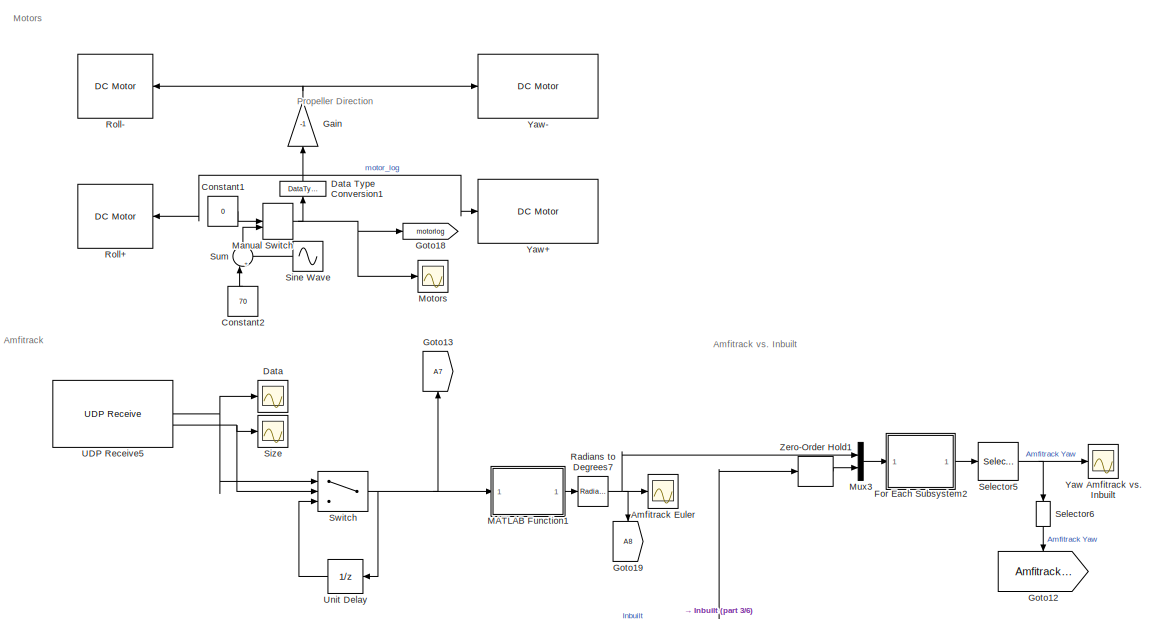
[diagram: root canvas - part 1/6, top right region]
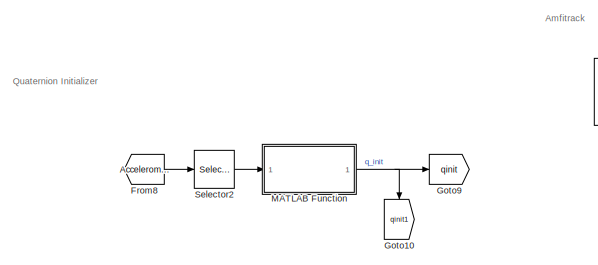
[diagram: root canvas - part 2/6, top center region]
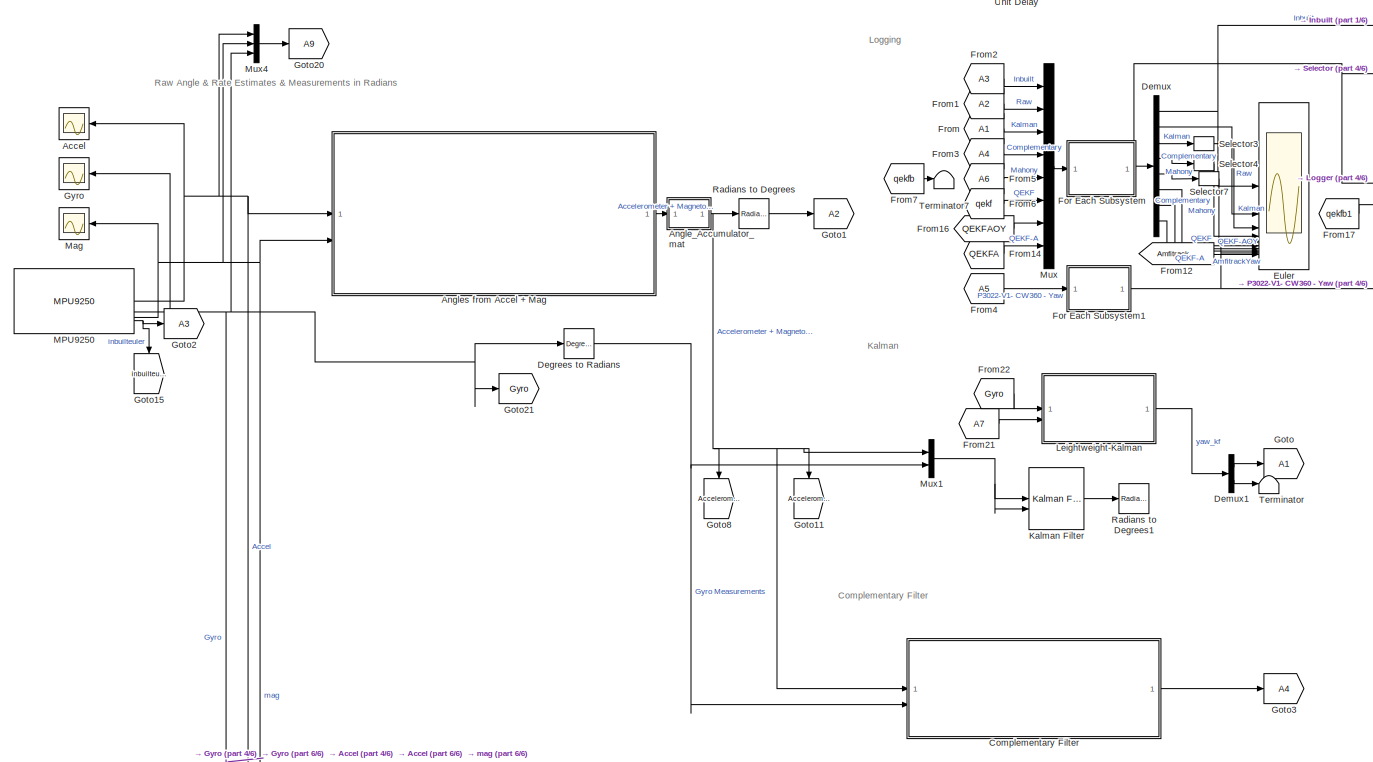
[diagram: root canvas - part 3/6, central region]
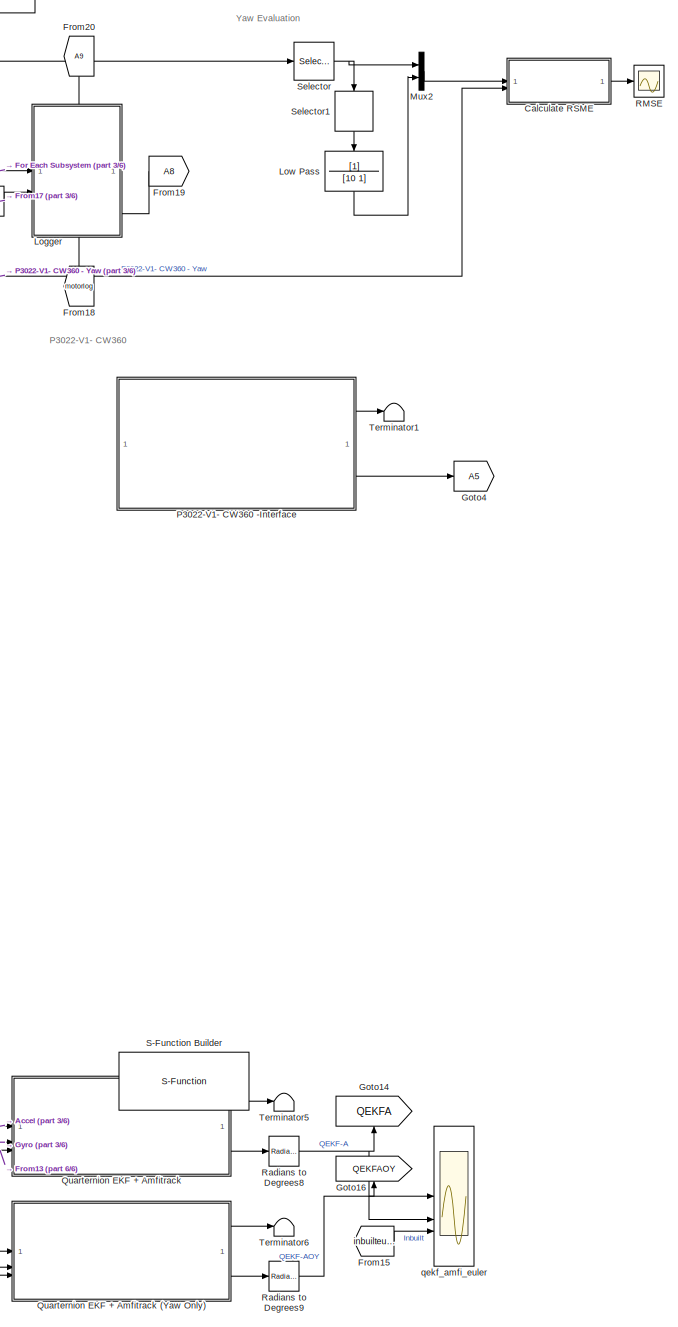
[diagram: root canvas - part 4/6, middle right region]
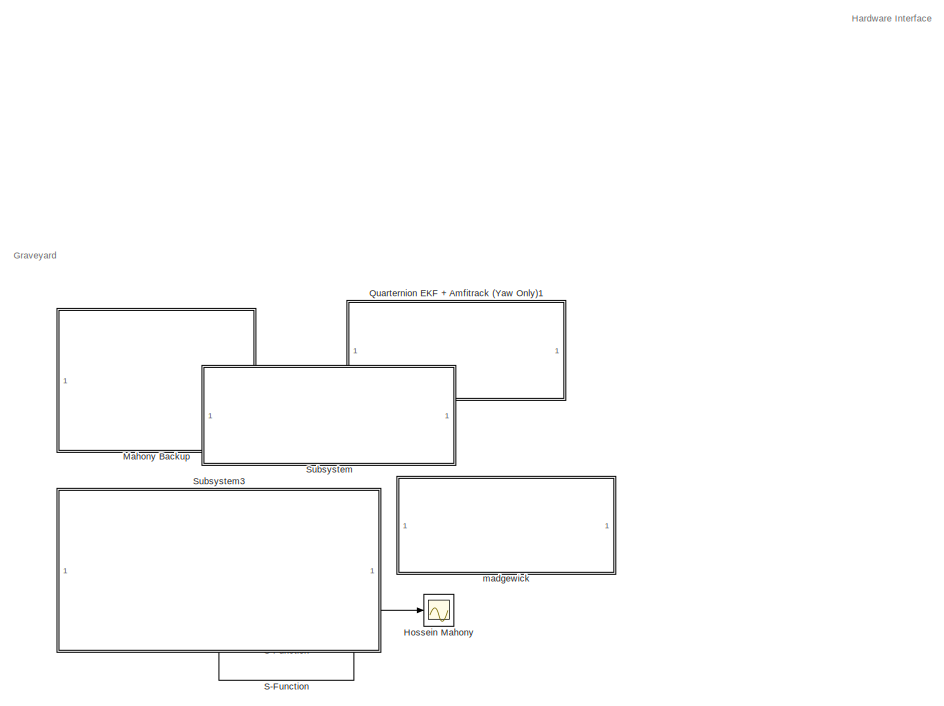
[diagram: root canvas - part 5/6, middle left region]
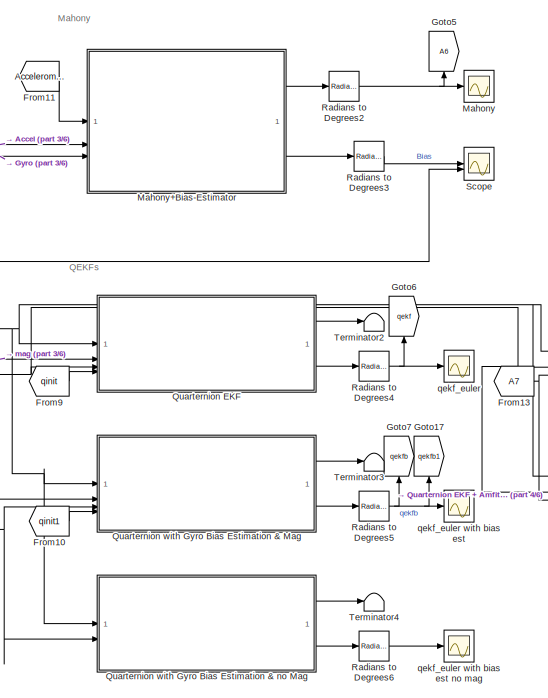
[diagram: root canvas - part 6/6, bottom right region]
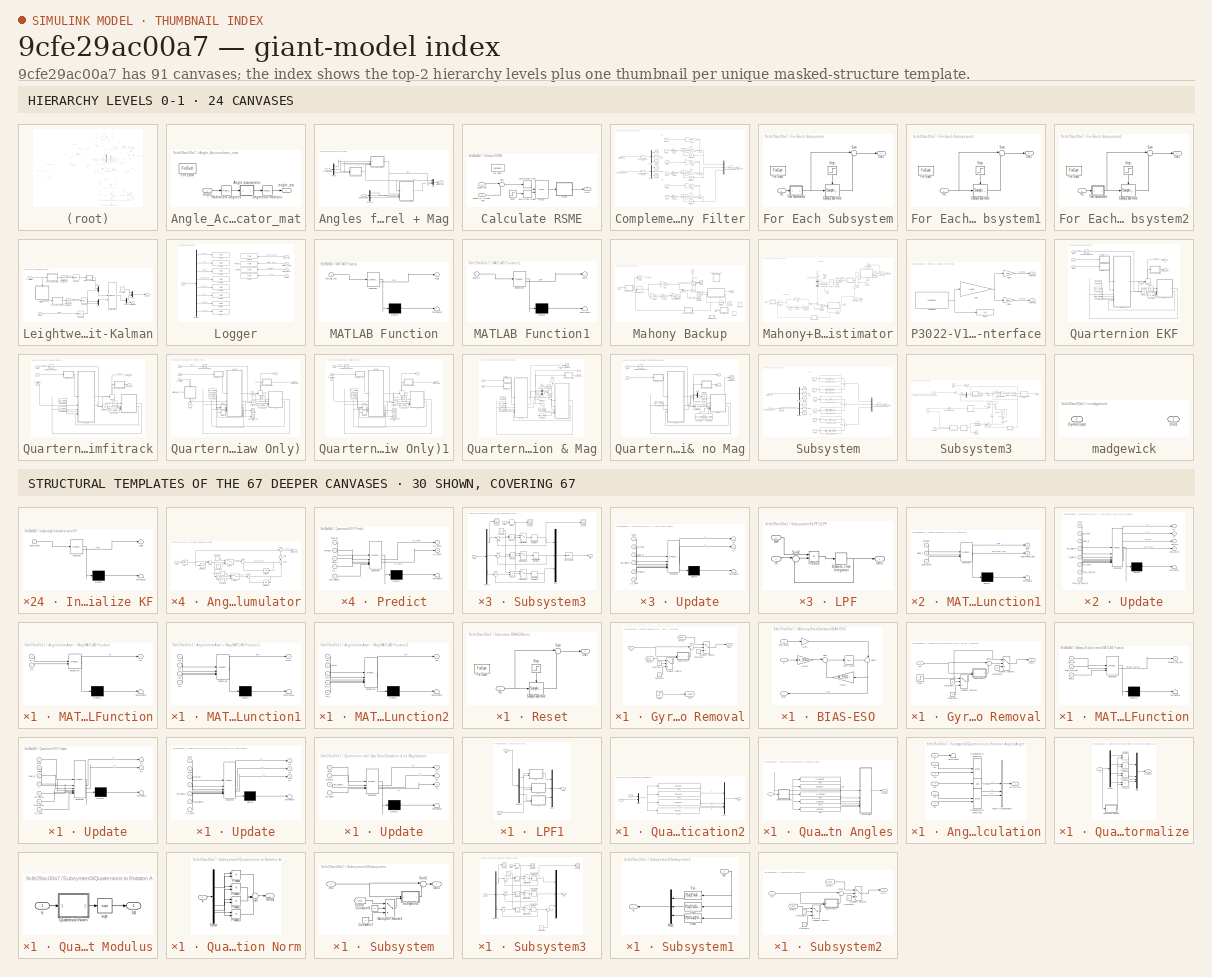
[diagram: thumbnail index - top-2 hierarchy levels (24 canvases) + 30 structural-template representatives of the remaining 67 canvases]
MODEL slx_9cfe29ac00a7
KIND model
CONFIG AbsTol = auto
CONFIG EnableMultiTasking = on
CONFIG FixedStep = delta_t
CONFIG MaxStep = auto
CONFIG MinStep = auto
CONFIG RelTol = 1e-3
CONFIG SampleTimeConstraint = Unconstrained
CONFIG SolverName = FixedStepAuto
CONFIG StartTime = 0.0
CONFIG StopTime = inf
BLOCK [Scope] Accel
  Floating = off
  NameLocation = top
  NumInputPorts = 1
  ScopeSpecificationString = Simulink.scopes.TimeScopeBlockCfg('CurrentConfiguration', extmgr.ConfigurationSet(extmgr.Configuration('Core','General UI',true),extmgr.Configuration('Core','Source UI',true),extmgr.Configuration('Sources','WiredSimulink',true,'DataLoggingVariableName','Accel','DataLogging',true,'DataLoggingSaveFormat','StructureWithTime'),extmgr.Configuration('Visuals','Time Domain',true,'SerializedDisplays',{str...<+1735ch>
BLOCK [Scope] Amfitrack Euler
  Floating = off
  NumInputPorts = 1
  ScopeSpecificationString = Simulink.scopes.TimeScopeBlockCfg('CurrentConfiguration', extmgr.ConfigurationSet(extmgr.Configuration('Core','General UI',true),extmgr.Configuration('Core','Source UI',true),extmgr.Configuration('Sources','WiredSimulink',true,'DataLoggingVariableName','Amfitrack_Euler','DataLogging',true,'DataLoggingSaveFormat','StructureWithTime'),extmgr.Configuration('Visuals','Time Domain',true,'SerializedDisp...<+1807ch>
BLOCK [SubSystem] Angle_Accumulator_mat
  TreatAsAtomicUnit = on
BLOCK [SubSystem] Angle_Accumulator_mat/Angle accumulator
  ShowPortLabels = none
BLOCK [Bias] Angle_Accumulator_mat/Angle accumulator/Bias
  SaturateOnIntegerOverflow = off
BLOCK [Constant] Angle_Accumulator_mat/Angle accumulator/Constant4
BLOCK [Constant] Angle_Accumulator_mat/Angle accumulator/Constant5
  Value = 0
BLOCK [Constant] Angle_Accumulator_mat/Angle accumulator/Constant8
BLOCK [Constant] Angle_Accumulator_mat/Angle accumulator/Constant9
  Value = 0
BLOCK [Gain] Angle_Accumulator_mat/Angle accumulator/Gain
  Gain = 360
  NameLocation = right
BLOCK [Gain] Angle_Accumulator_mat/Angle accumulator/Gain3
  Gain = -1
BLOCK [Sum] Angle_Accumulator_mat/Angle accumulator/Sum
  Inputs = |++
BLOCK [Sum] Angle_Accumulator_mat/Angle accumulator/Sum1
  Inputs = |++
BLOCK [Sum] Angle_Accumulator_mat/Angle accumulator/Sum2
  Inputs = |-+
BLOCK [Sum] Angle_Accumulator_mat/Angle accumulator/Sum5
  Inputs = |++
BLOCK [Sum] Angle_Accumulator_mat/Angle accumulator/Sum6
  Inputs = +-|
  NameLocation = right
BLOCK [Switch] Angle_Accumulator_mat/Angle accumulator/Switch
  Criteria = u2 > Threshold
  InputSameDT = off
  SaturateOnIntegerOverflow = off
  Threshold = 180
BLOCK [Switch] Angle_Accumulator_mat/Angle accumulator/Switch1
  Criteria = u2 > Threshold
  InputSameDT = off
  SaturateOnIntegerOverflow = off
  Threshold = 180
BLOCK [UnitDelay] Angle_Accumulator_mat/Angle accumulator/Unit Delay
  HasFrameUpgradeWarning = on
  SampleTime = -1
BLOCK [UnitDelay] Angle_Accumulator_mat/Angle accumulator/Unit Delay1
  HasFrameUpgradeWarning = on
  SampleTime = -1
BLOCK [UnitDelay] Angle_Accumulator_mat/Angle accumulator/Unit Delay3
  HasFrameUpgradeWarning = on
  SampleTime = -1
BLOCK [Inport] Angle_Accumulator_mat/Angle accumulator/angle
BLOCK [Outport] Angle_Accumulator_mat/Angle accumulator/angle_acc
BLOCK [Reference] Angle_Accumulator_mat/Degrees to Radians  REF=simulink_extras/Transformations/Degrees to
Radians
  SourceBlock = simulink_extras/Transformations/Degrees to\nRadians
  SourceType = DegreesToRadians
BLOCK [ForEach] Angle_Accumulator_mat/For Each
  DisableCoverage = on
BLOCK [Reference] Angle_Accumulator_mat/Radians to Degrees  REF=simulink_extras/Transformations/Radians
to Degrees
  SourceBlock = simulink_extras/Transformations/Radians\nto Degrees
  SourceType = RadiansToDegrees
BLOCK [Inport] Angle_Accumulator_mat/angle
  Partition = on
  PartitionDimension = 1
  PartitionOffset = 0
  PartitionWidth = 1
BLOCK [Outport] Angle_Accumulator_mat/angle_acc
  ConcatenationDimension = 1
BLOCK [SubSystem] Angles from Accel + Mag
BLOCK [Inport] Angles from Accel + Mag/Accelerometer
BLOCK [Demux] Angles from Accel + Mag/Demux
  Outputs = 3
BLOCK [Demux] Angles from Accel + Mag/Demux2
  Outputs = 3
BLOCK [SubSystem] Angles from Accel + Mag/MATLAB Function
  ErrorFcn = Stateflow.Translate.translate
  PermitHierarchicalResolution = ExplicitOnly
  SFBlockType = MATLAB Function
  TreatAsAtomicUnit = on
BLOCK [Demux] Angles from Accel + Mag/MATLAB Function/ Demux 
  Outputs = 1
BLOCK [S-Function] Angles from Accel + Mag/MATLAB Function/ SFunction 
  EnableBusSupport = on
  FunctionName = sf_sfun
  PortCounts = [2 2]
  SFcnIsStateOwnerBlock = off
  SFunctionDeploymentMode = off
  Tag = Stateflow S-Function 2
BLOCK [Terminator] Angles from Accel + Mag/MATLAB Function/ Terminator 
BLOCK [Inport] Angles from Accel + Mag/MATLAB Function/a_y
BLOCK [Inport] Angles from Accel + Mag/MATLAB Function/a_z
  Port = 2
BLOCK [Outport] Angles from Accel + Mag/MATLAB Function/roll
BLOCK [SubSystem] Angles from Accel + Mag/MATLAB Function1
  ErrorFcn = Stateflow.Translate.translate
  PermitHierarchicalResolution = ExplicitOnly
  SFBlockType = MATLAB Function
  TreatAsAtomicUnit = on
BLOCK [Demux] Angles from Accel + Mag/MATLAB Function1/ Demux 
  Outputs = 1
BLOCK [S-Function] Angles from Accel + Mag/MATLAB Function1/ SFunction 
  EnableBusSupport = on
  FunctionName = sf_sfun
  PortCounts = [4 2]
  SFcnIsStateOwnerBlock = off
  SFunctionDeploymentMode = off
  Tag = Stateflow S-Function 1
BLOCK [Terminator] Angles from Accel + Mag/MATLAB Function1/ Terminator 
BLOCK [Inport] Angles from Accel + Mag/MATLAB Function1/a_x
BLOCK [Inport] Angles from Accel + Mag/MATLAB Function1/a_y
  Port = 2
BLOCK [Inport] Angles from Accel + Mag/MATLAB Function1/a_z
  Port = 3
BLOCK [Outport] Angles from Accel + Mag/MATLAB Function1/pitch
BLOCK [Inport] Angles from Accel + Mag/MATLAB Function1/roll
  Port = 4
BLOCK [SubSystem] Angles from Accel + Mag/MATLAB Function2
  ErrorFcn = Stateflow.Translate.translate
  PermitHierarchicalResolution = ExplicitOnly
  SFBlockType = MATLAB Function
  TreatAsAtomicUnit = on
BLOCK [Demux] Angles from Accel + Mag/MATLAB Function2/ Demux 
  Outputs = 1
BLOCK [S-Function] Angles from Accel + Mag/MATLAB Function2/ SFunction 
  EnableBusSupport = on
  FunctionName = sf_sfun
  PortCounts = [5 2]
  SFcnIsStateOwnerBlock = off
  SFunctionDeploymentMode = off
  Tag = Stateflow S-Function 3
BLOCK [Terminator] Angles from Accel + Mag/MATLAB Function2/ Terminator 
BLOCK [Inport] Angles from Accel + Mag/MATLAB Function2/m_x
  Port = 3
BLOCK [Inport] Angles from Accel + Mag/MATLAB Function2/m_y
  Port = 4
BLOCK [Inport] Angles from Accel + Mag/MATLAB Function2/m_z
  Port = 5
BLOCK [Inport] Angles from Accel + Mag/MATLAB Function2/pitch
  Port = 2
BLOCK [Inport] Angles from Accel + Mag/MATLAB Function2/roll
BLOCK [Outport] Angles from Accel + Mag/MATLAB Function2/yaw
BLOCK [Inport] Angles from Accel + Mag/Magnetometer
  Port = 2
BLOCK [Mux] Angles from Accel + Mag/Mux
  DisplayOption = bar
  Inputs = 3
BLOCK [Outport] Angles from Accel + Mag/roll,pitch,yaw
BLOCK [SubSystem] Calculate RSME
  Commented = on
  TreatAsAtomicUnit = on
BLOCK [ForEach] Calculate RSME/For Each
  DisableCoverage = on
BLOCK [Inport] Calculate RSME/Fused Yaw
  Partition = on
  PartitionDimension = 1
  PartitionOffset = 0
  PartitionWidth = 1
BLOCK [Outport] Calculate RSME/Out1
  ConcatenationDimension = 1
BLOCK [Inport] Calculate RSME/P3022-V1- CW360 - Yaw
  Port = 2
BLOCK [Reference] Calculate RSME/RMS1  REF=dspstat3/RMS
  SourceBlock = dspstat3/RMS
  SourceType = RMS
  UserDataPersistent = on
BLOCK [SubSystem] Calculate RSME/Reset
  TreatAsAtomicUnit = on
BLOCK [ForEach] Calculate RSME/Reset/For Each
  DisableCoverage = on
BLOCK [Inport] Calculate RSME/Reset/In1
  Partition = on
  PartitionDimension = 1
  PartitionOffset = 0
  PartitionWidth = 1
BLOCK [Outport] Calculate RSME/Reset/Out1
  ConcatenationDimension = 1
BLOCK [Reference] Calculate RSME/Reset/Sample and Hold  REF=dspsigops/Sample
and Hold
  SourceBlock = dspsigops/Sample\nand Hold
  SourceType = Sample and Hold
BLOCK [Step] Calculate RSME/Reset/Step
  NameLocation = left
  SampleTime = 0
  Time = step_time
BLOCK [Sum] Calculate RSME/Reset/Sum
  Inputs = |+-
BLOCK [Step] Calculate RSME/Step
  SampleTime = 0
  Time = step_time
BLOCK [Sum] Calculate RSME/Sum
  Inputs = |+-
BLOCK [ZeroOrderHold] Calculate RSME/Zero-Order Hold
  SampleTime = delta_t
BLOCK [ZeroOrderHold] Calculate RSME/Zero-Order Hold1
  SampleTime = delta_t
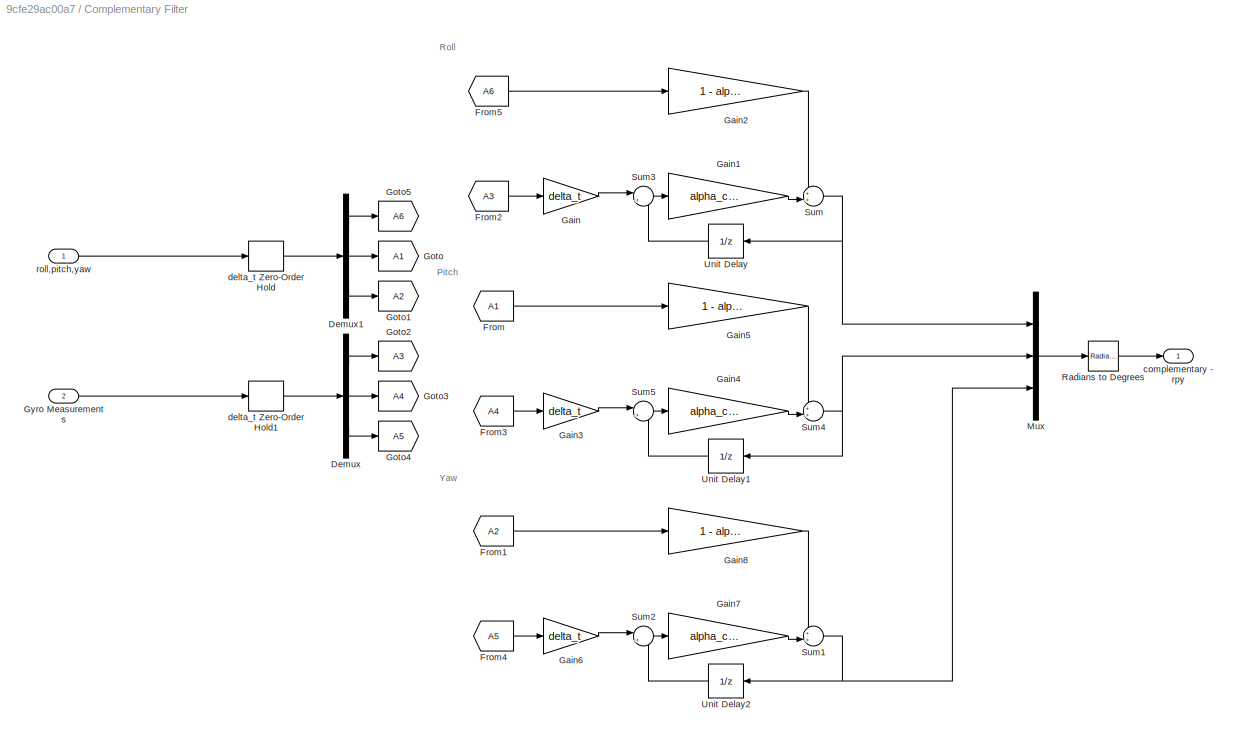
BLOCK [SubSystem] Complementary Filter
BLOCK [Demux] Complementary Filter/Demux
  Outputs = 3
BLOCK [Demux] Complementary Filter/Demux1
  Outputs = 3
BLOCK [From] Complementary Filter/From
  GotoTag = A1
BLOCK [From] Complementary Filter/From1
  GotoTag = A2
BLOCK [From] Complementary Filter/From2
  GotoTag = A3
BLOCK [From] Complementary Filter/From3
  GotoTag = A4
BLOCK [From] Complementary Filter/From4
  GotoTag = A5
BLOCK [From] Complementary Filter/From5
  GotoTag = A6
BLOCK [Gain] Complementary Filter/Gain
  Gain = delta_t
BLOCK [Gain] Complementary Filter/Gain1
  Gain = alpha_comp_roll
BLOCK [Gain] Complementary Filter/Gain2
  Gain = 1 - alpha_comp_roll
BLOCK [Gain] Complementary Filter/Gain3
  Gain = delta_t
BLOCK [Gain] Complementary Filter/Gain4
  Gain = alpha_comp_pitch
BLOCK [Gain] Complementary Filter/Gain5
  Gain = 1 - alpha_comp_pitch
BLOCK [Gain] Complementary Filter/Gain6
  Gain = delta_t
BLOCK [Gain] Complementary Filter/Gain7
  Gain = alpha_comp_yaw
BLOCK [Gain] Complementary Filter/Gain8
  Gain = 1 - alpha_comp_yaw
BLOCK [Goto] Complementary Filter/Goto
  GotoTag = A1
BLOCK [Goto] Complementary Filter/Goto1
  GotoTag = A2
BLOCK [Goto] Complementary Filter/Goto2
  GotoTag = A3
BLOCK [Goto] Complementary Filter/Goto3
  GotoTag = A4
BLOCK [Goto] Complementary Filter/Goto4
  GotoTag = A5
BLOCK [Goto] Complementary Filter/Goto5
  GotoTag = A6
BLOCK [Inport] Complementary Filter/Gyro Measurements
  Port = 2
BLOCK [Mux] Complementary Filter/Mux
  DisplayOption = bar
  Inputs = 3
BLOCK [Reference] Complementary Filter/Radians to Degrees  REF=simulink_extras/Transformations/Radians
to Degrees
  SourceBlock = simulink_extras/Transformations/Radians\nto Degrees
  SourceType = RadiansToDegrees
BLOCK [Sum] Complementary Filter/Sum
  Inputs = ++|
BLOCK [Sum] Complementary Filter/Sum1
  Inputs = ++|
BLOCK [Sum] Complementary Filter/Sum2
  Inputs = |++
BLOCK [Sum] Complementary Filter/Sum3
  Inputs = |++
BLOCK [Sum] Complementary Filter/Sum4
  Inputs = ++|
BLOCK [Sum] Complementary Filter/Sum5
  Inputs = |++
BLOCK [UnitDelay] Complementary Filter/Unit Delay
  HasFrameUpgradeWarning = on
  NameLocation = top
  SampleTime = delta_t
BLOCK [UnitDelay] Complementary Filter/Unit Delay1
  HasFrameUpgradeWarning = on
  NameLocation = top
  SampleTime = delta_t
BLOCK [UnitDelay] Complementary Filter/Unit Delay2
  HasFrameUpgradeWarning = on
  NameLocation = top
  SampleTime = delta_t
BLOCK [Outport] Complementary Filter/complementary - rpy
BLOCK [ZeroOrderHold] Complementary Filter/delta_t Zero-Order Hold
  SampleTime = delta_t
BLOCK [ZeroOrderHold] Complementary Filter/delta_t Zero-Order Hold1
  SampleTime = delta_t
BLOCK [Inport] Complementary Filter/roll,pitch,yaw
BLOCK [Constant] Constant1
  Value = 0
BLOCK [Constant] Constant2
  NameLocation = right
  Value = 70
BLOCK [Scope] Data
  Floating = off
  NumInputPorts = 1
  ScopeSpecificationString = Simulink.scopes.TimeScopeBlockCfg('CurrentConfiguration', extmgr.ConfigurationSet(extmgr.Configuration('Core','General UI',true),extmgr.Configuration('Core','Source UI',true),extmgr.Configuration('Sources','WiredSimulink',true,'DataLoggingVariableName','ScopeData2'),extmgr.Configuration('Visuals','Time Domain',true,'SerializedDisplays',{struct('MinYLimReal','-0.34173','MaxYLimReal','1.13013','YLab...<+7667ch>
BLOCK [DataTypeConversion] Data Type Conversion1
  NameLocation = right
  OutDataTypeStr = int8
  RndMeth = Floor
  SaturateOnIntegerOverflow = off
BLOCK [Reference] Degrees to Radians  REF=simulink_extras/Transformations/Degrees to
Radians
  SourceBlock = simulink_extras/Transformations/Degrees to\nRadians
  SourceType = DegreesToRadians
BLOCK [Demux] Demux
  Outputs = 8
BLOCK [Demux] Demux1
  Outputs = 2
BLOCK [Scope] Euler
  Floating = off
  NumInputPorts = 10
  ScopeSpecificationString = Simulink.scopes.TimeScopeBlockCfg('CurrentConfiguration', extmgr.ConfigurationSet(extmgr.Configuration('Core','General UI',true),extmgr.Configuration('Core','Source UI',true),extmgr.Configuration('Sources','WiredSimulink',true,'DataLogging',true,'DataLoggingVariableName','Euler','DataLoggingSaveFormat','StructureWithTime'),extmgr.Configuration('Visuals','Time Domain',true,'SerializedDisplays',{str...<+2467ch>
BLOCK [SubSystem] For Each Subsystem
  TreatAsAtomicUnit = on
BLOCK [ForEach] For Each Subsystem/For Each
  DisableCoverage = on
BLOCK [Inport] For Each Subsystem/In1
  Partition = on
  PartitionDimension = 1
  PartitionOffset = 0
  PartitionWidth = 1
BLOCK [Outport] For Each Subsystem/Out1
  ConcatenationDimension = 1
  SampleTime = delta_t
BLOCK [Reference] For Each Subsystem/Sample and Hold  REF=dspsigops/Sample
and Hold
  LibrarySourceBlock = dsphdlsupportsigops/Sample\nand Hold
  SourceBlock = dspsigops/Sample\nand Hold
  SourceType = Sample and Hold
BLOCK [Step] For Each Subsystem/Step
  NameLocation = left
  SampleTime = 0
  Time = step_time
BLOCK [Sum] For Each Subsystem/Sum
  Inputs = |+-
BLOCK [SubSystem] For Each Subsystem/Yaw accumulator
  ShowPortLabels = none
BLOCK [Bias] For Each Subsystem/Yaw accumulator/Bias
  SaturateOnIntegerOverflow = off
BLOCK [Constant] For Each Subsystem/Yaw accumulator/Constant4
BLOCK [Constant] For Each Subsystem/Yaw accumulator/Constant5
  Value = 0
BLOCK [Constant] For Each Subsystem/Yaw accumulator/Constant8
BLOCK [Constant] For Each Subsystem/Yaw accumulator/Constant9
  Value = 0
BLOCK [Gain] For Each Subsystem/Yaw accumulator/Gain
  Gain = 360
  NameLocation = right
BLOCK [Gain] For Each Subsystem/Yaw accumulator/Gain3
  Gain = -1
BLOCK [Sum] For Each Subsystem/Yaw accumulator/Sum
  Inputs = |++
BLOCK [Sum] For Each Subsystem/Yaw accumulator/Sum1
  Inputs = |++
BLOCK [Sum] For Each Subsystem/Yaw accumulator/Sum2
  Inputs = |-+
BLOCK [Sum] For Each Subsystem/Yaw accumulator/Sum5
  Inputs = |++
BLOCK [Sum] For Each Subsystem/Yaw accumulator/Sum6
  Inputs = +-|
  NameLocation = right
BLOCK [Switch] For Each Subsystem/Yaw accumulator/Switch
  Criteria = u2 > Threshold
  InputSameDT = off
  SaturateOnIntegerOverflow = off
  Threshold = 180
BLOCK [Switch] For Each Subsystem/Yaw accumulator/Switch1
  Criteria = u2 > Threshold
  InputSameDT = off
  SaturateOnIntegerOverflow = off
  Threshold = 180
BLOCK [UnitDelay] For Each Subsystem/Yaw accumulator/Unit Delay
  HasFrameUpgradeWarning = on
  SampleTime = -1
BLOCK [UnitDelay] For Each Subsystem/Yaw accumulator/Unit Delay1
  HasFrameUpgradeWarning = on
  SampleTime = -1
BLOCK [UnitDelay] For Each Subsystem/Yaw accumulator/Unit Delay3
  HasFrameUpgradeWarning = on
  SampleTime = -1
BLOCK [Inport] For Each Subsystem/Yaw accumulator/yaw
BLOCK [Outport] For Each Subsystem/Yaw accumulator/yaw_acc
BLOCK [SubSystem] For Each Subsystem1
  TreatAsAtomicUnit = on
BLOCK [ForEach] For Each Subsystem1/For Each
  DisableCoverage = on
BLOCK [Inport] For Each Subsystem1/In1
  Partition = on
  PartitionDimension = 1
  PartitionOffset = 0
  PartitionWidth = 1
  SampleTime = delta_t
BLOCK [Outport] For Each Subsystem1/Out1
  ConcatenationDimension = 1
BLOCK [Reference] For Each Subsystem1/Sample and Hold  REF=dspsigops/Sample
and Hold
  SourceBlock = dspsigops/Sample\nand Hold
  SourceType = Sample and Hold
BLOCK [Step] For Each Subsystem1/Step
  NameLocation = left
  SampleTime = delta_t
  Time = step_time
BLOCK [Sum] For Each Subsystem1/Sum
  Inputs = |+-
BLOCK [SubSystem] For Each Subsystem2
  TreatAsAtomicUnit = on
BLOCK [ForEach] For Each Subsystem2/For Each
  DisableCoverage = on
BLOCK [Inport] For Each Subsystem2/In1
  Partition = on
  PartitionDimension = 1
  PartitionOffset = 0
  PartitionWidth = 1
BLOCK [Outport] For Each Subsystem2/Out1
  ConcatenationDimension = 1
BLOCK [Reference] For Each Subsystem2/Sample and Hold  REF=dspsigops/Sample
and Hold
  LibrarySourceBlock = dsphdlsupportsigops/Sample\nand Hold
  SourceBlock = dspsigops/Sample\nand Hold
  SourceType = Sample and Hold
BLOCK [Step] For Each Subsystem2/Step
  NameLocation = left
  SampleTime = 0.01
  Time = step_time
BLOCK [Sum] For Each Subsystem2/Sum
  Inputs = |+-
BLOCK [SubSystem] For Each Subsystem2/Yaw accumulator
  ShowPortLabels = none
BLOCK [Bias] For Each Subsystem2/Yaw accumulator/Bias
  SaturateOnIntegerOverflow = off
BLOCK [Constant] For Each Subsystem2/Yaw accumulator/Constant4
BLOCK [Constant] For Each Subsystem2/Yaw accumulator/Constant5
  Value = 0
BLOCK [Constant] For Each Subsystem2/Yaw accumulator/Constant8
BLOCK [Constant] For Each Subsystem2/Yaw accumulator/Constant9
  Value = 0
BLOCK [Gain] For Each Subsystem2/Yaw accumulator/Gain
  Gain = 360
  NameLocation = right
BLOCK [Gain] For Each Subsystem2/Yaw accumulator/Gain3
  Gain = -1
BLOCK [Sum] For Each Subsystem2/Yaw accumulator/Sum
  Inputs = |++
BLOCK [Sum] For Each Subsystem2/Yaw accumulator/Sum1
  Inputs = |++
BLOCK [Sum] For Each Subsystem2/Yaw accumulator/Sum2
  Inputs = |-+
BLOCK [Sum] For Each Subsystem2/Yaw accumulator/Sum5
  Inputs = |++
BLOCK [Sum] For Each Subsystem2/Yaw accumulator/Sum6
  Inputs = +-|
  NameLocation = right
BLOCK [Switch] For Each Subsystem2/Yaw accumulator/Switch
  Criteria = u2 > Threshold
  InputSameDT = off
  SaturateOnIntegerOverflow = off
  Threshold = 180
BLOCK [Switch] For Each Subsystem2/Yaw accumulator/Switch1
  Criteria = u2 > Threshold
  InputSameDT = off
  SaturateOnIntegerOverflow = off
  Threshold = 180
BLOCK [UnitDelay] For Each Subsystem2/Yaw accumulator/Unit Delay
  HasFrameUpgradeWarning = on
  SampleTime = -1
BLOCK [UnitDelay] For Each Subsystem2/Yaw accumulator/Unit Delay1
  HasFrameUpgradeWarning = on
  SampleTime = -1
BLOCK [UnitDelay] For Each Subsystem2/Yaw accumulator/Unit Delay3
  HasFrameUpgradeWarning = on
  SampleTime = -1
BLOCK [Inport] For Each Subsystem2/Yaw accumulator/yaw
BLOCK [Outport] For Each Subsystem2/Yaw accumulator/yaw_acc
BLOCK [From] From
  GotoTag = A1
BLOCK [From] From1
  GotoTag = A2
BLOCK [From] From10
  GotoTag = qinit1
BLOCK [From] From11
  GotoTag = AccelerometerMagnetometerAngleEstimates1
BLOCK [From] From12
  GotoTag = AmfitrackYaw
BLOCK [From] From13
  GotoTag = A7
BLOCK [From] From14
  GotoTag = QEKFA
BLOCK [From] From15
  GotoTag = inbuilteuler
BLOCK [From] From16
  GotoTag = QEKFAOY
BLOCK [From] From17
  GotoTag = qekfb1
BLOCK [From] From18
  GotoTag = motorlog
  NameLocation = right
BLOCK [From] From19
  GotoTag = A8
BLOCK [From] From2
  GotoTag = A3
BLOCK [From] From20
  GotoTag = A9
  NameLocation = left
BLOCK [From] From21
  GotoTag = A7
BLOCK [From] From22
  GotoTag = Gyro
BLOCK [From] From3
  GotoTag = A4
BLOCK [From] From4
  GotoTag = A5
BLOCK [From] From5
  GotoTag = A6
BLOCK [From] From6
  GotoTag = qekf
BLOCK [From] From7
  GotoTag = qekfb
BLOCK [From] From8
  GotoTag = AccelerometerMagnetometerAngleEstimates
BLOCK [From] From9
  GotoTag = qinit
BLOCK [Gain] Gain
  Gain = -1
  NameLocation = right
  OutDataTypeStr = int8
BLOCK [Goto] Goto
  GotoTag = A1
BLOCK [Goto] Goto1
  GotoTag = A2
BLOCK [Goto] Goto10
  GotoTag = qinit1
  NameLocation = left
BLOCK [Goto] Goto11
  GotoTag = AccelerometerMagnetometerAngleEstimates1
  NameLocation = left
BLOCK [Goto] Goto12
  GotoTag = AmfitrackYaw
  NameLocation = left
BLOCK [Goto] Goto13
  GotoTag = A7
  NameLocation = right
BLOCK [Goto] Goto14
  GotoTag = QEKFA
  NameLocation = right
BLOCK [Goto] Goto15
  GotoTag = inbuilteuler
  NameLocation = left
BLOCK [Goto] Goto16
  GotoTag = QEKFAOY
  NameLocation = right
BLOCK [Goto] Goto17
  GotoTag = qekfb1
  NameLocation = right
BLOCK [Goto] Goto18
  GotoTag = motorlog
BLOCK [Goto] Goto19
  GotoTag = A8
  NameLocation = left
BLOCK [Goto] Goto2
  GotoTag = A3
BLOCK [Goto] Goto20
  GotoTag = A9
BLOCK [Goto] Goto21
  GotoTag = Gyro
BLOCK [Goto] Goto3
  GotoTag = A4
BLOCK [Goto] Goto4
  GotoTag = A5
BLOCK [Goto] Goto5
  GotoTag = A6
  NameLocation = right
BLOCK [Goto] Goto6
  GotoTag = qekf
  NameLocation = right
BLOCK [Goto] Goto7
  GotoTag = qekfb
  NameLocation = right
BLOCK [Goto] Goto8
  GotoTag = AccelerometerMagnetometerAngleEstimates
  NameLocation = left
BLOCK [Goto] Goto9
  GotoTag = qinit
BLOCK [Scope] Gyro
  Floating = off
  NameLocation = top
  NumInputPorts = 1
  ScopeSpecificationString = Simulink.scopes.TimeScopeBlockCfg('CurrentConfiguration', extmgr.ConfigurationSet(extmgr.Configuration('Core','General UI',true),extmgr.Configuration('Core','Source UI',true),extmgr.Configuration('Sources','WiredSimulink',true,'DataLoggingVariableName','Gyro','DataLogging',true,'DataLoggingSaveFormat','StructureWithTime'),extmgr.Configuration('Visuals','Time Domain',true,'SerializedDisplays',{stru...<+1768ch>
BLOCK [Scope] Hossein Mahony
  Commented = on
  Floating = off
  NumInputPorts = 1
  ScopeSpecificationString = Simulink.scopes.TimeScopeBlockCfg('CurrentConfiguration', extmgr.ConfigurationSet(extmgr.Configuration('Core','General UI',true),extmgr.Configuration('Core','Source UI',true),extmgr.Configuration('Sources','WiredSimulink',true,'DataLoggingVariableName','ScopeData3'),extmgr.Configuration('Visuals','Time Domain',true,'SerializedDisplays',{struct('MinYLimReal','-1.00000','MaxYLimReal','1.00000','YLab...<+1493ch>
BLOCK [Reference] Kalman Filter  REF=ctrlSharedLib/Kalman Filter
  Commented = on
  LibrarySourceBlock = cstblocks/State Estimation/Kalman Filter
  SourceBlock = ctrlSharedLib/Kalman Filter
  SourceType = ctrlKalmanFilter
BLOCK [SubSystem] Leightweight-Kalman
BLOCK [Constant] Leightweight-Kalman/Constant
  Value = 0
BLOCK [Demux] Leightweight-Kalman/Demux
  Outputs = 2
BLOCK [Inport] Leightweight-Kalman/Gyro
BLOCK [SubSystem] Leightweight-Kalman/Initialize KF
  ErrorFcn = Stateflow.Translate.translate
  NameLocation = left
  PermitHierarchicalResolution = ExplicitOnly
  SFBlockType = MATLAB Function
  TreatAsAtomicUnit = on
BLOCK [Demux] Leightweight-Kalman/Initialize KF/ Demux 
  Outputs = 1
BLOCK [S-Function] Leightweight-Kalman/Initialize KF/ SFunction 
  EnableBusSupport = on
  FunctionName = sf_sfun
  PortCounts = [1 2]
  SFcnIsStateOwnerBlock = off
  SFunctionDeploymentMode = off
  Tag = Stateflow S-Function 42
BLOCK [Terminator] Leightweight-Kalman/Initialize KF/ Terminator 
BLOCK [Outport] Leightweight-Kalman/Initialize KF/q_init
BLOCK [Inport] Leightweight-Kalman/Initialize KF/quat_meas
BLOCK [Reference] Leightweight-Kalman/Kalman Filter  REF=ctrlSharedLib/Kalman Filter
  SourceBlock = ctrlSharedLib/Kalman Filter
  SourceType = ctrlKalmanFilter
BLOCK [SubSystem] Leightweight-Kalman/MATLAB Function1
  ErrorFcn = Stateflow.Translate.translate
  PermitHierarchicalResolution = ExplicitOnly
  SFBlockType = MATLAB Function
  TreatAsAtomicUnit = on
BLOCK [Demux] Leightweight-Kalman/MATLAB Function1/ Demux 
  Outputs = 1
BLOCK [S-Function] Leightweight-Kalman/MATLAB Function1/ SFunction 
  EnableBusSupport = on
  FunctionName = sf_sfun
  PortCounts = [1 2]
  SFcnIsStateOwnerBlock = off
  SFunctionDeploymentMode = off
  Tag = Stateflow S-Function 43
BLOCK [Terminator] Leightweight-Kalman/MATLAB Function1/ Terminator 
BLOCK [Outport] Leightweight-Kalman/MATLAB Function1/euler
BLOCK [Inport] Leightweight-Kalman/MATLAB Function1/quat_in
BLOCK [SubSystem] Leightweight-Kalman/MATLAB Function2
  ErrorFcn = Stateflow.Translate.translate
  PermitHierarchicalResolution = ExplicitOnly
  SFBlockType = MATLAB Function
  TreatAsAtomicUnit = on
BLOCK [Demux] Leightweight-Kalman/MATLAB Function2/ Demux 
  Outputs = 1
BLOCK [S-Function] Leightweight-Kalman/MATLAB Function2/ SFunction 
  EnableBusSupport = on
  FunctionName = sf_sfun
  PortCounts = [1 2]
  SFcnIsStateOwnerBlock = off
  SFunctionDeploymentMode = off
  Tag = Stateflow S-Function 44
BLOCK [Terminator] Leightweight-Kalman/MATLAB Function2/ Terminator 
BLOCK [Outport] Leightweight-Kalman/MATLAB Function2/euler
BLOCK [Inport] Leightweight-Kalman/MATLAB Function2/quat_in
BLOCK [Mux] Leightweight-Kalman/Mux
  DisplayOption = bar
  Inputs = 2
BLOCK [Mux] Leightweight-Kalman/Mux1
  DisplayOption = bar
  Inputs = 2
BLOCK [Mux] Leightweight-Kalman/Mux2
  DisplayOption = bar
  Inputs = 3
BLOCK [Reference] Leightweight-Kalman/Radians to Degrees1  REF=simulink_extras/Transformations/Radians
to Degrees
  SourceBlock = simulink_extras/Transformations/Radians\nto Degrees
  SourceType = RadiansToDegrees
BLOCK [Reference] Leightweight-Kalman/Radians to Degrees7  REF=simulink_extras/Transformations/Radians
to Degrees
  SourceBlock = simulink_extras/Transformations/Radians\nto Degrees
  SourceType = RadiansToDegrees
BLOCK [Selector] Leightweight-Kalman/Selector
  IndexOptions = Index vector (dialog)
  Indices = [3]
  InputPortWidth = 3
  OutputSizes = 1
BLOCK [Selector] Leightweight-Kalman/Selector1
  IndexOptions = Index vector (dialog)
  Indices = [3]
  InputPortWidth = 3
  OutputSizes = 1
BLOCK [Selector] Leightweight-Kalman/Selector2
  IndexOptions = Index vector (dialog)
  Indices = [3]
  InputPortWidth = 3
  OutputSizes = 1
BLOCK [Terminator] Leightweight-Kalman/Terminator
BLOCK [SubSystem] Leightweight-Kalman/Yaw accumulator1
  ShowPortLabels = none
BLOCK [Bias] Leightweight-Kalman/Yaw accumulator1/Bias
  SaturateOnIntegerOverflow = off
BLOCK [Constant] Leightweight-Kalman/Yaw accumulator1/Constant4
BLOCK [Constant] Leightweight-Kalman/Yaw accumulator1/Constant5
  Value = 0
BLOCK [Constant] Leightweight-Kalman/Yaw accumulator1/Constant8
BLOCK [Constant] Leightweight-Kalman/Yaw accumulator1/Constant9
  Value = 0
BLOCK [Gain] Leightweight-Kalman/Yaw accumulator1/Gain
  Gain = 360
  NameLocation = right
BLOCK [Gain] Leightweight-Kalman/Yaw accumulator1/Gain3
  Gain = -1
BLOCK [Sum] Leightweight-Kalman/Yaw accumulator1/Sum
  Inputs = |++
BLOCK [Sum] Leightweight-Kalman/Yaw accumulator1/Sum1
  Inputs = |++
BLOCK [Sum] Leightweight-Kalman/Yaw accumulator1/Sum2
  Inputs = |-+
BLOCK [Sum] Leightweight-Kalman/Yaw accumulator1/Sum5
  Inputs = |++
BLOCK [Sum] Leightweight-Kalman/Yaw accumulator1/Sum6
  Inputs = +-|
  NameLocation = right
BLOCK [Switch] Leightweight-Kalman/Yaw accumulator1/Switch
  Criteria = u2 > Threshold
  InputSameDT = off
  SaturateOnIntegerOverflow = off
  Threshold = 180
BLOCK [Switch] Leightweight-Kalman/Yaw accumulator1/Switch1
  Criteria = u2 > Threshold
  InputSameDT = off
  SaturateOnIntegerOverflow = off
  Threshold = 180
BLOCK [UnitDelay] Leightweight-Kalman/Yaw accumulator1/Unit Delay
  HasFrameUpgradeWarning = on
  SampleTime = -1
BLOCK [UnitDelay] Leightweight-Kalman/Yaw accumulator1/Unit Delay1
  HasFrameUpgradeWarning = on
  SampleTime = -1
BLOCK [UnitDelay] Leightweight-Kalman/Yaw accumulator1/Unit Delay3
  HasFrameUpgradeWarning = on
  SampleTime = -1
BLOCK [Inport] Leightweight-Kalman/Yaw accumulator1/yaw
BLOCK [Outport] Leightweight-Kalman/Yaw accumulator1/yaw_acc
BLOCK [Inport] Leightweight-Kalman/q_amfitrack
  Port = 2
BLOCK [Outport] Leightweight-Kalman/yaw_kf
BLOCK [SubSystem] Logger
  PortSchema = {"entries":[{"content":{"sides":[{"content":{"connectorIds":["In1","In2"]},"type":"ConnectorPlacement.EquallySpacedRectSide","uuid":"65dae65f-b2e3-411c-80c9-991e84581ea0"},{"content":{"connectorIds":["In5"],"side":"RIGHT"},"type":"ConnectorPlacement.EquallySpacedRectSide","uuid":"096d2477-2900-49bd-8ed4-d95fcaab5e6a"},{"content":{"connectorIds":["In3"],"side":"TOP"},"type":"ConnectorPlacement.Equa...<+399ch>
BLOCK [Inport] Logger/Amfitrack_Euler
  NameLocation = top
  Port = 5
BLOCK [Demux] Logger/Demux
  Outputs = 8
BLOCK [Inport] Logger/Euler
BLOCK [Inport] Logger/IMU_AMG
  NameLocation = top
  Port = 3
BLOCK [ToFile] Logger/To File
  Filename = HENRIK_LOG_INBUILT.mat
  MatrixName = INBUILT
BLOCK [ToFile] Logger/To File1
  Filename = HENRIK_LOG_RAW.mat
  MatrixName = RAW
BLOCK [ToFile] Logger/To File10
  Filename = HENRIK_LOG_AMFITRACK_EULER.mat
  MatrixName = AMFITRACK_EULER
  NameLocation = top
BLOCK [ToFile] Logger/To File11
  Filename = HENRIK_LOG_IMU_AMG.mat
  MatrixName = IMU_AMG
  NameLocation = top
BLOCK [ToFile] Logger/To File2
  Filename = HENRIK_LOG_KALMAN.mat
  MatrixName = KALMAN
BLOCK [ToFile] Logger/To File3
  Filename = HENRIK_LOG_COMPLENTARY.mat
  MatrixName = COMPLENTARY
BLOCK [ToFile] Logger/To File4
  Filename = HENRIK_LOG_MAHONY.mat
  MatrixName = MAHONY
BLOCK [ToFile] Logger/To File5
  Filename = HENRIK_LOG_QEKF.mat
  MatrixName = QEKF
BLOCK [ToFile] Logger/To File6
  Filename = HENRIK_LOG_QEKF_AOY.mat
  MatrixName = QEKF_AOY
BLOCK [ToFile] Logger/To File7
  Filename = HENRIK_LOG_QEKF_A.mat
  MatrixName = QEKF_A
BLOCK [ToFile] Logger/To File8
  Filename = HENRIK_LOG_QEKF_B.mat
  MatrixName = QEKF_B
  NameLocation = top
BLOCK [ToFile] Logger/To File9
  Filename = HENRIK_LOG_MOTOR_SIGNAL.mat
  MatrixName = MOTOR_SIGNAL
  NameLocation = top
BLOCK [Inport] Logger/motor_signal
  NameLocation = top
  Port = 4
BLOCK [Inport] Logger/qekfb
  NameLocation = top
  Port = 2
BLOCK [TransferFcn] Low Pass
  Commented = on
  Denominator = [10 1]
  NameLocation = left
BLOCK [SubSystem] MATLAB Function
  ErrorFcn = Stateflow.Translate.translate
  PermitHierarchicalResolution = ExplicitOnly
  SFBlockType = MATLAB Function
  TreatAsAtomicUnit = on
BLOCK [Demux] MATLAB Function/ Demux 
  Outputs = 1
BLOCK [S-Function] MATLAB Function/ SFunction 
  EnableBusSupport = on
  FunctionName = sf_sfun
  PortCounts = [1 2]
  SFcnIsStateOwnerBlock = off
  SFunctionDeploymentMode = off
  Tag = Stateflow S-Function 26
BLOCK [Terminator] MATLAB Function/ Terminator 
BLOCK [Outport] MATLAB Function/q_init
BLOCK [Inport] MATLAB Function/yaw_init_rad
BLOCK [SubSystem] MATLAB Function1
  ErrorFcn = Stateflow.Translate.translate
  PermitHierarchicalResolution = ExplicitOnly
  SFBlockType = MATLAB Function
  TreatAsAtomicUnit = on
BLOCK [Demux] MATLAB Function1/ Demux 
  Outputs = 1
BLOCK [S-Function] MATLAB Function1/ SFunction 
  EnableBusSupport = on
  FunctionName = sf_sfun
  PortCounts = [1 2]
  SFcnIsStateOwnerBlock = off
  SFunctionDeploymentMode = off
  Tag = Stateflow S-Function 27
BLOCK [Terminator] MATLAB Function1/ Terminator 
BLOCK [Outport] MATLAB Function1/euler
BLOCK [Inport] MATLAB Function1/quat_in
BLOCK [Reference] MPU9250  REF=bbblueSensorLib/MPU9250
  SourceBlock = bbblueSensorLib/MPU9250
  SourceType = beagleboneblue.bbblueMPU9250
BLOCK [Scope] Mag
  Floating = off
  NameLocation = top
  NumInputPorts = 1
  ScopeSpecificationString = Simulink.scopes.TimeScopeBlockCfg('CurrentConfiguration', extmgr.ConfigurationSet(extmgr.Configuration('Core','General UI',true),extmgr.Configuration('Core','Source UI',true),extmgr.Configuration('Sources','WiredSimulink',true,'DataLoggingVariableName','Mag','DataLogging',true,'DataLoggingSaveFormat','StructureWithTime'),extmgr.Configuration('Visuals','Time Domain',true,'SerializedDisplays',{struc...<+2036ch>
BLOCK [Scope] Mahony
  Floating = off
  NumInputPorts = 1
  ScopeSpecificationString = Simulink.scopes.TimeScopeBlockCfg('CurrentConfiguration', extmgr.ConfigurationSet(extmgr.Configuration('Core','General UI',true),extmgr.Configuration('Core','Source UI',true),extmgr.Configuration('Sources','WiredSimulink',true,'DataLoggingVariableName','ScopeData1'),extmgr.Configuration('Visuals','Time Domain',true,'SerializedDisplays',{struct('MinYLimReal','-4.23435','MaxYLimReal','1.5158','YLabe...<+1686ch>
BLOCK [SubSystem] Mahony Backup
  Commented = on
BLOCK [Inport] Mahony Backup/Accel
BLOCK [Constant] Mahony Backup/Constant
  Value = delta_t
BLOCK [Constant] Mahony Backup/Constant1
  Commented = on
  NameLocation = top
  SampleTime = delta_t
  Value = q_init
BLOCK [Reference] Mahony Backup/Cross Product  REF=matrix_library/Cross Product
  SourceBlock = matrix_library/Cross Product
  SourceType = CrossProduct
BLOCK [Reference] Mahony Backup/Degrees to Radians  REF=simulink_extras/Transformations/Degrees to
Radians
  NameLocation = left
  SourceBlock = simulink_extras/Transformations/Degrees to\nRadians
  SourceType = DegreesToRadians
BLOCK [Delay] Mahony Backup/Delay
  Commented = on
  DelayLength = 1
  InitialConditionSource = Input port
  InputPortMap = u0,p4
  NameLocation = top
  SampleTime = delta_t
BLOCK [Gain] Mahony Backup/Gain
  Gain = k_p_mahony
BLOCK [Gain] Mahony Backup/Gain1
  Gain = k_i_mahony
BLOCK [Gain] Mahony Backup/Gain2
  Gain = delta_t
BLOCK [Inport] Mahony Backup/Gyro
  NameLocation = left
  Port = 2
BLOCK [SubSystem] Mahony Backup/Gyro - Bias - Removal
  NameLocation = left
BLOCK [Constant] Mahony Backup/Gyro - Bias - Removal/Constant1
  Value = 0
BLOCK [Constant] Mahony Backup/Gyro - Bias - Removal/Constant3
BLOCK [Constant] Mahony Backup/Gyro - Bias - Removal/Constant5
  Value = 0
BLOCK [From] Mahony Backup/Gyro - Bias - Removal/From1
  GotoTag = reset
  TagVisibility = global
BLOCK [From] Mahony Backup/Gyro - Bias - Removal/From2
  GotoTag = reset
  TagVisibility = global
BLOCK [Goto] Mahony Backup/Gyro - Bias - Removal/Goto
  GotoTag = reset
  TagVisibility = global
BLOCK [Inport] Mahony Backup/Gyro - Bias - Removal/In1
BLOCK [MultiPortSwitch] Mahony Backup/Gyro - Bias - Removal/Multiport Switch1
  InputSameDT = off
  Inputs = 2
  SaturateOnIntegerOverflow = off
BLOCK [MultiPortSwitch] Mahony Backup/Gyro - Bias - Removal/Multiport Switch2
  InputSameDT = off
  Inputs = 2
  SaturateOnIntegerOverflow = off
BLOCK [Outport] Mahony Backup/Gyro - Bias - Removal/Out1
  VectorParamsAs1DForOutWhenUnconnected = off
BLOCK [Step] Mahony Backup/Gyro - Bias - Removal/Step
  Before = 2
  SampleTime = Ts_IMU
  Time = 5
BLOCK [SubSystem] Mahony Backup/Gyro - Bias - Removal/Subsystem3
BLOCK [Outport] Mahony Backup/Gyro - Bias - Removal/Subsystem3/Bias
  VectorParamsAs1DForOutWhenUnconnected = off
BLOCK [Constant] Mahony Backup/Gyro - Bias - Removal/Subsystem3/Constant
  Value = 10
BLOCK [Demux] Mahony Backup/Gyro - Bias - Removal/Subsystem3/Demux1
  Outputs = 3
BLOCK [DiscreteIntegrator] Mahony Backup/Gyro - Bias - Removal/Subsystem3/Discrete-Time Integrator
  ICPrevOutput = DiscIntNeverNeededParam
  ICPrevScaledInput = DiscIntNeverNeededParam
  InitialConditionSetting = Auto
  SampleTime = Ts_IMU
BLOCK [DiscreteIntegrator] Mahony Backup/Gyro - Bias - Removal/Subsystem3/Discrete-Time Integrator1
  ICPrevOutput = DiscIntNeverNeededParam
  ICPrevScaledInput = DiscIntNeverNeededParam
  InitialConditionSetting = Auto
  SampleTime = Ts_IMU
BLOCK [DiscreteIntegrator] Mahony Backup/Gyro - Bias - Removal/Subsystem3/Discrete-Time Integrator2
  ICPrevOutput = DiscIntNeverNeededParam
  ICPrevScaledInput = DiscIntNeverNeededParam
  InitialConditionSetting = Auto
  SampleTime = Ts_IMU
BLOCK [Inport] Mahony Backup/Gyro - Bias - Removal/Subsystem3/Gyro
BLOCK [MultiPortSwitch] Mahony Backup/Gyro - Bias - Removal/Subsystem3/Multiport Switch
  InputSameDT = off
  Inputs = 2
  SaturateOnIntegerOverflow = off
BLOCK [MultiPortSwitch] Mahony Backup/Gyro - Bias - Removal/Subsystem3/Multiport Switch1
  InputSameDT = off
  Inputs = 2
  SaturateOnIntegerOverflow = off
BLOCK [MultiPortSwitch] Mahony Backup/Gyro - Bias - Removal/Subsystem3/Multiport Switch2
  InputSameDT = off
  Inputs = 2
  SaturateOnIntegerOverflow = off
BLOCK [Mux] Mahony Backup/Gyro - Bias - Removal/Subsystem3/Mux
  DisplayOption = bar
  Inputs = 3
BLOCK [Product] Mahony Backup/Gyro - Bias - Removal/Subsystem3/Product1
BLOCK [Product] Mahony Backup/Gyro - Bias - Removal/Subsystem3/Product2
BLOCK [Product] Mahony Backup/Gyro - Bias - Removal/Subsystem3/Product3
BLOCK [RateTransition] Mahony Backup/Gyro - Bias - Removal/Subsystem3/Rate Transition2
  OutPortSampleTime = Ts_IMU
BLOCK [Relay] Mahony Backup/Gyro - Bias - Removal/Subsystem3/Relay
  OffOutputValue = 2
  OffSwitchValue = .5
  OnSwitchValue = .5
BLOCK [Scope] Mahony Backup/Gyro - Bias - Removal/Subsystem3/Scope
  Floating = off
  NumInputPorts = 1
  ScopeSpecificationString = Simulink.scopes.TimeScopeBlockCfg('CurrentConfiguration', extmgr.ConfigurationSet(extmgr.Configuration('Core','General UI',true),extmgr.Configuration('Core','Source UI',true),extmgr.Configuration('Sources','WiredSimulink',true,'DataLoggingVariableName','ScopeData1'),extmgr.Configuration('Visuals','Time Domain',true,'SerializedDisplays',{struct('MinYLimReal','0.00633','MaxYLimReal','0.02633','YLabe...<+1388ch>  <repeated x3 — deduplicated; at blocks: Scope>
BLOCK [Scope] Mahony Backup/Gyro - Bias - Removal/Subsystem3/Scope1
  Floating = off
  NumInputPorts = 1
  ScopeSpecificationString = Simulink.scopes.TimeScopeBlockCfg('CurrentConfiguration', extmgr.ConfigurationSet(extmgr.Configuration('Core','General UI',true),extmgr.Configuration('Core','Source UI',true),extmgr.Configuration('Sources','WiredSimulink',true,'DataLoggingVariableName','ScopeData2'),extmgr.Configuration('Visuals','Time Domain',true,'SerializedDisplays',{struct('MinYLimReal','1.00000','MaxYLimReal','3.00000','YLabe...<+1388ch>  <repeated x4 — deduplicated; at blocks: Scope1>
BLOCK [Scope] Mahony Backup/Gyro - Bias - Removal/Subsystem3/Scope2
  Floating = off
  NumInputPorts = 1
  ScopeSpecificationString = Simulink.scopes.TimeScopeBlockCfg('CurrentConfiguration', extmgr.ConfigurationSet(extmgr.Configuration('Core','General UI',true),extmgr.Configuration('Core','Source UI',true),extmgr.Configuration('Sources','WiredSimulink',true,'DataLoggingVariableName','ScopeData3'),extmgr.Configuration('Visuals','Time Domain',true,'SerializedDisplays',{struct('MinYLimReal','-1.05252','MaxYLimReal','0.52962','YLab...<+1390ch>  <repeated x4 — deduplicated; at blocks: Scope2>
BLOCK [Sum] Mahony Backup/Gyro - Bias - Removal/Subsystem3/Sum1
  Inputs = |+-
BLOCK [Sum] Mahony Backup/Gyro - Bias - Removal/Subsystem3/Sum2
  Inputs = |+-
BLOCK [Sum] Mahony Backup/Gyro - Bias - Removal/Subsystem3/Sum3
  Inputs = |+-
BLOCK [Inport] Mahony Backup/Gyro - Bias - Removal/Subsystem3/Switch
  Port = 2
BLOCK [Sum] Mahony Backup/Gyro - Bias - Removal/Sum1
  Inputs = |+-
BLOCK [SubSystem] Mahony Backup/MATLAB Function1
  ErrorFcn = Stateflow.Translate.translate
  PermitHierarchicalResolution = ExplicitOnly
  SFBlockType = MATLAB Function
  SystemSampleTime = delta_t
  TreatAsAtomicUnit = on
BLOCK [Demux] Mahony Backup/MATLAB Function1/ Demux 
  Outputs = 1
BLOCK [S-Function] Mahony Backup/MATLAB Function1/ SFunction 
  EnableBusSupport = on
  FunctionName = sf_sfun
  PortCounts = [3 3]
  SFcnIsStateOwnerBlock = off
  SFunctionDeploymentMode = off
  Tag = Stateflow S-Function 9
BLOCK [Terminator] Mahony Backup/MATLAB Function1/ Terminator 
BLOCK [Inport] Mahony Backup/MATLAB Function1/delta_t
  Port = 2
BLOCK [Outport] Mahony Backup/MATLAB Function1/euler
BLOCK [Inport] Mahony Backup/MATLAB Function1/omega
BLOCK [Inport] Mahony Backup/MATLAB Function1/quat_mem
  Port = 3
BLOCK [Outport] Mahony Backup/MATLAB Function1/quaternion_tplus
  Port = 2
BLOCK [SubSystem] Mahony Backup/MATLAB Function2
  ErrorFcn = Stateflow.Translate.translate
  NameLocation = top
  PermitHierarchicalResolution = ExplicitOnly
  SFBlockType = MATLAB Function
  TreatAsAtomicUnit = on
BLOCK [Demux] Mahony Backup/MATLAB Function2/ Demux 
  Outputs = 1
BLOCK [S-Function] Mahony Backup/MATLAB Function2/ SFunction 
  EnableBusSupport = on
  FunctionName = sf_sfun
  PortCounts = [1 2]
  SFcnIsStateOwnerBlock = off
  SFunctionDeploymentMode = off
  Tag = Stateflow S-Function 10
BLOCK [Terminator] Mahony Backup/MATLAB Function2/ Terminator 
BLOCK [Inport] Mahony Backup/MATLAB Function2/q
BLOCK [Outport] Mahony Backup/MATLAB Function2/v_b
BLOCK [Delay] Mahony Backup/MemoryQ
  Commented = on
  DelayLength = 1
  InitialConditionSource = Input port
  InputPortMap = u0,p4
  SampleTime = delta_t
BLOCK [Scope] Mahony Backup/Scope
  Floating = off
  NumInputPorts = 1
  ScopeSpecificationString = Simulink.scopes.TimeScopeBlockCfg('CurrentConfiguration', extmgr.ConfigurationSet(extmgr.Configuration('Core','General UI',true),extmgr.Configuration('Core','Source UI',true),extmgr.Configuration('Sources','WiredSimulink',true,'DataLoggingVariableName','ScopeData4'),extmgr.Configuration('Visuals','Time Domain',true,'SerializedDisplays',{struct('MinYLimReal','-0.14629','MaxYLimReal','1.12707','YLab...<+1497ch>
BLOCK [Scope] Mahony Backup/Scope1
  Floating = off
  NumInputPorts = 1
  ScopeSpecificationString = Simulink.scopes.TimeScopeBlockCfg('CurrentConfiguration', extmgr.ConfigurationSet(extmgr.Configuration('Core','General UI',true),extmgr.Configuration('Core','Source UI',true),extmgr.Configuration('Sources','WiredSimulink',true,'DataLoggingVariableName','ScopeData4'),extmgr.Configuration('Visuals','Time Domain',true,'SerializedDisplays',{struct('MinYLimReal','-0.00612','MaxYLimReal','0.00352','YLab...<+1590ch>
BLOCK [Sum] Mahony Backup/Sum
  Inputs = ++|
BLOCK [Sum] Mahony Backup/Sum1
  Inputs = |++|
BLOCK [Sum] Mahony Backup/Sum5
  Inputs = |++
BLOCK [UnitDelay] Mahony Backup/Unit Delay
  HasFrameUpgradeWarning = on
  InitialCondition = q_init
  NameLocation = top
  SampleTime = delta_t
BLOCK [UnitDelay] Mahony Backup/Unit Delay3
  HasFrameUpgradeWarning = on
  SampleTime = delta_t
BLOCK [SubSystem] Mahony Backup/convert to quat
  Commented = on
  ErrorFcn = Stateflow.Translate.translate
  PermitHierarchicalResolution = ExplicitOnly
  SFBlockType = MATLAB Function
  TreatAsAtomicUnit = on
BLOCK [Demux] Mahony Backup/convert to quat/ Demux 
  Outputs = 1
BLOCK [S-Function] Mahony Backup/convert to quat/ SFunction 
  EnableBusSupport = on
  FunctionName = sf_sfun
  PortCounts = [1 2]
  SFcnIsStateOwnerBlock = off
  SFunctionDeploymentMode = off
  Tag = Stateflow S-Function 11
BLOCK [Terminator] Mahony Backup/convert to quat/ Terminator 
BLOCK [Inport] Mahony Backup/convert to quat/u
BLOCK [Outport] Mahony Backup/convert to quat/y
BLOCK [Outport] Mahony Backup/euler
BLOCK [Inport] Mahony Backup/init
  Port = 3
BLOCK [SubSystem] Mahony Backup/normalize quat
  Commented = on
  ErrorFcn = Stateflow.Translate.translate
  NameLocation = top
  PermitHierarchicalResolution = ExplicitOnly
  SFBlockType = MATLAB Function
  TreatAsAtomicUnit = on
BLOCK [Demux] Mahony Backup/normalize quat/ Demux 
  Outputs = 1
BLOCK [S-Function] Mahony Backup/normalize quat/ SFunction 
  EnableBusSupport = on
  FunctionName = sf_sfun
  PortCounts = [1 2]
  SFcnIsStateOwnerBlock = off
  SFunctionDeploymentMode = off
  Tag = Stateflow S-Function 12
BLOCK [Terminator] Mahony Backup/normalize quat/ Terminator 
BLOCK [Inport] Mahony Backup/normalize quat/q
BLOCK [Outport] Mahony Backup/normalize quat/y
BLOCK [SubSystem] Mahony Backup/normalize_g_b
  ErrorFcn = Stateflow.Translate.translate
  PermitHierarchicalResolution = ExplicitOnly
  SFBlockType = MATLAB Function
  TreatAsAtomicUnit = on
BLOCK [Demux] Mahony Backup/normalize_g_b/ Demux 
  Outputs = 1
BLOCK [S-Function] Mahony Backup/normalize_g_b/ SFunction 
  EnableBusSupport = on
  FunctionName = sf_sfun
  PortCounts = [1 2]
  SFcnIsStateOwnerBlock = off
  SFunctionDeploymentMode = off
  Tag = Stateflow S-Function 13
BLOCK [Terminator] Mahony Backup/normalize_g_b/ Terminator 
BLOCK [Inport] Mahony Backup/normalize_g_b/g_b
BLOCK [Outport] Mahony Backup/normalize_g_b/g_b_norm
BLOCK [Scope] Mahony Backup/ome
  Floating = off
  NumInputPorts = 2
  ScopeSpecificationString = Simulink.scopes.TimeScopeBlockCfg('CurrentConfiguration', extmgr.ConfigurationSet(extmgr.Configuration('Core','General UI',true),extmgr.Configuration('Core','Source UI',true),extmgr.Configuration('Sources','WiredSimulink',true,'DataLoggingVariableName','ScopeData2'),extmgr.Configuration('Visuals','Time Domain',true,'SerializedDisplays',{struct('MinYLimReal','-0.06818','MaxYLimReal','0.06171','YLab...<+1641ch>
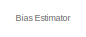
[diagram: Mahony+Bias-Estimator - part 1/3, top center region]
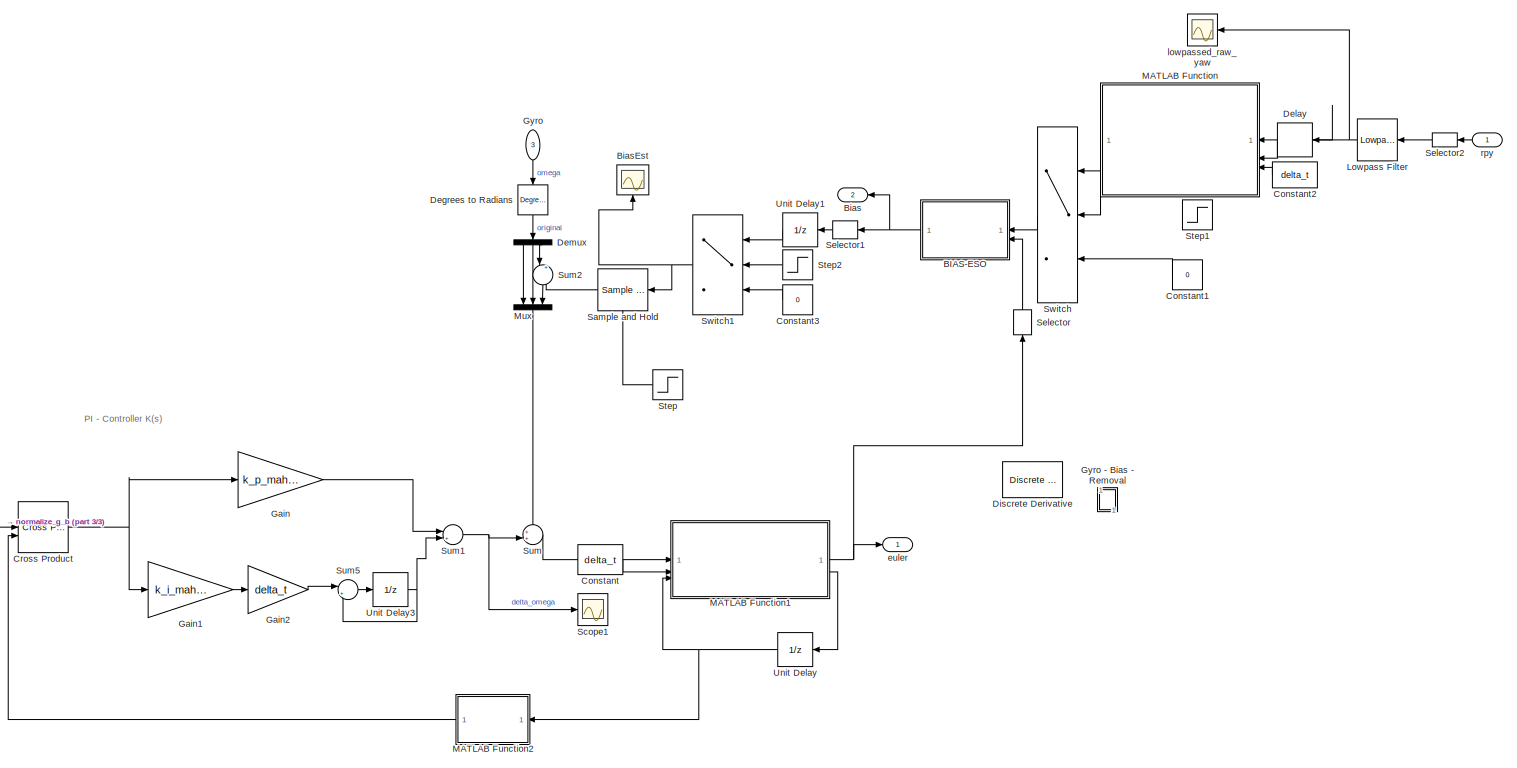
[diagram: Mahony+Bias-Estimator - part 2/3, most of the canvas]
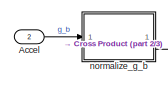
[diagram: Mahony+Bias-Estimator - part 3/3, bottom left region]
BLOCK [SubSystem] Mahony+Bias-Estimator
BLOCK [Inport] Mahony+Bias-Estimator/Accel
  Port = 2
BLOCK [SubSystem] Mahony+Bias-Estimator/BIAS-ESO
  NameLocation = top
BLOCK [Outport] Mahony+Bias-Estimator/BIAS-ESO/Bias
  NameLocation = top
BLOCK [Gain] Mahony+Bias-Estimator/BIAS-ESO/Gain
  Gain = l
BLOCK [Gain] Mahony+Bias-Estimator/BIAS-ESO/Gain1
  Gain = b_ESO
BLOCK [Gain] Mahony+Bias-Estimator/BIAS-ESO/Gain2
  Gain = A_ESO
  Multiplication = Matrix(K*u)
  NameLocation = top
BLOCK [Sum] Mahony+Bias-Estimator/BIAS-ESO/Sum
  Inputs = |++
BLOCK [Sum] Mahony+Bias-Estimator/BIAS-ESO/Sum1
  Inputs = ++|
  NameLocation = left
BLOCK [UnitDelay] Mahony+Bias-Estimator/BIAS-ESO/Unit Delay
  HasFrameUpgradeWarning = on
  SampleTime = delta_t
BLOCK [Inport] Mahony+Bias-Estimator/BIAS-ESO/Yaw_Fused
  Port = 2
BLOCK [Inport] Mahony+Bias-Estimator/BIAS-ESO/u
BLOCK [Outport] Mahony+Bias-Estimator/Bias
  NameLocation = top
  Port = 2
BLOCK [Scope] Mahony+Bias-Estimator/BiasEst
  Floating = off
  NameLocation = right
  NumInputPorts = 1
  ScopeSpecificationString = Simulink.scopes.TimeScopeBlockCfg('CurrentConfiguration', extmgr.ConfigurationSet(extmgr.Configuration('Core','General UI',true),extmgr.Configuration('Core','Source UI',true),extmgr.Configuration('Sources','WiredSimulink',true,'DataLoggingVariableName','ScopeData2'),extmgr.Configuration('Visuals','Time Domain',true,'SerializedDisplays',{struct('MinYLimReal','-0.00294','MaxYLimReal','0.00417','YLab...<+1534ch>
BLOCK [Constant] Mahony+Bias-Estimator/Constant
  Value = delta_t
BLOCK [Constant] Mahony+Bias-Estimator/Constant1
  NameLocation = top
  Value = 0
BLOCK [Constant] Mahony+Bias-Estimator/Constant2
  NameLocation = top
  Value = delta_t
BLOCK [Constant] Mahony+Bias-Estimator/Constant3
  NameLocation = top
  Value = 0
BLOCK [Reference] Mahony+Bias-Estimator/Cross Product  REF=matrix_library/Cross Product
  LibrarySourceBlock = simulink/Matrix\nOperations/Cross Product
  SourceBlock = matrix_library/Cross Product
  SourceType = CrossProduct
BLOCK [Reference] Mahony+Bias-Estimator/Degrees to Radians  REF=simulink_extras/Transformations/Degrees to
Radians
  NameLocation = left
  SourceBlock = simulink_extras/Transformations/Degrees to\nRadians
  SourceType = DegreesToRadians
BLOCK [Delay] Mahony+Bias-Estimator/Delay
  DelayLength = 1
  InputPortMap = u0
  NameLocation = top
BLOCK [Demux] Mahony+Bias-Estimator/Demux
  NameLocation = left
  Outputs = 3
BLOCK [Reference] Mahony+Bias-Estimator/Discrete Derivative  REF=simulink/Discrete/Discrete Derivative
  Commented = on
  NameLocation = top
  SourceBlock = simulink/Discrete/Discrete Derivative
  SourceType = Discrete Derivative
BLOCK [Gain] Mahony+Bias-Estimator/Gain
  Gain = k_p_mahony
BLOCK [Gain] Mahony+Bias-Estimator/Gain1
  Gain = k_i_mahony
BLOCK [Gain] Mahony+Bias-Estimator/Gain2
  Gain = delta_t
BLOCK [Inport] Mahony+Bias-Estimator/Gyro
  NameLocation = left
  Port = 3
BLOCK [SubSystem] Mahony+Bias-Estimator/Gyro - Bias - Removal
  Commented = on
  NameLocation = left
BLOCK [Constant] Mahony+Bias-Estimator/Gyro - Bias - Removal/Constant1
  Value = 0
BLOCK [Constant] Mahony+Bias-Estimator/Gyro - Bias - Removal/Constant3
BLOCK [Constant] Mahony+Bias-Estimator/Gyro - Bias - Removal/Constant5
  Value = 0
BLOCK [Inport] Mahony+Bias-Estimator/Gyro - Bias - Removal/In1
BLOCK [MultiPortSwitch] Mahony+Bias-Estimator/Gyro - Bias - Removal/Multiport Switch1
  InputSameDT = off
  Inputs = 2
  SaturateOnIntegerOverflow = off
BLOCK [MultiPortSwitch] Mahony+Bias-Estimator/Gyro - Bias - Removal/Multiport Switch2
  InputSameDT = off
  Inputs = 2
  SaturateOnIntegerOverflow = off
BLOCK [Outport] Mahony+Bias-Estimator/Gyro - Bias - Removal/Out1
  VectorParamsAs1DForOutWhenUnconnected = off
BLOCK [Step] Mahony+Bias-Estimator/Gyro - Bias - Removal/Step
  Before = 2
  SampleTime = Ts_IMU
  Time = step_time
BLOCK [SubSystem] Mahony+Bias-Estimator/Gyro - Bias - Removal/Subsystem3
BLOCK [Outport] Mahony+Bias-Estimator/Gyro - Bias - Removal/Subsystem3/Bias
  VectorParamsAs1DForOutWhenUnconnected = off
BLOCK [Constant] Mahony+Bias-Estimator/Gyro - Bias - Removal/Subsystem3/Constant
  Value = 10
BLOCK [Demux] Mahony+Bias-Estimator/Gyro - Bias - Removal/Subsystem3/Demux1
  Outputs = 3
BLOCK [DiscreteIntegrator] Mahony+Bias-Estimator/Gyro - Bias - Removal/Subsystem3/Discrete-Time Integrator
  ICPrevOutput = DiscIntNeverNeededParam
  ICPrevScaledInput = DiscIntNeverNeededParam
  InitialConditionSetting = Auto
  SampleTime = Ts_IMU
BLOCK [DiscreteIntegrator] Mahony+Bias-Estimator/Gyro - Bias - Removal/Subsystem3/Discrete-Time Integrator1
  ICPrevOutput = DiscIntNeverNeededParam
  ICPrevScaledInput = DiscIntNeverNeededParam
  InitialConditionSetting = Auto
  SampleTime = Ts_IMU
BLOCK [DiscreteIntegrator] Mahony+Bias-Estimator/Gyro - Bias - Removal/Subsystem3/Discrete-Time Integrator2
  ICPrevOutput = DiscIntNeverNeededParam
  ICPrevScaledInput = DiscIntNeverNeededParam
  InitialConditionSetting = Auto
  SampleTime = Ts_IMU
BLOCK [Inport] Mahony+Bias-Estimator/Gyro - Bias - Removal/Subsystem3/Gyro
BLOCK [MultiPortSwitch] Mahony+Bias-Estimator/Gyro - Bias - Removal/Subsystem3/Multiport Switch
  InputSameDT = off
  Inputs = 2
  SaturateOnIntegerOverflow = off
BLOCK [MultiPortSwitch] Mahony+Bias-Estimator/Gyro - Bias - Removal/Subsystem3/Multiport Switch1
  InputSameDT = off
  Inputs = 2
  SaturateOnIntegerOverflow = off
BLOCK [MultiPortSwitch] Mahony+Bias-Estimator/Gyro - Bias - Removal/Subsystem3/Multiport Switch2
  InputSameDT = off
  Inputs = 2
  SaturateOnIntegerOverflow = off
BLOCK [Mux] Mahony+Bias-Estimator/Gyro - Bias - Removal/Subsystem3/Mux
  DisplayOption = bar
  Inputs = 3
BLOCK [Product] Mahony+Bias-Estimator/Gyro - Bias - Removal/Subsystem3/Product1
BLOCK [Product] Mahony+Bias-Estimator/Gyro - Bias - Removal/Subsystem3/Product2
BLOCK [Product] Mahony+Bias-Estimator/Gyro - Bias - Removal/Subsystem3/Product3
BLOCK [RateTransition] Mahony+Bias-Estimator/Gyro - Bias - Removal/Subsystem3/Rate Transition2
  OutPortSampleTime = Ts_IMU
BLOCK [Relay] Mahony+Bias-Estimator/Gyro - Bias - Removal/Subsystem3/Relay
  OffOutputValue = 2
  OffSwitchValue = .5
  OnSwitchValue = .5
BLOCK [Scope] Mahony+Bias-Estimator/Gyro - Bias - Removal/Subsystem3/Scope
  Floating = off
  NumInputPorts = 1
BLOCK [Scope] Mahony+Bias-Estimator/Gyro - Bias - Removal/Subsystem3/Scope1
  Floating = off
  NumInputPorts = 1
BLOCK [Scope] Mahony+Bias-Estimator/Gyro - Bias - Removal/Subsystem3/Scope2
  Floating = off
  NumInputPorts = 1
BLOCK [Sum] Mahony+Bias-Estimator/Gyro - Bias - Removal/Subsystem3/Sum1
  Inputs = |+-
BLOCK [Sum] Mahony+Bias-Estimator/Gyro - Bias - Removal/Subsystem3/Sum2
  Inputs = |+-
BLOCK [Sum] Mahony+Bias-Estimator/Gyro - Bias - Removal/Subsystem3/Sum3
  Inputs = |+-
BLOCK [Inport] Mahony+Bias-Estimator/Gyro - Bias - Removal/Subsystem3/Switch
  Port = 2
BLOCK [Sum] Mahony+Bias-Estimator/Gyro - Bias - Removal/Sum1
  Inputs = |+-
BLOCK [Reference] Mahony+Bias-Estimator/Lowpass Filter  REF=dspfdesign/Lowpass Filter
  NameLocation = top
  SourceBlock = dspfdesign/Lowpass Filter
  SourceType = dsp.simulink.LowpassFilter
BLOCK [SubSystem] Mahony+Bias-Estimator/MATLAB Function
  ErrorFcn = Stateflow.Translate.translate
  NameLocation = top
  PermitHierarchicalResolution = ExplicitOnly
  SFBlockType = MATLAB Function
  TreatAsAtomicUnit = on
BLOCK [Demux] Mahony+Bias-Estimator/MATLAB Function/ Demux 
  Outputs = 1
BLOCK [S-Function] Mahony+Bias-Estimator/MATLAB Function/ SFunction 
  EnableBusSupport = on
  FunctionName = sf_sfun
  PortCounts = [3 2]
  SFcnIsStateOwnerBlock = off
  SFunctionDeploymentMode = off
  Tag = Stateflow S-Function 28
BLOCK [Terminator] Mahony+Bias-Estimator/MATLAB Function/ Terminator 
BLOCK [Inport] Mahony+Bias-Estimator/MATLAB Function/delta_t
  Port = 3
BLOCK [Outport] Mahony+Bias-Estimator/MATLAB Function/omega_yaw_est
BLOCK [Inport] Mahony+Bias-Estimator/MATLAB Function/prev_yaw_est
  Port = 2
BLOCK [Inport] Mahony+Bias-Estimator/MATLAB Function/yaw_est
BLOCK [SubSystem] Mahony+Bias-Estimator/MATLAB Function1
  ErrorFcn = Stateflow.Translate.translate
  PermitHierarchicalResolution = ExplicitOnly
  SFBlockType = MATLAB Function
  SystemSampleTime = delta_t
  TreatAsAtomicUnit = on
BLOCK [Demux] Mahony+Bias-Estimator/MATLAB Function1/ Demux 
  Outputs = 1
BLOCK [S-Function] Mahony+Bias-Estimator/MATLAB Function1/ SFunction 
  EnableBusSupport = on
  FunctionName = sf_sfun
  PortCounts = [3 3]
  SFcnIsStateOwnerBlock = off
  SFunctionDeploymentMode = off
  Tag = Stateflow S-Function 5
BLOCK [Terminator] Mahony+Bias-Estimator/MATLAB Function1/ Terminator 
BLOCK [Inport] Mahony+Bias-Estimator/MATLAB Function1/delta_t
  Port = 2
BLOCK [Outport] Mahony+Bias-Estimator/MATLAB Function1/euler
BLOCK [Inport] Mahony+Bias-Estimator/MATLAB Function1/omega
BLOCK [Inport] Mahony+Bias-Estimator/MATLAB Function1/quat_mem
  Port = 3
BLOCK [Outport] Mahony+Bias-Estimator/MATLAB Function1/quaternion_tplus
  Port = 2
BLOCK [SubSystem] Mahony+Bias-Estimator/MATLAB Function2
  ErrorFcn = Stateflow.Translate.translate
  NameLocation = top
  PermitHierarchicalResolution = ExplicitOnly
  SFBlockType = MATLAB Function
  TreatAsAtomicUnit = on
BLOCK [Demux] Mahony+Bias-Estimator/MATLAB Function2/ Demux 
  Outputs = 1
BLOCK [S-Function] Mahony+Bias-Estimator/MATLAB Function2/ SFunction 
  EnableBusSupport = on
  FunctionName = sf_sfun
  PortCounts = [1 2]
  SFcnIsStateOwnerBlock = off
  SFunctionDeploymentMode = off
  Tag = Stateflow S-Function 6
BLOCK [Terminator] Mahony+Bias-Estimator/MATLAB Function2/ Terminator 
BLOCK [Inport] Mahony+Bias-Estimator/MATLAB Function2/q
BLOCK [Outport] Mahony+Bias-Estimator/MATLAB Function2/v_b
BLOCK [Mux] Mahony+Bias-Estimator/Mux
  DisplayOption = bar
  Inputs = 3
  NameLocation = left
BLOCK [Reference] Mahony+Bias-Estimator/Sample and Hold  REF=dspsigops/Sample
and Hold
  LibrarySourceBlock = dsphdlsupportsigops/Sample\nand Hold
  NameLocation = top
  SourceBlock = dspsigops/Sample\nand Hold
  SourceType = Sample and Hold
BLOCK [Scope] Mahony+Bias-Estimator/Scope1
  Floating = off
  NumInputPorts = 1
  ScopeSpecificationString = Simulink.scopes.TimeScopeBlockCfg('CurrentConfiguration', extmgr.ConfigurationSet(extmgr.Configuration('Core','General UI',true),extmgr.Configuration('Core','Source UI',true),extmgr.Configuration('Sources','WiredSimulink',true,'DataLoggingVariableName','ScopeData4'),extmgr.Configuration('Visuals','Time Domain',true,'SerializedDisplays',{struct('MinYLimReal','-0.00612','MaxYLimReal','0.00352','YLab...<+1635ch>
BLOCK [Selector] Mahony+Bias-Estimator/Selector
  IndexOptions = Index vector (dialog)
  Indices = [3]
  InputPortWidth = 3
  NameLocation = right
  OutputSizes = 1
BLOCK [Selector] Mahony+Bias-Estimator/Selector1
  IndexOptions = Index vector (dialog)
  Indices = [2]
  InputPortWidth = 2
  NameLocation = top
  OutputSizes = 1
BLOCK [Selector] Mahony+Bias-Estimator/Selector2
  IndexOptions = Index vector (dialog)
  Indices = [3]
  InputPortWidth = 3
  NameLocation = top
  OutputSizes = 1
BLOCK [Step] Mahony+Bias-Estimator/Step
  NameLocation = top
  SampleTime = delta_t
  Time = step_time
BLOCK [Step] Mahony+Bias-Estimator/Step1
  Commented = on
  NameLocation = top
  SampleTime = delta_t
  Time = step_time
BLOCK [Step] Mahony+Bias-Estimator/Step2
  NameLocation = top
  SampleTime = delta_t
  Time = step_time
BLOCK [Sum] Mahony+Bias-Estimator/Sum
  Inputs = ++|
BLOCK [Sum] Mahony+Bias-Estimator/Sum1
  Inputs = |++|
BLOCK [Sum] Mahony+Bias-Estimator/Sum2
  Inputs = |+-
  NameLocation = left
BLOCK [Sum] Mahony+Bias-Estimator/Sum5
  Inputs = |++
BLOCK [Switch] Mahony+Bias-Estimator/Switch
  InputSameDT = off
  NameLocation = top
  SaturateOnIntegerOverflow = off
  Threshold = 0.1
BLOCK [Switch] Mahony+Bias-Estimator/Switch1
  InputSameDT = off
  NameLocation = top
  SaturateOnIntegerOverflow = off
  Threshold = 1
BLOCK [UnitDelay] Mahony+Bias-Estimator/Unit Delay
  HasFrameUpgradeWarning = on
  InitialCondition = q_init
  NameLocation = top
  SampleTime = delta_t
BLOCK [UnitDelay] Mahony+Bias-Estimator/Unit Delay1
  HasFrameUpgradeWarning = on
  NameLocation = top
  SampleTime = -1
BLOCK [UnitDelay] Mahony+Bias-Estimator/Unit Delay3
  HasFrameUpgradeWarning = on
  SampleTime = delta_t
BLOCK [Outport] Mahony+Bias-Estimator/euler
BLOCK [Scope] Mahony+Bias-Estimator/lowpassed_raw_yaw
  Floating = off
  NameLocation = top
  NumInputPorts = 1
  ScopeSpecificationString = Simulink.scopes.TimeScopeBlockCfg('CurrentConfiguration', extmgr.ConfigurationSet(extmgr.Configuration('Core','General UI',true),extmgr.Configuration('Core','Source UI',true),extmgr.Configuration('Sources','WiredSimulink',true,'DataLoggingVariableName','ScopeData3'),extmgr.Configuration('Visuals','Time Domain',true,'SerializedDisplays',{struct('MinYLimReal','-0.00617','MaxYLimReal','0.00068','YLab...<+1524ch>
BLOCK [SubSystem] Mahony+Bias-Estimator/normalize_g_b
  ErrorFcn = Stateflow.Translate.translate
  PermitHierarchicalResolution = ExplicitOnly
  SFBlockType = MATLAB Function
  TreatAsAtomicUnit = on
BLOCK [Demux] Mahony+Bias-Estimator/normalize_g_b/ Demux 
  Outputs = 1
BLOCK [S-Function] Mahony+Bias-Estimator/normalize_g_b/ SFunction 
  EnableBusSupport = on
  FunctionName = sf_sfun
  PortCounts = [1 2]
  SFcnIsStateOwnerBlock = off
  SFunctionDeploymentMode = off
  Tag = Stateflow S-Function 4
BLOCK [Terminator] Mahony+Bias-Estimator/normalize_g_b/ Terminator 
BLOCK [Inport] Mahony+Bias-Estimator/normalize_g_b/g_b
BLOCK [Outport] Mahony+Bias-Estimator/normalize_g_b/g_b_norm
BLOCK [Inport] Mahony+Bias-Estimator/rpy
  NameLocation = top
BLOCK [ManualSwitch] Manual Switch
BLOCK [Scope] Motors
  Floating = off
  NumInputPorts = 1
  ScopeSpecificationString = Simulink.scopes.TimeScopeBlockCfg('CurrentConfiguration', extmgr.ConfigurationSet(extmgr.Configuration('Core','General UI',true),extmgr.Configuration('Core','Source UI',true),extmgr.Configuration('Sources','WiredSimulink',true,'DataLoggingVariableName','ScopeData2'),extmgr.Configuration('Visuals','Time Domain',true,'SerializedDisplays',{struct('MinYLimReal','-1.00000','MaxYLimReal','1.00000','YLab...<+1486ch>
BLOCK [Mux] Mux
  DisplayOption = bar
  Inputs = 8
BLOCK [Mux] Mux1
  DisplayOption = bar
  Inputs = 2
BLOCK [Mux] Mux2
  Commented = on
  DisplayOption = bar
  Inputs = 2
BLOCK [Mux] Mux3
  DisplayOption = bar
  Inputs = 2
BLOCK [Mux] Mux4
  DisplayOption = bar
  Inputs = 3
BLOCK [SubSystem] P3022-V1- CW360 -Interface
BLOCK [Reference] P3022-V1- CW360 -Interface/Analog Input  REF=bbblueBasicLib/Analog Input
  SourceBlock = bbblueBasicLib/Analog Input
  SourceType = beagleboneblue.bbblueADC
BLOCK [Display] P3022-V1- CW360 -Interface/Display
  Decimation = 1
BLOCK [Gain] P3022-V1- CW360 -Interface/Gain
  Gain = -1/voltage_divider_Vout_max
BLOCK [Gain] P3022-V1- CW360 -Interface/Gain1
  Gain = 360
BLOCK [Gain] P3022-V1- CW360 -Interface/Gain2
  Gain = 2*pi
BLOCK [Outport] P3022-V1- CW360 -Interface/Yaw (Deg)
  Port = 2
BLOCK [Outport] P3022-V1- CW360 -Interface/Yaw (Rad)
BLOCK [SubSystem] Quarternion EKF
BLOCK [SubSystem] Quarternion EKF + Amfitrack
BLOCK [SubSystem] Quarternion EKF + Amfitrack (Yaw Only)
BLOCK [Inport] Quarternion EKF + Amfitrack (Yaw Only)/Accel
BLOCK [Constant] Quarternion EKF + Amfitrack (Yaw Only)/Constant
  Value = delta_t
BLOCK [Constant] Quarternion EKF + Amfitrack (Yaw Only)/Constant1
  Value = gyro_sigma_3d
BLOCK [Constant] Quarternion EKF + Amfitrack (Yaw Only)/Constant2
  Value = q_sigma
BLOCK [Constant] Quarternion EKF + Amfitrack (Yaw Only)/Constant3
  Value = acc_sigma
BLOCK [Scope] Quarternion EKF + Amfitrack (Yaw Only)/Cumulative Yaw mp
  Floating = off
  NumInputPorts = 1
  ScopeSpecificationString = Simulink.scopes.TimeScopeBlockCfg('CurrentConfiguration', extmgr.ConfigurationSet(extmgr.Configuration('Core','General UI',true),extmgr.Configuration('Core','Source UI',true),extmgr.Configuration('Sources','WiredSimulink',true,'DataLoggingVariableName','ScopeData1'),extmgr.Configuration('Visuals','Time Domain',true,'SerializedDisplays',{struct('MinYLimReal','-1.78769','MaxYLimReal','7.99209','YLab...<+1564ch>
BLOCK [Reference] Quarternion EKF + Amfitrack (Yaw Only)/Degrees to Radians  REF=simulink_extras/Transformations/Degrees to
Radians
  SourceBlock = simulink_extras/Transformations/Degrees to\nRadians
  SourceType = DegreesToRadians
BLOCK [Delay] Quarternion EKF + Amfitrack (Yaw Only)/Delay
  DelayLength = 1
  InitialCondition = [1,0,0,0]
  InitialConditionSource = Input port
  InputPortMap = u0,p4
  SampleTime = delta_t
BLOCK [Delay] Quarternion EKF + Amfitrack (Yaw Only)/Delay1
  DelayLength = 1
  InitialCondition = [0,0]
  InputPortMap = u0
  SampleTime = delta_t
BLOCK [Delay] Quarternion EKF + Amfitrack (Yaw Only)/Delay2
  DelayLength = 1
  InitialCondition = [0,0]
  InputPortMap = u0
  SampleTime = delta_t
BLOCK [From] Quarternion EKF + Amfitrack (Yaw Only)/From
  GotoTag = qinit
BLOCK [Goto] Quarternion EKF + Amfitrack (Yaw Only)/Goto
  GotoTag = qinit
  NameLocation = left
BLOCK [Inport] Quarternion EKF + Amfitrack (Yaw Only)/Gyro
  Port = 2
BLOCK [SubSystem] Quarternion EKF + Amfitrack (Yaw Only)/Initialize QEKF_AOY
  ErrorFcn = Stateflow.Translate.translate
  NameLocation = left
  PermitHierarchicalResolution = ExplicitOnly
  SFBlockType = MATLAB Function
  TreatAsAtomicUnit = on
BLOCK [Demux] Quarternion EKF + Amfitrack (Yaw Only)/Initialize QEKF_AOY/ Demux 
  Outputs = 1
BLOCK [S-Function] Quarternion EKF + Amfitrack (Yaw Only)/Initialize QEKF_AOY/ SFunction 
  EnableBusSupport = on
  FunctionName = sf_sfun
  PortCounts = [1 2]
  SFcnIsStateOwnerBlock = off
  SFunctionDeploymentMode = off
  Tag = Stateflow S-Function 41
BLOCK [Terminator] Quarternion EKF + Amfitrack (Yaw Only)/Initialize QEKF_AOY/ Terminator 
BLOCK [Outport] Quarternion EKF + Amfitrack (Yaw Only)/Initialize QEKF_AOY/q_init
BLOCK [Inport] Quarternion EKF + Amfitrack (Yaw Only)/Initialize QEKF_AOY/quat_meas
BLOCK [SubSystem] Quarternion EKF + Amfitrack (Yaw Only)/MATLAB Function
  ErrorFcn = Stateflow.Translate.translate
  PermitHierarchicalResolution = ExplicitOnly
  SFBlockType = MATLAB Function
  TreatAsAtomicUnit = on
BLOCK [Demux] Quarternion EKF + Amfitrack (Yaw Only)/MATLAB Function/ Demux 
  Outputs = 1
BLOCK [S-Function] Quarternion EKF + Amfitrack (Yaw Only)/MATLAB Function/ SFunction 
  EnableBusSupport = on
  FunctionName = sf_sfun
  PortCounts = [1 2]
  SFcnIsStateOwnerBlock = off
  SFunctionDeploymentMode = off
  Tag = Stateflow S-Function 33
BLOCK [Terminator] Quarternion EKF + Amfitrack (Yaw Only)/MATLAB Function/ Terminator 
BLOCK [Outport] Quarternion EKF + Amfitrack (Yaw Only)/MATLAB Function/euler
BLOCK [Inport] Quarternion EKF + Amfitrack (Yaw Only)/MATLAB Function/quat_in
BLOCK [SubSystem] Quarternion EKF + Amfitrack (Yaw Only)/Predict
  ErrorFcn = Stateflow.Translate.translate
  PermitHierarchicalResolution = ExplicitOnly
  SFBlockType = MATLAB Function
  TreatAsAtomicUnit = on
BLOCK [Demux] Quarternion EKF + Amfitrack (Yaw Only)/Predict/ Demux 
  Outputs = 1
BLOCK [S-Function] Quarternion EKF + Amfitrack (Yaw Only)/Predict/ SFunction 
  EnableBusSupport = on
  FunctionName = sf_sfun
  PortCounts = [5 3]
  SFcnIsStateOwnerBlock = off
  SFunctionDeploymentMode = off
  Tag = Stateflow S-Function 34
BLOCK [Terminator] Quarternion EKF + Amfitrack (Yaw Only)/Predict/ Terminator 
BLOCK [Inport] Quarternion EKF + Amfitrack (Yaw Only)/Predict/P_t_
  Port = 4
BLOCK [Outport] Quarternion EKF + Amfitrack (Yaw Only)/Predict/P_t_dash
  Port = 2
BLOCK [Inport] Quarternion EKF + Amfitrack (Yaw Only)/Predict/delta_t
  Port = 3
BLOCK [Inport] Quarternion EKF + Amfitrack (Yaw Only)/Predict/gyro_sigma
  Port = 5
BLOCK [Inport] Quarternion EKF + Amfitrack (Yaw Only)/Predict/omega
  Port = 2
BLOCK [Outport] Quarternion EKF + Amfitrack (Yaw Only)/Predict/q_t_dash
BLOCK [Inport] Quarternion EKF + Amfitrack (Yaw Only)/Predict/quat_in
BLOCK [UnitDelay] Quarternion EKF + Amfitrack (Yaw Only)/Unit Delay1
  HasFrameUpgradeWarning = on
  InitialCondition = P_0
  SampleTime = delta_t
BLOCK [SubSystem] Quarternion EKF + Amfitrack (Yaw Only)/Update
  ErrorFcn = Stateflow.Translate.translate
  PermitHierarchicalResolution = ExplicitOnly
  SFBlockType = MATLAB Function
  SystemSampleTime = delta_t
  TreatAsAtomicUnit = on
BLOCK [Demux] Quarternion EKF + Amfitrack (Yaw Only)/Update/ Demux 
  Outputs = 1
BLOCK [S-Function] Quarternion EKF + Amfitrack (Yaw Only)/Update/ SFunction 
  EnableBusSupport = on
  FunctionName = sf_sfun
  PortCounts = [8 5]
  SFcnIsStateOwnerBlock = off
  SFunctionDeploymentMode = off
  Tag = Stateflow S-Function 35
BLOCK [Terminator] Quarternion EKF + Amfitrack (Yaw Only)/Update/ Terminator 
BLOCK [Outport] Quarternion EKF + Amfitrack (Yaw Only)/Update/P_t
  Port = 2
BLOCK [Inport] Quarternion EKF + Amfitrack (Yaw Only)/Update/P_t_dash
  Port = 6
BLOCK [Inport] Quarternion EKF + Amfitrack (Yaw Only)/Update/acc_sigma
  Port = 4
BLOCK [Inport] Quarternion EKF + Amfitrack (Yaw Only)/Update/accel
BLOCK [Inport] Quarternion EKF + Amfitrack (Yaw Only)/Update/prev_cul_yaw_mp
  Port = 8
BLOCK [Inport] Quarternion EKF + Amfitrack (Yaw Only)/Update/prev_yaw_mp
  Port = 7
BLOCK [Inport] Quarternion EKF + Amfitrack (Yaw Only)/Update/q_meas
  Port = 2
BLOCK [Inport] Quarternion EKF + Amfitrack (Yaw Only)/Update/q_sigma
  Port = 5
BLOCK [Outport] Quarternion EKF + Amfitrack (Yaw Only)/Update/q_t
BLOCK [Inport] Quarternion EKF + Amfitrack (Yaw Only)/Update/quat_in
  Port = 3
BLOCK [Outport] Quarternion EKF + Amfitrack (Yaw Only)/Update/yaw_cul_mp
  Port = 4
BLOCK [Outport] Quarternion EKF + Amfitrack (Yaw Only)/Update/yaw_mp
  Port = 3
BLOCK [Scope] Quarternion EKF + Amfitrack (Yaw Only)/Yaw_mp
  Floating = off
  NumInputPorts = 1
  ScopeSpecificationString = Simulink.scopes.TimeScopeBlockCfg('CurrentConfiguration', extmgr.ConfigurationSet(extmgr.Configuration('Core','General UI',true),extmgr.Configuration('Core','Source UI',true),extmgr.Configuration('Sources','WiredSimulink',true,'DataLoggingVariableName','ScopeData2'),extmgr.Configuration('Visuals','Time Domain',true,'SerializedDisplays',{struct('MinYLimReal','-3.92273','MaxYLimReal','3.92158','YLab...<+1597ch>
BLOCK [Outport] Quarternion EKF + Amfitrack (Yaw Only)/euler_qekf
  Port = 2
BLOCK [SubSystem] Quarternion EKF + Amfitrack (Yaw Only)/normalize_g_b
  ErrorFcn = Stateflow.Translate.translate
  PermitHierarchicalResolution = ExplicitOnly
  SFBlockType = MATLAB Function
  TreatAsAtomicUnit = on
BLOCK [Demux] Quarternion EKF + Amfitrack (Yaw Only)/normalize_g_b/ Demux 
  Outputs = 1
BLOCK [S-Function] Quarternion EKF + Amfitrack (Yaw Only)/normalize_g_b/ SFunction 
  EnableBusSupport = on
  FunctionName = sf_sfun
  PortCounts = [1 2]
  SFcnIsStateOwnerBlock = off
  SFunctionDeploymentMode = off
  Tag = Stateflow S-Function 36
BLOCK [Terminator] Quarternion EKF + Amfitrack (Yaw Only)/normalize_g_b/ Terminator 
BLOCK [Inport] Quarternion EKF + Amfitrack (Yaw Only)/normalize_g_b/v
BLOCK [Outport] Quarternion EKF + Amfitrack (Yaw Only)/normalize_g_b/v_norm
BLOCK [Outport] Quarternion EKF + Amfitrack (Yaw Only)/q
BLOCK [Inport] Quarternion EKF + Amfitrack (Yaw Only)/q_amfitrack
  Port = 3
BLOCK [SubSystem] Quarternion EKF + Amfitrack (Yaw Only)1
  Commented = on
BLOCK [Inport] Quarternion EKF + Amfitrack (Yaw Only)1/Accel
BLOCK [Constant] Quarternion EKF + Amfitrack (Yaw Only)1/Constant
  Value = delta_t
BLOCK [Constant] Quarternion EKF + Amfitrack (Yaw Only)1/Constant1
  Value = gyro_sigma_3d
BLOCK [Constant] Quarternion EKF + Amfitrack (Yaw Only)1/Constant2
  Value = q_sigma
BLOCK [Constant] Quarternion EKF + Amfitrack (Yaw Only)1/Constant3
  Value = acc_sigma
BLOCK [Scope] Quarternion EKF + Amfitrack (Yaw Only)1/Cumulative Yaw mp
  Floating = off
  NumInputPorts = 1
  ScopeSpecificationString = Simulink.scopes.TimeScopeBlockCfg('CurrentConfiguration', extmgr.ConfigurationSet(extmgr.Configuration('Core','General UI',true),extmgr.Configuration('Core','Source UI',true),extmgr.Configuration('Sources','WiredSimulink',true,'DataLoggingVariableName','ScopeData1'),extmgr.Configuration('Visuals','Time Domain',true,'SerializedDisplays',{struct('MinYLimReal','0.81501','MaxYLimReal','7.63894','YLabe...<+1521ch>
BLOCK [Reference] Quarternion EKF + Amfitrack (Yaw Only)1/Degrees to Radians  REF=simulink_extras/Transformations/Degrees to
Radians
  SourceBlock = simulink_extras/Transformations/Degrees to\nRadians
  SourceType = DegreesToRadians
BLOCK [Delay] Quarternion EKF + Amfitrack (Yaw Only)1/Delay
  DelayLength = 1
  InitialCondition = [1,0,0,0]
  InputPortMap = u0
  SampleTime = delta_t
BLOCK [Delay] Quarternion EKF + Amfitrack (Yaw Only)1/Delay1
  DelayLength = 1
  InitialCondition = [0,0]
  InputPortMap = u0
  SampleTime = delta_t
BLOCK [Delay] Quarternion EKF + Amfitrack (Yaw Only)1/Delay2
  DelayLength = 1
  InitialCondition = [0,0]
  InputPortMap = u0
  SampleTime = delta_t
BLOCK [Inport] Quarternion EKF + Amfitrack (Yaw Only)1/Gyro
  Port = 2
BLOCK [SubSystem] Quarternion EKF + Amfitrack (Yaw Only)1/MATLAB Function
  ErrorFcn = Stateflow.Translate.translate
  PermitHierarchicalResolution = ExplicitOnly
  SFBlockType = MATLAB Function
  TreatAsAtomicUnit = on
BLOCK [Demux] Quarternion EKF + Amfitrack (Yaw Only)1/MATLAB Function/ Demux 
  Outputs = 1
BLOCK [S-Function] Quarternion EKF + Amfitrack (Yaw Only)1/MATLAB Function/ SFunction 
  EnableBusSupport = on
  FunctionName = sf_sfun
  PortCounts = [1 2]
  SFcnIsStateOwnerBlock = off
  SFunctionDeploymentMode = off
  Tag = Stateflow S-Function 37
BLOCK [Terminator] Quarternion EKF + Amfitrack (Yaw Only)1/MATLAB Function/ Terminator 
BLOCK [Outport] Quarternion EKF + Amfitrack (Yaw Only)1/MATLAB Function/euler
BLOCK [Inport] Quarternion EKF + Amfitrack (Yaw Only)1/MATLAB Function/quat_in
BLOCK [SubSystem] Quarternion EKF + Amfitrack (Yaw Only)1/Predict
  ErrorFcn = Stateflow.Translate.translate
  PermitHierarchicalResolution = ExplicitOnly
  SFBlockType = MATLAB Function
  TreatAsAtomicUnit = on
BLOCK [Demux] Quarternion EKF + Amfitrack (Yaw Only)1/Predict/ Demux 
  Outputs = 1
BLOCK [S-Function] Quarternion EKF + Amfitrack (Yaw Only)1/Predict/ SFunction 
  EnableBusSupport = on
  FunctionName = sf_sfun
  PortCounts = [5 3]
  SFcnIsStateOwnerBlock = off
  SFunctionDeploymentMode = off
  Tag = Stateflow S-Function 38
BLOCK [Terminator] Quarternion EKF + Amfitrack (Yaw Only)1/Predict/ Terminator 
BLOCK [Inport] Quarternion EKF + Amfitrack (Yaw Only)1/Predict/P_t_
  Port = 4
BLOCK [Outport] Quarternion EKF + Amfitrack (Yaw Only)1/Predict/P_t_dash
  Port = 2
BLOCK [Inport] Quarternion EKF + Amfitrack (Yaw Only)1/Predict/delta_t
  Port = 3
BLOCK [Inport] Quarternion EKF + Amfitrack (Yaw Only)1/Predict/gyro_sigma
  Port = 5
BLOCK [Inport] Quarternion EKF + Amfitrack (Yaw Only)1/Predict/omega
  Port = 2
BLOCK [Outport] Quarternion EKF + Amfitrack (Yaw Only)1/Predict/q_t_dash
BLOCK [Inport] Quarternion EKF + Amfitrack (Yaw Only)1/Predict/quat_in
BLOCK [UnitDelay] Quarternion EKF + Amfitrack (Yaw Only)1/Unit Delay1
  HasFrameUpgradeWarning = on
  InitialCondition = P_0
  SampleTime = delta_t
BLOCK [SubSystem] Quarternion EKF + Amfitrack (Yaw Only)1/Update
  ErrorFcn = Stateflow.Translate.translate
  PermitHierarchicalResolution = ExplicitOnly
  SFBlockType = MATLAB Function
  SystemSampleTime = delta_t
  TreatAsAtomicUnit = on
BLOCK [Demux] Quarternion EKF + Amfitrack (Yaw Only)1/Update/ Demux 
  Outputs = 1
BLOCK [S-Function] Quarternion EKF + Amfitrack (Yaw Only)1/Update/ SFunction 
  EnableBusSupport = on
  FunctionName = sf_sfun
  PortCounts = [8 5]
  SFcnIsStateOwnerBlock = off
  SFunctionDeploymentMode = off
  Tag = Stateflow S-Function 39
BLOCK [Terminator] Quarternion EKF + Amfitrack (Yaw Only)1/Update/ Terminator 
BLOCK [Outport] Quarternion EKF + Amfitrack (Yaw Only)1/Update/P_t
  Port = 2
BLOCK [Inport] Quarternion EKF + Amfitrack (Yaw Only)1/Update/P_t_dash
  Port = 6
BLOCK [Inport] Quarternion EKF + Amfitrack (Yaw Only)1/Update/acc_sigma
  Port = 4
BLOCK [Inport] Quarternion EKF + Amfitrack (Yaw Only)1/Update/accel
BLOCK [Inport] Quarternion EKF + Amfitrack (Yaw Only)1/Update/prev_cul_yaw_mp
  Port = 8
BLOCK [Inport] Quarternion EKF + Amfitrack (Yaw Only)1/Update/prev_yaw_mp
  Port = 7
BLOCK [Inport] Quarternion EKF + Amfitrack (Yaw Only)1/Update/q_meas
  Port = 2
BLOCK [Inport] Quarternion EKF + Amfitrack (Yaw Only)1/Update/q_sigma
  Port = 5
BLOCK [Outport] Quarternion EKF + Amfitrack (Yaw Only)1/Update/q_t
BLOCK [Inport] Quarternion EKF + Amfitrack (Yaw Only)1/Update/quat_in
  Port = 3
BLOCK [Outport] Quarternion EKF + Amfitrack (Yaw Only)1/Update/yaw_cul_mp
  Port = 4
BLOCK [Outport] Quarternion EKF + Amfitrack (Yaw Only)1/Update/yaw_mp
  Port = 3
BLOCK [Scope] Quarternion EKF + Amfitrack (Yaw Only)1/Yaw_mp
  Floating = off
  NumInputPorts = 1
  ScopeSpecificationString = Simulink.scopes.TimeScopeBlockCfg('CurrentConfiguration', extmgr.ConfigurationSet(extmgr.Configuration('Core','General UI',true),extmgr.Configuration('Core','Source UI',true),extmgr.Configuration('Sources','WiredSimulink',true,'DataLoggingVariableName','ScopeData2'),extmgr.Configuration('Visuals','Time Domain',true,'SerializedDisplays',{struct('MinYLimReal','-3.92689','MaxYLimReal','3.92687','YLab...<+1564ch>
BLOCK [Outport] Quarternion EKF + Amfitrack (Yaw Only)1/euler_qekf
  Port = 2
BLOCK [SubSystem] Quarternion EKF + Amfitrack (Yaw Only)1/normalize_g_b
  ErrorFcn = Stateflow.Translate.translate
  PermitHierarchicalResolution = ExplicitOnly
  SFBlockType = MATLAB Function
  TreatAsAtomicUnit = on
BLOCK [Demux] Quarternion EKF + Amfitrack (Yaw Only)1/normalize_g_b/ Demux 
  Outputs = 1
BLOCK [S-Function] Quarternion EKF + Amfitrack (Yaw Only)1/normalize_g_b/ SFunction 
  EnableBusSupport = on
  FunctionName = sf_sfun
  PortCounts = [1 2]
  SFcnIsStateOwnerBlock = off
  SFunctionDeploymentMode = off
  Tag = Stateflow S-Function 40
BLOCK [Terminator] Quarternion EKF + Amfitrack (Yaw Only)1/normalize_g_b/ Terminator 
BLOCK [Inport] Quarternion EKF + Amfitrack (Yaw Only)1/normalize_g_b/v
BLOCK [Outport] Quarternion EKF + Amfitrack (Yaw Only)1/normalize_g_b/v_norm
BLOCK [Outport] Quarternion EKF + Amfitrack (Yaw Only)1/q
BLOCK [Inport] Quarternion EKF + Amfitrack (Yaw Only)1/q_amfitrack
  Port = 3
BLOCK [Inport] Quarternion EKF + Amfitrack/Accel
BLOCK [Constant] Quarternion EKF + Amfitrack/Constant
  Value = delta_t
BLOCK [Constant] Quarternion EKF + Amfitrack/Constant1
  Value = gyro_sigma_3d
BLOCK [Constant] Quarternion EKF + Amfitrack/Constant2
  Value = q_sigma
BLOCK [Constant] Quarternion EKF + Amfitrack/Constant3
  Value = acc_sigma
BLOCK [Reference] Quarternion EKF + Amfitrack/Degrees to Radians  REF=simulink_extras/Transformations/Degrees to
Radians
  SourceBlock = simulink_extras/Transformations/Degrees to\nRadians
  SourceType = DegreesToRadians
BLOCK [Delay] Quarternion EKF + Amfitrack/Delay
  DelayLength = 1
  InitialCondition = [1,0,0,0]
  InputPortMap = u0
  SampleTime = delta_t
BLOCK [Inport] Quarternion EKF + Amfitrack/Gyro
  Port = 2
BLOCK [SubSystem] Quarternion EKF + Amfitrack/MATLAB Function
  ErrorFcn = Stateflow.Translate.translate
  PermitHierarchicalResolution = ExplicitOnly
  SFBlockType = MATLAB Function
  TreatAsAtomicUnit = on
BLOCK [Demux] Quarternion EKF + Amfitrack/MATLAB Function/ Demux 
  Outputs = 1
BLOCK [S-Function] Quarternion EKF + Amfitrack/MATLAB Function/ SFunction 
  EnableBusSupport = on
  FunctionName = sf_sfun
  PortCounts = [1 2]
  SFcnIsStateOwnerBlock = off
  SFunctionDeploymentMode = off
  Tag = Stateflow S-Function 29
BLOCK [Terminator] Quarternion EKF + Amfitrack/MATLAB Function/ Terminator 
BLOCK [Outport] Quarternion EKF + Amfitrack/MATLAB Function/euler
BLOCK [Inport] Quarternion EKF + Amfitrack/MATLAB Function/quat_in
BLOCK [SubSystem] Quarternion EKF + Amfitrack/Predict
  ErrorFcn = Stateflow.Translate.translate
  PermitHierarchicalResolution = ExplicitOnly
  SFBlockType = MATLAB Function
  TreatAsAtomicUnit = on
BLOCK [Demux] Quarternion EKF + Amfitrack/Predict/ Demux 
  Outputs = 1
BLOCK [S-Function] Quarternion EKF + Amfitrack/Predict/ SFunction 
  EnableBusSupport = on
  FunctionName = sf_sfun
  PortCounts = [5 3]
  SFcnIsStateOwnerBlock = off
  SFunctionDeploymentMode = off
  Tag = Stateflow S-Function 30
BLOCK [Terminator] Quarternion EKF + Amfitrack/Predict/ Terminator 
BLOCK [Inport] Quarternion EKF + Amfitrack/Predict/P_t_
  Port = 4
BLOCK [Outport] Quarternion EKF + Amfitrack/Predict/P_t_dash
  Port = 2
BLOCK [Inport] Quarternion EKF + Amfitrack/Predict/delta_t
  Port = 3
BLOCK [Inport] Quarternion EKF + Amfitrack/Predict/gyro_sigma
  Port = 5
BLOCK [Inport] Quarternion EKF + Amfitrack/Predict/omega
  Port = 2
BLOCK [Outport] Quarternion EKF + Amfitrack/Predict/q_t_dash
BLOCK [Inport] Quarternion EKF + Amfitrack/Predict/quat_in
BLOCK [UnitDelay] Quarternion EKF + Amfitrack/Unit Delay1
  HasFrameUpgradeWarning = on
  InitialCondition = P_0
  SampleTime = delta_t
BLOCK [SubSystem] Quarternion EKF + Amfitrack/Update
  ErrorFcn = Stateflow.Translate.translate
  PermitHierarchicalResolution = ExplicitOnly
  SFBlockType = MATLAB Function
  SystemSampleTime = delta_t
  TreatAsAtomicUnit = on
BLOCK [Demux] Quarternion EKF + Amfitrack/Update/ Demux 
  Outputs = 1
BLOCK [S-Function] Quarternion EKF + Amfitrack/Update/ SFunction 
  EnableBusSupport = on
  FunctionName = sf_sfun
  PortCounts = [6 3]
  SFcnIsStateOwnerBlock = off
  SFunctionDeploymentMode = off
  Tag = Stateflow S-Function 31
BLOCK [Terminator] Quarternion EKF + Amfitrack/Update/ Terminator 
BLOCK [Outport] Quarternion EKF + Amfitrack/Update/P_t
  Port = 2
BLOCK [Inport] Quarternion EKF + Amfitrack/Update/P_t_dash
  Port = 6
BLOCK [Inport] Quarternion EKF + Amfitrack/Update/acc_sigma
  Port = 4
BLOCK [Inport] Quarternion EKF + Amfitrack/Update/accel
BLOCK [Inport] Quarternion EKF + Amfitrack/Update/q_meas
  Port = 2
BLOCK [Inport] Quarternion EKF + Amfitrack/Update/q_sigma
  Port = 5
BLOCK [Outport] Quarternion EKF + Amfitrack/Update/q_t
BLOCK [Inport] Quarternion EKF + Amfitrack/Update/quat_in
  Port = 3
BLOCK [Outport] Quarternion EKF + Amfitrack/euler_qekf
  Port = 2
BLOCK [SubSystem] Quarternion EKF + Amfitrack/normalize_g_b
  ErrorFcn = Stateflow.Translate.translate
  PermitHierarchicalResolution = ExplicitOnly
  SFBlockType = MATLAB Function
  TreatAsAtomicUnit = on
BLOCK [Demux] Quarternion EKF + Amfitrack/normalize_g_b/ Demux 
  Outputs = 1
BLOCK [S-Function] Quarternion EKF + Amfitrack/normalize_g_b/ SFunction 
  EnableBusSupport = on
  FunctionName = sf_sfun
  PortCounts = [1 2]
  SFcnIsStateOwnerBlock = off
  SFunctionDeploymentMode = off
  Tag = Stateflow S-Function 32
BLOCK [Terminator] Quarternion EKF + Amfitrack/normalize_g_b/ Terminator 
BLOCK [Inport] Quarternion EKF + Amfitrack/normalize_g_b/v
BLOCK [Outport] Quarternion EKF + Amfitrack/normalize_g_b/v_norm
BLOCK [Outport] Quarternion EKF + Amfitrack/q
BLOCK [Inport] Quarternion EKF + Amfitrack/q_amfitrack
  Port = 3
BLOCK [Inport] Quarternion EKF/Accel
BLOCK [Constant] Quarternion EKF/Constant
  Value = delta_t
BLOCK [Constant] Quarternion EKF/Constant1
  Value = gyro_sigma
BLOCK [Constant] Quarternion EKF/Constant2
  Value = r_qekf
BLOCK [Constant] Quarternion EKF/Constant3
  Value = acc_sigma
BLOCK [Constant] Quarternion EKF/Constant4
  Value = mag_sigma
BLOCK [Reference] Quarternion EKF/Degrees to Radians  REF=simulink_extras/Transformations/Degrees to
Radians
  SourceBlock = simulink_extras/Transformations/Degrees to\nRadians
  SourceType = DegreesToRadians
BLOCK [Delay] Quarternion EKF/Delay
  DelayLength = 1
  InitialConditionSource = Input port
  InputPortMap = u0,p4
  SampleTime = delta_t
BLOCK [Inport] Quarternion EKF/Gyro
  Port = 3
BLOCK [SubSystem] Quarternion EKF/MATLAB Function
  ErrorFcn = Stateflow.Translate.translate
  PermitHierarchicalResolution = ExplicitOnly
  SFBlockType = MATLAB Function
  TreatAsAtomicUnit = on
BLOCK [Demux] Quarternion EKF/MATLAB Function/ Demux 
  Outputs = 1
BLOCK [S-Function] Quarternion EKF/MATLAB Function/ SFunction 
  EnableBusSupport = on
  FunctionName = sf_sfun
  PortCounts = [1 2]
  SFcnIsStateOwnerBlock = off
  SFunctionDeploymentMode = off
  Tag = Stateflow S-Function 16
BLOCK [Terminator] Quarternion EKF/MATLAB Function/ Terminator 
BLOCK [Outport] Quarternion EKF/MATLAB Function/euler
BLOCK [Inport] Quarternion EKF/MATLAB Function/quat_in
BLOCK [Inport] Quarternion EKF/Mag
  Port = 2
BLOCK [SubSystem] Quarternion EKF/Predict
  ErrorFcn = Stateflow.Translate.translate
  PermitHierarchicalResolution = ExplicitOnly
  SFBlockType = MATLAB Function
  TreatAsAtomicUnit = on
BLOCK [Demux] Quarternion EKF/Predict/ Demux 
  Outputs = 1
BLOCK [S-Function] Quarternion EKF/Predict/ SFunction 
  EnableBusSupport = on
  FunctionName = sf_sfun
  PortCounts = [5 3]
  SFcnIsStateOwnerBlock = off
  SFunctionDeploymentMode = off
  Tag = Stateflow S-Function 8
BLOCK [Terminator] Quarternion EKF/Predict/ Terminator 
BLOCK [Inport] Quarternion EKF/Predict/P_t_
  Port = 4
BLOCK [Outport] Quarternion EKF/Predict/P_t_dash
  Port = 2
BLOCK [Inport] Quarternion EKF/Predict/delta_t
  Port = 3
BLOCK [Inport] Quarternion EKF/Predict/gyro_sigma
  Port = 5
BLOCK [Inport] Quarternion EKF/Predict/omega
  Port = 2
BLOCK [Outport] Quarternion EKF/Predict/q_t_dash
BLOCK [Inport] Quarternion EKF/Predict/quat_in
BLOCK [UnitDelay] Quarternion EKF/Unit Delay1
  HasFrameUpgradeWarning = on
  InitialCondition = P_0
  SampleTime = delta_t
BLOCK [SubSystem] Quarternion EKF/Update
  ErrorFcn = Stateflow.Translate.translate
  PermitHierarchicalResolution = ExplicitOnly
  SFBlockType = MATLAB Function
  SystemSampleTime = delta_t
  TreatAsAtomicUnit = on
BLOCK [Demux] Quarternion EKF/Update/ Demux 
  Outputs = 1
BLOCK [S-Function] Quarternion EKF/Update/ SFunction 
  EnableBusSupport = on
  FunctionName = sf_sfun
  PortCounts = [7 3]
  SFcnIsStateOwnerBlock = off
  SFunctionDeploymentMode = off
  Tag = Stateflow S-Function 7
BLOCK [Terminator] Quarternion EKF/Update/ Terminator 
BLOCK [Outport] Quarternion EKF/Update/P_t
  Port = 2
BLOCK [Inport] Quarternion EKF/Update/P_t_dash
  Port = 7
BLOCK [Inport] Quarternion EKF/Update/acc_sigma
  Port = 5
BLOCK [Inport] Quarternion EKF/Update/accel
BLOCK [Inport] Quarternion EKF/Update/mag
  Port = 2
BLOCK [Inport] Quarternion EKF/Update/mag_sigma
  Port = 6
BLOCK [Outport] Quarternion EKF/Update/q_t
BLOCK [Inport] Quarternion EKF/Update/quat_in
  Port = 3
BLOCK [Inport] Quarternion EKF/Update/r
  Port = 4
BLOCK [Outport] Quarternion EKF/euler_qekf
  Port = 2
BLOCK [SubSystem] Quarternion EKF/normalize_g_b
  ErrorFcn = Stateflow.Translate.translate
  PermitHierarchicalResolution = ExplicitOnly
  SFBlockType = MATLAB Function
  TreatAsAtomicUnit = on
BLOCK [Demux] Quarternion EKF/normalize_g_b/ Demux 
  Outputs = 1
BLOCK [S-Function] Quarternion EKF/normalize_g_b/ SFunction 
  EnableBusSupport = on
  FunctionName = sf_sfun
  PortCounts = [1 2]
  SFcnIsStateOwnerBlock = off
  SFunctionDeploymentMode = off
  Tag = Stateflow S-Function 14
BLOCK [Terminator] Quarternion EKF/normalize_g_b/ Terminator 
BLOCK [Inport] Quarternion EKF/normalize_g_b/v
BLOCK [Outport] Quarternion EKF/normalize_g_b/v_norm
BLOCK [SubSystem] Quarternion EKF/normalize_vec
  ErrorFcn = Stateflow.Translate.translate
  PermitHierarchicalResolution = ExplicitOnly
  SFBlockType = MATLAB Function
  TreatAsAtomicUnit = on
BLOCK [Demux] Quarternion EKF/normalize_vec/ Demux 
  Outputs = 1
BLOCK [S-Function] Quarternion EKF/normalize_vec/ SFunction 
  EnableBusSupport = on
  FunctionName = sf_sfun
  PortCounts = [1 2]
  SFcnIsStateOwnerBlock = off
  SFunctionDeploymentMode = off
  Tag = Stateflow S-Function 15
BLOCK [Terminator] Quarternion EKF/normalize_vec/ Terminator 
BLOCK [Inport] Quarternion EKF/normalize_vec/v
BLOCK [Outport] Quarternion EKF/normalize_vec/v_norm
BLOCK [Outport] Quarternion EKF/q
BLOCK [Inport] Quarternion EKF/q_init
  Port = 4
BLOCK [SubSystem] Quarternion with Gyro Bias Estimation & Mag
BLOCK [Inport] Quarternion with Gyro Bias Estimation & Mag/Accel
BLOCK [Constant] Quarternion with Gyro Bias Estimation & Mag/Constant
  Value = delta_t
BLOCK [Constant] Quarternion with Gyro Bias Estimation & Mag/Constant1
  Value = bias_sigma
BLOCK [Constant] Quarternion with Gyro Bias Estimation & Mag/Constant2
  Value = r_qekf
BLOCK [Constant] Quarternion with Gyro Bias Estimation & Mag/Constant3
  Value = acc_sigma
BLOCK [Constant] Quarternion with Gyro Bias Estimation & Mag/Constant4
  Value = mag_sigma
BLOCK [Constant] Quarternion with Gyro Bias Estimation & Mag/Constant5
  Value = gyro_sigma
BLOCK [Constant] Quarternion with Gyro Bias Estimation & Mag/Constant6
  Value = bias_0
BLOCK [Reference] Quarternion with Gyro Bias Estimation & Mag/Degrees to Radians  REF=simulink_extras/Transformations/Degrees to
Radians
  SourceBlock = simulink_extras/Transformations/Degrees to\nRadians
  SourceType = DegreesToRadians
BLOCK [Delay] Quarternion with Gyro Bias Estimation & Mag/Delay
  DelayLength = 1
  InitialConditionSource = Input port
  InputPortMap = u0,p4
  SampleTime = delta_t
BLOCK [From] Quarternion with Gyro Bias Estimation & Mag/From
  GotoTag = u
BLOCK [Goto] Quarternion with Gyro Bias Estimation & Mag/Goto
  GotoTag = u
  NameLocation = right
BLOCK [Inport] Quarternion with Gyro Bias Estimation & Mag/Gyro
  Port = 3
BLOCK [SubSystem] Quarternion with Gyro Bias Estimation & Mag/MATLAB Function
  ErrorFcn = Stateflow.Translate.translate
  PermitHierarchicalResolution = ExplicitOnly
  SFBlockType = MATLAB Function
  TreatAsAtomicUnit = on
BLOCK [Demux] Quarternion with Gyro Bias Estimation & Mag/MATLAB Function/ Demux 
  Outputs = 1
BLOCK [S-Function] Quarternion with Gyro Bias Estimation & Mag/MATLAB Function/ SFunction 
  EnableBusSupport = on
  FunctionName = sf_sfun
  PortCounts = [1 2]
  SFcnIsStateOwnerBlock = off
  SFunctionDeploymentMode = off
  Tag = Stateflow S-Function 17
BLOCK [Terminator] Quarternion with Gyro Bias Estimation & Mag/MATLAB Function/ Terminator 
BLOCK [Outport] Quarternion with Gyro Bias Estimation & Mag/MATLAB Function/euler
BLOCK [Inport] Quarternion with Gyro Bias Estimation & Mag/MATLAB Function/quat_in
BLOCK [Inport] Quarternion with Gyro Bias Estimation & Mag/Mag
  Port = 2
BLOCK [Mux] Quarternion with Gyro Bias Estimation & Mag/Mux
  DisplayOption = bar
  Inputs = 2
BLOCK [Mux] Quarternion with Gyro Bias Estimation & Mag/Mux1
  DisplayOption = bar
  Inputs = 2
BLOCK [SubSystem] Quarternion with Gyro Bias Estimation & Mag/Predict
  ErrorFcn = Stateflow.Translate.translate
  PermitHierarchicalResolution = ExplicitOnly
  SFBlockType = MATLAB Function
  TreatAsAtomicUnit = on
BLOCK [Demux] Quarternion with Gyro Bias Estimation & Mag/Predict/ Demux 
  Outputs = 1
BLOCK [S-Function] Quarternion with Gyro Bias Estimation & Mag/Predict/ SFunction 
  EnableBusSupport = on
  FunctionName = sf_sfun
  PortCounts = [6 3]
  SFcnIsStateOwnerBlock = off
  SFunctionDeploymentMode = off
  Tag = Stateflow S-Function 18
BLOCK [Terminator] Quarternion with Gyro Bias Estimation & Mag/Predict/ Terminator 
BLOCK [Inport] Quarternion with Gyro Bias Estimation & Mag/Predict/P_t_
  Port = 4
BLOCK [Outport] Quarternion with Gyro Bias Estimation & Mag/Predict/P_t_dash
  Port = 2
BLOCK [Inport] Quarternion with Gyro Bias Estimation & Mag/Predict/bias_sigma
  Port = 6
BLOCK [Inport] Quarternion with Gyro Bias Estimation & Mag/Predict/delta_t
  Port = 3
BLOCK [Inport] Quarternion with Gyro Bias Estimation & Mag/Predict/gyro_sigma
  Port = 5
BLOCK [Inport] Quarternion with Gyro Bias Estimation & Mag/Predict/omega
BLOCK [Inport] Quarternion with Gyro Bias Estimation & Mag/Predict/state_in
  Port = 2
BLOCK [Outport] Quarternion with Gyro Bias Estimation & Mag/Predict/x_t_dash
BLOCK [UnitDelay] Quarternion with Gyro Bias Estimation & Mag/Unit Delay1
  HasFrameUpgradeWarning = on
  InitialCondition = P_0_gb
  SampleTime = delta_t
BLOCK [SubSystem] Quarternion with Gyro Bias Estimation & Mag/Update
  ErrorFcn = Stateflow.Translate.translate
  PermitHierarchicalResolution = ExplicitOnly
  SFBlockType = MATLAB Function
  SystemSampleTime = delta_t
  TreatAsAtomicUnit = on
BLOCK [Demux] Quarternion with Gyro Bias Estimation & Mag/Update/ Demux 
  Outputs = 1
BLOCK [S-Function] Quarternion with Gyro Bias Estimation & Mag/Update/ SFunction 
  EnableBusSupport = on
  FunctionName = sf_sfun
  PortCounts = [7 4]
  SFcnIsStateOwnerBlock = off
  SFunctionDeploymentMode = off
  Tag = Stateflow S-Function 19
BLOCK [Terminator] Quarternion with Gyro Bias Estimation & Mag/Update/ Terminator 
BLOCK [Outport] Quarternion with Gyro Bias Estimation & Mag/Update/P_t
  Port = 3
BLOCK [Inport] Quarternion with Gyro Bias Estimation & Mag/Update/P_t_dash
  Port = 7
BLOCK [Inport] Quarternion with Gyro Bias Estimation & Mag/Update/acc_sigma
  Port = 5
BLOCK [Inport] Quarternion with Gyro Bias Estimation & Mag/Update/accel
BLOCK [Outport] Quarternion with Gyro Bias Estimation & Mag/Update/b_t
  Port = 2
BLOCK [Inport] Quarternion with Gyro Bias Estimation & Mag/Update/mag
  Port = 2
BLOCK [Inport] Quarternion with Gyro Bias Estimation & Mag/Update/mag_sigma
  Port = 6
BLOCK [Outport] Quarternion with Gyro Bias Estimation & Mag/Update/q_t
BLOCK [Inport] Quarternion with Gyro Bias Estimation & Mag/Update/r
  Port = 4
BLOCK [Inport] Quarternion with Gyro Bias Estimation & Mag/Update/state_in
  Port = 3
BLOCK [Outport] Quarternion with Gyro Bias Estimation & Mag/euler_qekf
  Port = 2
BLOCK [SubSystem] Quarternion with Gyro Bias Estimation & Mag/normalize_g_b
  ErrorFcn = Stateflow.Translate.translate
  PermitHierarchicalResolution = ExplicitOnly
  SFBlockType = MATLAB Function
  TreatAsAtomicUnit = on
BLOCK [Demux] Quarternion with Gyro Bias Estimation & Mag/normalize_g_b/ Demux 
  Outputs = 1
BLOCK [S-Function] Quarternion with Gyro Bias Estimation & Mag/normalize_g_b/ SFunction 
  EnableBusSupport = on
  FunctionName = sf_sfun
  PortCounts = [1 2]
  SFcnIsStateOwnerBlock = off
  SFunctionDeploymentMode = off
  Tag = Stateflow S-Function 20
BLOCK [Terminator] Quarternion with Gyro Bias Estimation & Mag/normalize_g_b/ Terminator 
BLOCK [Inport] Quarternion with Gyro Bias Estimation & Mag/normalize_g_b/v
BLOCK [Outport] Quarternion with Gyro Bias Estimation & Mag/normalize_g_b/v_norm
BLOCK [SubSystem] Quarternion with Gyro Bias Estimation & Mag/normalize_vec
  ErrorFcn = Stateflow.Translate.translate
  PermitHierarchicalResolution = ExplicitOnly
  SFBlockType = MATLAB Function
  TreatAsAtomicUnit = on
BLOCK [Demux] Quarternion with Gyro Bias Estimation & Mag/normalize_vec/ Demux 
  Outputs = 1
BLOCK [S-Function] Quarternion with Gyro Bias Estimation & Mag/normalize_vec/ SFunction 
  EnableBusSupport = on
  FunctionName = sf_sfun
  PortCounts = [1 2]
  SFcnIsStateOwnerBlock = off
  SFunctionDeploymentMode = off
  Tag = Stateflow S-Function 21
BLOCK [Terminator] Quarternion with Gyro Bias Estimation & Mag/normalize_vec/ Terminator 
BLOCK [Inport] Quarternion with Gyro Bias Estimation & Mag/normalize_vec/v
BLOCK [Outport] Quarternion with Gyro Bias Estimation & Mag/normalize_vec/v_norm
BLOCK [Outport] Quarternion with Gyro Bias Estimation & Mag/q
BLOCK [Inport] Quarternion with Gyro Bias Estimation & Mag/q_init
  Port = 4
BLOCK [Scope] Quarternion with Gyro Bias Estimation & Mag/qekf biases
  Floating = off
  NumInputPorts = 2
  ScopeSpecificationString = Simulink.scopes.TimeScopeBlockCfg('CurrentConfiguration', extmgr.ConfigurationSet(extmgr.Configuration('Core','General UI',true),extmgr.Configuration('Core','Source UI',true),extmgr.Configuration('Sources','WiredSimulink',true,'DataLoggingVariableName','ScopeData1'),extmgr.Configuration('Visuals','Time Domain',true,'SerializedDisplays',{struct('MinYLimReal','-0.14923','MaxYLimReal','0.06567','YLab...<+1726ch>
BLOCK [SubSystem] Quarternion with Gyro Bias Estimation & no Mag
  Commented = on
BLOCK [Inport] Quarternion with Gyro Bias Estimation & no Mag/Accel
BLOCK [Constant] Quarternion with Gyro Bias Estimation & no Mag/Constant
  Value = delta_t
BLOCK [Constant] Quarternion with Gyro Bias Estimation & no Mag/Constant1
  NameLocation = right
  Value = bias_sigma
BLOCK [Constant] Quarternion with Gyro Bias Estimation & no Mag/Constant3
  Value = acc_sigma
BLOCK [Constant] Quarternion with Gyro Bias Estimation & no Mag/Constant5
  NameLocation = right
  Value = gyro_sigma
BLOCK [Reference] Quarternion with Gyro Bias Estimation & no Mag/Degrees to Radians  REF=simulink_extras/Transformations/Degrees to
Radians
  SourceBlock = simulink_extras/Transformations/Degrees to\nRadians
  SourceType = DegreesToRadians
BLOCK [Inport] Quarternion with Gyro Bias Estimation & no Mag/Gyro
  Port = 2
BLOCK [SubSystem] Quarternion with Gyro Bias Estimation & no Mag/MATLAB Function
  ErrorFcn = Stateflow.Translate.translate
  PermitHierarchicalResolution = ExplicitOnly
  SFBlockType = MATLAB Function
  TreatAsAtomicUnit = on
BLOCK [Demux] Quarternion with Gyro Bias Estimation & no Mag/MATLAB Function/ Demux 
  Outputs = 1
BLOCK [S-Function] Quarternion with Gyro Bias Estimation & no Mag/MATLAB Function/ SFunction 
  EnableBusSupport = on
  FunctionName = sf_sfun
  PortCounts = [1 2]
  SFcnIsStateOwnerBlock = off
  SFunctionDeploymentMode = off
  Tag = Stateflow S-Function 22
BLOCK [Terminator] Quarternion with Gyro Bias Estimation & no Mag/MATLAB Function/ Terminator 
BLOCK [Outport] Quarternion with Gyro Bias Estimation & no Mag/MATLAB Function/euler
BLOCK [Inport] Quarternion with Gyro Bias Estimation & no Mag/MATLAB Function/quat_in
BLOCK [Mux] Quarternion with Gyro Bias Estimation & no Mag/Mux
  DisplayOption = bar
  Inputs = 2
BLOCK [SubSystem] Quarternion with Gyro Bias Estimation & no Mag/Predict
  ErrorFcn = Stateflow.Translate.translate
  PermitHierarchicalResolution = ExplicitOnly
  SFBlockType = MATLAB Function
  TreatAsAtomicUnit = on
BLOCK [Demux] Quarternion with Gyro Bias Estimation & no Mag/Predict/ Demux 
  Outputs = 1
BLOCK [S-Function] Quarternion with Gyro Bias Estimation & no Mag/Predict/ SFunction 
  EnableBusSupport = on
  FunctionName = sf_sfun
  PortCounts = [6 3]
  SFcnIsStateOwnerBlock = off
  SFunctionDeploymentMode = off
  Tag = Stateflow S-Function 23
BLOCK [Terminator] Quarternion with Gyro Bias Estimation & no Mag/Predict/ Terminator 
BLOCK [Inport] Quarternion with Gyro Bias Estimation & no Mag/Predict/P_t_
  Port = 4
BLOCK [Outport] Quarternion with Gyro Bias Estimation & no Mag/Predict/P_t_dash
  Port = 2
BLOCK [Inport] Quarternion with Gyro Bias Estimation & no Mag/Predict/bias_sigma
  Port = 6
BLOCK [Inport] Quarternion with Gyro Bias Estimation & no Mag/Predict/delta_t
  Port = 3
BLOCK [Inport] Quarternion with Gyro Bias Estimation & no Mag/Predict/gyro_sigma
  Port = 5
BLOCK [Inport] Quarternion with Gyro Bias Estimation & no Mag/Predict/omega
  Port = 2
BLOCK [Inport] Quarternion with Gyro Bias Estimation & no Mag/Predict/state_in
BLOCK [Outport] Quarternion with Gyro Bias Estimation & no Mag/Predict/x_t_dash
BLOCK [UnitDelay] Quarternion with Gyro Bias Estimation & no Mag/Unit Delay
  HasFrameUpgradeWarning = on
  InitialCondition = [q_init bias_0]
  SampleTime = delta_t
BLOCK [UnitDelay] Quarternion with Gyro Bias Estimation & no Mag/Unit Delay1
  HasFrameUpgradeWarning = on
  InitialCondition = P_0_gb
  SampleTime = delta_t
BLOCK [SubSystem] Quarternion with Gyro Bias Estimation & no Mag/Update
  ErrorFcn = Stateflow.Translate.translate
  PermitHierarchicalResolution = ExplicitOnly
  SFBlockType = MATLAB Function
  SystemSampleTime = delta_t
  TreatAsAtomicUnit = on
BLOCK [Demux] Quarternion with Gyro Bias Estimation & no Mag/Update/ Demux 
  Outputs = 1
BLOCK [S-Function] Quarternion with Gyro Bias Estimation & no Mag/Update/ SFunction 
  EnableBusSupport = on
  FunctionName = sf_sfun
  PortCounts = [4 4]
  SFcnIsStateOwnerBlock = off
  SFunctionDeploymentMode = off
  Tag = Stateflow S-Function 24
BLOCK [Terminator] Quarternion with Gyro Bias Estimation & no Mag/Update/ Terminator 
BLOCK [Outport] Quarternion with Gyro Bias Estimation & no Mag/Update/P_t
  Port = 3
BLOCK [Inport] Quarternion with Gyro Bias Estimation & no Mag/Update/P_t_dash
  Port = 4
BLOCK [Inport] Quarternion with Gyro Bias Estimation & no Mag/Update/acc_sigma
  Port = 3
BLOCK [Inport] Quarternion with Gyro Bias Estimation & no Mag/Update/accel
BLOCK [Outport] Quarternion with Gyro Bias Estimation & no Mag/Update/b_t
  Port = 2
BLOCK [Outport] Quarternion with Gyro Bias Estimation & no Mag/Update/q_t
BLOCK [Inport] Quarternion with Gyro Bias Estimation & no Mag/Update/state_in
  Port = 2
BLOCK [Outport] Quarternion with Gyro Bias Estimation & no Mag/euler_qekf
  Port = 2
BLOCK [SubSystem] Quarternion with Gyro Bias Estimation & no Mag/normalize_g_b
  ErrorFcn = Stateflow.Translate.translate
  PermitHierarchicalResolution = ExplicitOnly
  SFBlockType = MATLAB Function
  TreatAsAtomicUnit = on
BLOCK [Demux] Quarternion with Gyro Bias Estimation & no Mag/normalize_g_b/ Demux 
  Outputs = 1
BLOCK [S-Function] Quarternion with Gyro Bias Estimation & no Mag/normalize_g_b/ SFunction 
  EnableBusSupport = on
  FunctionName = sf_sfun
  PortCounts = [1 2]
  SFcnIsStateOwnerBlock = off
  SFunctionDeploymentMode = off
  Tag = Stateflow S-Function 25
BLOCK [Terminator] Quarternion with Gyro Bias Estimation & no Mag/normalize_g_b/ Terminator 
BLOCK [Inport] Quarternion with Gyro Bias Estimation & no Mag/normalize_g_b/v
BLOCK [Outport] Quarternion with Gyro Bias Estimation & no Mag/normalize_g_b/v_norm
BLOCK [Outport] Quarternion with Gyro Bias Estimation & no Mag/q
BLOCK [Scope] Quarternion with Gyro Bias Estimation & no Mag/qekf biases
  Floating = off
  NumInputPorts = 1
  ScopeSpecificationString = Simulink.scopes.TimeScopeBlockCfg('CurrentConfiguration', extmgr.ConfigurationSet(extmgr.Configuration('Core','General UI',true),extmgr.Configuration('Core','Source UI',true),extmgr.Configuration('Sources','WiredSimulink',true,'DataLoggingVariableName','ScopeData1'),extmgr.Configuration('Visuals','Time Domain',true,'SerializedDisplays',{struct('MinYLimReal','-0.03673','MaxYLimReal','0.04732','YLab...<+1546ch>
BLOCK [Scope] RMSE
  Commented = on
  Floating = off
  NumInputPorts = 1
  ScopeSpecificationString = Simulink.scopes.TimeScopeBlockCfg('CurrentConfiguration', extmgr.ConfigurationSet(extmgr.Configuration('Core','General UI',true),extmgr.Configuration('Core','Source UI',true),extmgr.Configuration('Sources','WiredSimulink',true,'DataLoggingVariableName','ScopeData1'),extmgr.Configuration('Visuals','Time Domain',true,'SerializedDisplays',{struct('MinYLimReal','-2.3388','MaxYLimReal','10.87552','YLab...<+1892ch>
BLOCK [Reference] Radians to Degrees  REF=simulink_extras/Transformations/Radians
to Degrees
  SourceBlock = simulink_extras/Transformations/Radians\nto Degrees
  SourceType = RadiansToDegrees
BLOCK [Reference] Radians to Degrees1  REF=simulink_extras/Transformations/Radians
to Degrees
  Commented = on
  SourceBlock = simulink_extras/Transformations/Radians\nto Degrees
  SourceType = RadiansToDegrees
BLOCK [Reference] Radians to Degrees2  REF=simulink_extras/Transformations/Radians
to Degrees
  SourceBlock = simulink_extras/Transformations/Radians\nto Degrees
  SourceType = RadiansToDegrees
BLOCK [Reference] Radians to Degrees3  REF=simulink_extras/Transformations/Radians
to Degrees
  SourceBlock = simulink_extras/Transformations/Radians\nto Degrees
  SourceType = RadiansToDegrees
BLOCK [Reference] Radians to Degrees4  REF=simulink_extras/Transformations/Radians
to Degrees
  SourceBlock = simulink_extras/Transformations/Radians\nto Degrees
  SourceType = RadiansToDegrees
BLOCK [Reference] Radians to Degrees5  REF=simulink_extras/Transformations/Radians
to Degrees
  SourceBlock = simulink_extras/Transformations/Radians\nto Degrees
  SourceType = RadiansToDegrees
BLOCK [Reference] Radians to Degrees6  REF=simulink_extras/Transformations/Radians
to Degrees
  Commented = on
  SourceBlock = simulink_extras/Transformations/Radians\nto Degrees
  SourceType = RadiansToDegrees
BLOCK [Reference] Radians to Degrees7  REF=simulink_extras/Transformations/Radians
to Degrees
  SourceBlock = simulink_extras/Transformations/Radians\nto Degrees
  SourceType = RadiansToDegrees
BLOCK [Reference] Radians to Degrees8  REF=simulink_extras/Transformations/Radians
to Degrees
  SourceBlock = simulink_extras/Transformations/Radians\nto Degrees
  SourceType = RadiansToDegrees
BLOCK [Reference] Radians to Degrees9  REF=simulink_extras/Transformations/Radians
to Degrees
  SourceBlock = simulink_extras/Transformations/Radians\nto Degrees
  SourceType = RadiansToDegrees
BLOCK [Reference] Roll+  REF=bbblueActuatorLib/DC Motor
  NameLocation = top
  SourceBlock = bbblueActuatorLib/DC Motor
  SourceType = beagleboneblue.bbblueDCMotor
BLOCK [Reference] Roll-  REF=bbblueActuatorLib/DC Motor
  NameLocation = top
  SourceBlock = bbblueActuatorLib/DC Motor
  SourceType = beagleboneblue.bbblueDCMotor
BLOCK [S-Function] S-Function
  Commented = on
  EnableBusSupport = off
  FunctionName = amfi_beagle_s_func.c
  SFcnIsStateOwnerBlock = off
  SFunctionDeploymentMode = off
BLOCK [S-Function] S-Function Builder
  Commented = on
  CopyFcn = set_param(gcbh,'LinkStatus','none')
  EnableBusSupport = off
  FunctionName = BBBAmflitrackCom
  OpenFcn = sfunctionwizard(gcbh)
  SFcnIsStateOwnerBlock = off
  SFunctionDeploymentMode = off
  SFunctionModules = BBBAmflitrackCom_wrapper.cpp
BLOCK [Scope] Scope
  Floating = off
  NumInputPorts = 2
  ScopeSpecificationString = Simulink.scopes.TimeScopeBlockCfg('CurrentConfiguration', extmgr.ConfigurationSet(extmgr.Configuration('Core','General UI',true),extmgr.Configuration('Core','Source UI',true),extmgr.Configuration('Sources','WiredSimulink',true,'DataLoggingVariableName','ScopeData1'),extmgr.Configuration('Visuals','Time Domain',true,'SerializedDisplays',{struct('MinYLimReal','-318.97421','MaxYLimReal','276.46263','...<+1697ch>
BLOCK [Selector] Selector
  Commented = on
  IndexOptions = Index vector (dialog)
  Indices = [3 6 9 12 15 18 21 24]
  InputPortWidth = 24
  OutputSizes = 1
BLOCK [Selector] Selector1
  Commented = on
  IndexOptions = Index vector (dialog)
  Indices = [2]
  InputPortWidth = 8
  NameLocation = left
  OutputSizes = 1
BLOCK [Selector] Selector2
  IndexOptions = Index vector (dialog)
  Indices = [ 3]
  InputPortWidth = 3
  OutputSizes = 1
BLOCK [Selector] Selector3
  IndexOptions = Index vector (dialog)
  Indices = [3]
  InputPortWidth = 3
  OutputSizes = 1
BLOCK [Selector] Selector4
  IndexOptions = Index vector (dialog)
  Indices = [3]
  InputPortWidth = 3
  OutputSizes = 1
BLOCK [Selector] Selector5
  IndexOptions = Index vector (dialog)
  Indices = [3 6]
  InputPortWidth = 6
  OutputSizes = 1
BLOCK [Selector] Selector6
  IndexOptions = Index vector (dialog)
  Indices = [1]
  InputPortWidth = 2
  NameLocation = left
  OutputSizes = 1
BLOCK [Selector] Selector7
  IndexOptions = Index vector (dialog)
  Indices = [3]
  InputPortWidth = 3
  OutputSizes = 1
BLOCK [Sin] Sine Wave
  Amplitude = 15
  Frequency = 0.05*(2*pi)
  NameLocation = top
  SampleTime = delta_t
BLOCK [Scope] Size
  Floating = off
  NumInputPorts = 1
  ScopeSpecificationString = Simulink.scopes.TimeScopeBlockCfg('CurrentConfiguration', extmgr.ConfigurationSet(extmgr.Configuration('Core','General UI',true),extmgr.Configuration('Core','Source UI',true),extmgr.Configuration('Sources','WiredSimulink',true,'DataLoggingVariableName','ScopeData3'),extmgr.Configuration('Visuals','Time Domain',true,'SerializedDisplays',{struct('MinYLimReal','3.00000','MaxYLimReal','5.00000','YLabe...<+1518ch>
BLOCK [SubSystem] Subsystem
  Commented = on
BLOCK [Demux] Subsystem/Demux
  Outputs = 3
BLOCK [Demux] Subsystem/Demux1
  Outputs = 3
BLOCK [From] Subsystem/From
  GotoTag = A1
BLOCK [From] Subsystem/From1
  GotoTag = A2
BLOCK [From] Subsystem/From2
  GotoTag = A3
BLOCK [From] Subsystem/From3
  GotoTag = A4
BLOCK [From] Subsystem/From4
  GotoTag = A5
BLOCK [From] Subsystem/From5
  GotoTag = A6
BLOCK [Goto] Subsystem/Goto
  GotoTag = A1
BLOCK [Goto] Subsystem/Goto1
  GotoTag = A2
BLOCK [Goto] Subsystem/Goto2
  GotoTag = A3
BLOCK [Goto] Subsystem/Goto3
  GotoTag = A4
BLOCK [Goto] Subsystem/Goto4
  GotoTag = A5
BLOCK [Goto] Subsystem/Goto5
  GotoTag = A6
BLOCK [Inport] Subsystem/Gyro Measurements
  Port = 2
BLOCK [TransferFcn] Subsystem/Highpass Pitch
  Denominator = [tau_pitch_comp 1]
  Numerator = [tau_pitch_comp 0]
BLOCK [TransferFcn] Subsystem/Highpass Roll 
  Denominator = [tau_roll_comp 1]
  Numerator = [tau_roll_comp 0]
BLOCK [TransferFcn] Subsystem/Highpass Yaw
  Denominator = [tau_yaw_comp 1]
  Numerator = [tau_yaw_comp 0]
BLOCK [Integrator] Subsystem/Integrator
BLOCK [TransferFcn] Subsystem/Lowpass Pitch
  Denominator = [tau_pitch_comp 1]
BLOCK [TransferFcn] Subsystem/Lowpass Roll
  Denominator = [tau_roll_comp 1]
BLOCK [TransferFcn] Subsystem/Lowpass Yaw
  Denominator = [tau_yaw_comp 1]
BLOCK [Mux] Subsystem/Mux
  DisplayOption = bar
  Inputs = 3
BLOCK [Reference] Subsystem/Radians to Degrees  REF=simulink_extras/Transformations/Radians
to Degrees
  SourceBlock = simulink_extras/Transformations/Radians\nto Degrees
  SourceType = RadiansToDegrees
BLOCK [Sum] Subsystem/Sum
BLOCK [Sum] Subsystem/Sum1
BLOCK [Sum] Subsystem/Sum2
BLOCK [Outport] Subsystem/complementary - rpy
BLOCK [Inport] Subsystem/roll,pitch,yaw
BLOCK [SubSystem] Subsystem3
  Commented = on
BLOCK [Inport] Subsystem3/Acc
  Port = 2
BLOCK [Outport] Subsystem3/Angles
  Port = 2
  VectorParamsAs1DForOutWhenUnconnected = off
BLOCK [Constant] Subsystem3/Constant
  Value = 10
BLOCK [Constant] Subsystem3/Constant2
  Value = 0
BLOCK [Constant] Subsystem3/Constant4
BLOCK [Reference] Subsystem3/Cross Product  REF=vrlib/Utilities/Cross Product
  SourceBlock = vrlib/Utilities/Cross Product
  SourceType = Cross Product
BLOCK [Reference] Subsystem3/Degrees to Radians  REF=simulink_extras/Transformations/Degrees to
Radians
  SourceBlock = simulink_extras/Transformations/Degrees to\nRadians
  SourceType = DegreesToRadians
BLOCK [Gain] Subsystem3/Gain3
  Gain = .9
BLOCK [Gain] Subsystem3/Gain4
  Gain = Ts2
BLOCK [Gain] Subsystem3/Gain5
  Gain = Ts2
  NameLocation = right
BLOCK [Goto] Subsystem3/Goto
  GotoTag = reset
  TagVisibility = global
BLOCK [Inport] Subsystem3/Gyro
  Port = 3
BLOCK [Inport] Subsystem3/In1
BLOCK [Gain] Subsystem3/Ki
  Gain = 0
  NameLocation = right
BLOCK [Gain] Subsystem3/Kp
  Gain = 5
  NameLocation = right
BLOCK [Gain] Subsystem3/Kp1
  Gain = -1
  NameLocation = right
BLOCK [SubSystem] Subsystem3/LPF1
BLOCK [Inport] Subsystem3/LPF1/BW
  Port = 2
BLOCK [Demux] Subsystem3/LPF1/Demux1
  Outputs = 3
BLOCK [Inport] Subsystem3/LPF1/In1
BLOCK [SubSystem] Subsystem3/LPF1/LPF
BLOCK [Inport] Subsystem3/LPF1/LPF/BW
  Port = 2
BLOCK [DiscreteIntegrator] Subsystem3/LPF1/LPF/Discrete-Time Integrator
  ICPrevOutput = DiscIntNeverNeededParam
  ICPrevScaledInput = DiscIntNeverNeededParam
  InitialConditionSetting = Auto
  SampleTime = Ts
BLOCK [Inport] Subsystem3/LPF1/LPF/In
BLOCK [Outport] Subsystem3/LPF1/LPF/Out1
  VectorParamsAs1DForOutWhenUnconnected = off
BLOCK [Product] Subsystem3/LPF1/LPF/Product
BLOCK [Sum] Subsystem3/LPF1/LPF/Sum2
  Inputs = |+-
BLOCK [SubSystem] Subsystem3/LPF1/LPF1
BLOCK [Inport] Subsystem3/LPF1/LPF1/BW
  Port = 2
BLOCK [DiscreteIntegrator] Subsystem3/LPF1/LPF1/Discrete-Time Integrator
  ICPrevOutput = DiscIntNeverNeededParam
  ICPrevScaledInput = DiscIntNeverNeededParam
  InitialConditionSetting = Auto
  SampleTime = Ts
BLOCK [Inport] Subsystem3/LPF1/LPF1/In
BLOCK [Outport] Subsystem3/LPF1/LPF1/Out1
  VectorParamsAs1DForOutWhenUnconnected = off
BLOCK [Product] Subsystem3/LPF1/LPF1/Product
BLOCK [Sum] Subsystem3/LPF1/LPF1/Sum2
  Inputs = |+-
BLOCK [SubSystem] Subsystem3/LPF1/LPF2
BLOCK [Inport] Subsystem3/LPF1/LPF2/BW
  Port = 2
BLOCK [DiscreteIntegrator] Subsystem3/LPF1/LPF2/Discrete-Time Integrator
  ICPrevOutput = DiscIntNeverNeededParam
  ICPrevScaledInput = DiscIntNeverNeededParam
  InitialConditionSetting = Auto
  SampleTime = Ts
BLOCK [Inport] Subsystem3/LPF1/LPF2/In
BLOCK [Outport] Subsystem3/LPF1/LPF2/Out1
  VectorParamsAs1DForOutWhenUnconnected = off
BLOCK [Product] Subsystem3/LPF1/LPF2/Product
BLOCK [Sum] Subsystem3/LPF1/LPF2/Sum2
  Inputs = |+-
BLOCK [Mux] Subsystem3/LPF1/Mux1
  DisplayOption = bar
  Inputs = 3
BLOCK [Outport] Subsystem3/LPF1/Out1
  VectorParamsAs1DForOutWhenUnconnected = off
BLOCK [MultiPortSwitch] Subsystem3/Multiport Switch
  InputSameDT = off
  Inputs = 2
  SaturateOnIntegerOverflow = off
BLOCK [Mux] Subsystem3/Mux
  DisplayOption = bar
  Inputs = 2
BLOCK [Reference] Subsystem3/Normalization  REF=dspmathops/Normalization
  SourceBlock = dspmathops/Normalization
  SourceType = Normalization
BLOCK [Reference] Subsystem3/Normalization1  REF=dspmathops/Normalization
  SourceBlock = dspmathops/Normalization
  SourceType = Normalization
BLOCK [Outport] Subsystem3/Out1
BLOCK [SubSystem] Subsystem3/Quaternion Multiplication2
BLOCK [Fcn] Subsystem3/Quaternion Multiplication2/Fcn
  Expr = u(5)*u(1) - u(6)*u(2) - u(7)*u(3) - u(8)*u(4)
BLOCK [Fcn] Subsystem3/Quaternion Multiplication2/Fcn1
  Expr = u(5)*u(2) + u(6)*u(1) - u(7)*u(4) + u(8)*u(3)
BLOCK [Fcn] Subsystem3/Quaternion Multiplication2/Fcn2
  Expr = u(5)*u(3) + u(6)*u(4) + u(7)*u(1) - u(8)*u(2)
BLOCK [Fcn] Subsystem3/Quaternion Multiplication2/Fcn3
  Expr = u(5)*u(4) - u(6)*u(3) + u(7)*u(2) + u(8)*u(1)
BLOCK [Mux] Subsystem3/Quaternion Multiplication2/Mux1
  DisplayOption = bar
  Inputs = 2
BLOCK [Mux] Subsystem3/Quaternion Multiplication2/Mux2
  DisplayOption = bar
BLOCK [Inport] Subsystem3/Quaternion Multiplication2/q
  Unit = 1
BLOCK [Outport] Subsystem3/Quaternion Multiplication2/q*r
  Unit = 1
  VectorParamsAs1DForOutWhenUnconnected = off
BLOCK [Inport] Subsystem3/Quaternion Multiplication2/r
  Port = 2
  Unit = 1
BLOCK [SubSystem] Subsystem3/Quaternions to Rotation Angles
BLOCK [SubSystem] Subsystem3/Quaternions to Rotation Angles/Angle Calculation
BLOCK [Inport] Subsystem3/Quaternions to Rotation Angles/Angle Calculation/In4
  Port = 5
BLOCK [Outport] Subsystem3/Quaternions to Rotation Angles/Angle Calculation/R1,R2,R3
  VectorParamsAs1DForOutWhenUnconnected = off
BLOCK [Terminator] Subsystem3/Quaternions to Rotation Angles/Angle Calculation/Terminator
BLOCK [Trigonometry] Subsystem3/Quaternions to Rotation Angles/Angle Calculation/Trigonometric Function1
  Operator = atan2
BLOCK [Trigonometry] Subsystem3/Quaternions to Rotation Angles/Angle Calculation/Trigonometric Function3
  Operator = atan2
BLOCK [Concatenate] Subsystem3/Quaternions to Rotation Angles/Angle Calculation/Vector Concatenate
  NumInputs = 3
BLOCK [Inport] Subsystem3/Quaternions to Rotation Angles/Angle Calculation/q
BLOCK [Inport] Subsystem3/Quaternions to Rotation Angles/Angle Calculation/r11
  Port = 2
BLOCK [Inport] Subsystem3/Quaternions to Rotation Angles/Angle Calculation/r12
  Port = 3
BLOCK [Inport] Subsystem3/Quaternions to Rotation Angles/Angle Calculation/r21
  Port = 4
BLOCK [Inport] Subsystem3/Quaternions to Rotation Angles/Angle Calculation/r32
  Port = 6
BLOCK [Trigonometry] Subsystem3/Quaternions to Rotation Angles/Angle Calculation/trigFcn
  Operator = asin
BLOCK [SubSystem] Subsystem3/Quaternions to Rotation Angles/Quaternion Normalize
BLOCK [Demux] Subsystem3/Quaternions to Rotation Angles/Quaternion Normalize/Demux
BLOCK [Mux] Subsystem3/Quaternions to Rotation Angles/Quaternion Normalize/Mux
  DisplayOption = bar
BLOCK [Product] Subsystem3/Quaternions to Rotation Angles/Quaternion Normalize/Product
  Inputs = */
BLOCK [Product] Subsystem3/Quaternions to Rotation Angles/Quaternion Normalize/Product1
  Inputs = */
BLOCK [Product] Subsystem3/Quaternions to Rotation Angles/Quaternion Normalize/Product2
  Inputs = */
BLOCK [Product] Subsystem3/Quaternions to Rotation Angles/Quaternion Normalize/Product3
  Inputs = */
BLOCK [SubSystem] Subsystem3/Quaternions to Rotation Angles/Quaternion Normalize/Quaternion Modulus
BLOCK [SubSystem] Subsystem3/Quaternions to Rotation Angles/Quaternion Normalize/Quaternion Modulus/Quaternion Norm
BLOCK [Demux] Subsystem3/Quaternions to Rotation Angles/Quaternion Normalize/Quaternion Modulus/Quaternion Norm/Demux
BLOCK [Product] Subsystem3/Quaternions to Rotation Angles/Quaternion Normalize/Quaternion Modulus/Quaternion Norm/Product
BLOCK [Product] Subsystem3/Quaternions to Rotation Angles/Quaternion Normalize/Quaternion Modulus/Quaternion Norm/Product1
BLOCK [Product] Subsystem3/Quaternions to Rotation Angles/Quaternion Normalize/Quaternion Modulus/Quaternion Norm/Product2
BLOCK [Product] Subsystem3/Quaternions to Rotation Angles/Quaternion Normalize/Quaternion Modulus/Quaternion Norm/Product3
BLOCK [Sum] Subsystem3/Quaternions to Rotation Angles/Quaternion Normalize/Quaternion Modulus/Quaternion Norm/Sum
  Inputs = 4
BLOCK [Outport] Subsystem3/Quaternions to Rotation Angles/Quaternion Normalize/Quaternion Modulus/Quaternion Norm/norm(q)
  Unit = 1
  VectorParamsAs1DForOutWhenUnconnected = off
BLOCK [Inport] Subsystem3/Quaternions to Rotation Angles/Quaternion Normalize/Quaternion Modulus/Quaternion Norm/q
  Unit = 1
BLOCK [Inport] Subsystem3/Quaternions to Rotation Angles/Quaternion Normalize/Quaternion Modulus/q
  Unit = 1
BLOCK [Sqrt] Subsystem3/Quaternions to Rotation Angles/Quaternion Normalize/Quaternion Modulus/sqrt
  AlgorithmType = Newton-Raphson
BLOCK [Outport] Subsystem3/Quaternions to Rotation Angles/Quaternion Normalize/Quaternion Modulus/|q|
  Unit = 1
  VectorParamsAs1DForOutWhenUnconnected = off
BLOCK [Outport] Subsystem3/Quaternions to Rotation Angles/Quaternion Normalize/normal(q)
  Unit = 1
  VectorParamsAs1DForOutWhenUnconnected = off
BLOCK [Inport] Subsystem3/Quaternions to Rotation Angles/Quaternion Normalize/q
  Unit = 1
BLOCK [Outport] Subsystem3/Quaternions to Rotation Angles/R1,R2,R3
  Unit = rad
  VectorParamsAs1DForOutWhenUnconnected = off
BLOCK [Fcn] Subsystem3/Quaternions to Rotation Angles/fcn1
  Expr = 2*(u[2]*u[3] + u[1]*u[4])
BLOCK [Fcn] Subsystem3/Quaternions to Rotation Angles/fcn2
  Expr = u[1]*u[1] + u[2]*u[2] - u[3]*u[3] - u[4]*u[4]
BLOCK [Fcn] Subsystem3/Quaternions to Rotation Angles/fcn3
  Expr = -2*(u[2]*u[4] - u[1]*u[3])
BLOCK [Fcn] Subsystem3/Quaternions to Rotation Angles/fcn4
  Expr = 2*(u[3]*u[4] + u[1]*u[2])
BLOCK [Fcn] Subsystem3/Quaternions to Rotation Angles/fcn5
  Expr = u[1]*u[1] - u[2]*u[2] - u[3]*u[3] + u[4]*u[4]
BLOCK [Inport] Subsystem3/Quaternions to Rotation Angles/q
  Unit = 1
BLOCK [Scope] Subsystem3/Scope1
  Floating = off
  NumInputPorts = 1
  ScopeSpecificationString = Simulink.scopes.TimeScopeBlockCfg('CurrentConfiguration', extmgr.ConfigurationSet(extmgr.Configuration('Core','General UI',true),extmgr.Configuration('Core','Source UI',true),extmgr.Configuration('Sources','WiredSimulink',true,'DataLoggingVariableName','ScopeData1'),extmgr.Configuration('Visuals','Time Domain',true,'SerializedDisplays',{struct('MinYLimReal','-0.23766','MaxYLimReal','1.96635','YLab...<+1398ch>
BLOCK [Step] Subsystem3/Step
  Before = 2
  SampleTime = delta_t
  Time = 5
BLOCK [SubSystem] Subsystem3/Subsystem
BLOCK [Constant] Subsystem3/Subsystem/Constant6
  Value = 0
BLOCK [Constant] Subsystem3/Subsystem/Constant7
BLOCK [From] Subsystem3/Subsystem/From3
  GotoTag = reset
  TagVisibility = global
BLOCK [Inport] Subsystem3/Subsystem/In1
BLOCK [MultiPortSwitch] Subsystem3/Subsystem/Multiport Switch3
  InputSameDT = off
  Inputs = 2
  SaturateOnIntegerOverflow = off
BLOCK [Outport] Subsystem3/Subsystem/Out1
  VectorParamsAs1DForOutWhenUnconnected = off
BLOCK [SubSystem] Subsystem3/Subsystem/Subsystem3
BLOCK [Inport] Subsystem3/Subsystem/Subsystem3/Accel
BLOCK [Outport] Subsystem3/Subsystem/Subsystem3/Bias
  VectorParamsAs1DForOutWhenUnconnected = off
BLOCK [Constant] Subsystem3/Subsystem/Subsystem3/Constant
  Value = 10
BLOCK [Constant] Subsystem3/Subsystem/Subsystem3/Constant1
  Value = -1
BLOCK [Demux] Subsystem3/Subsystem/Subsystem3/Demux1
  Outputs = 3
BLOCK [DiscreteIntegrator] Subsystem3/Subsystem/Subsystem3/Discrete-Time Integrator
  ICPrevOutput = DiscIntNeverNeededParam
  ICPrevScaledInput = DiscIntNeverNeededParam
  InitialConditionSetting = Auto
  SampleTime = delta_t
BLOCK [DiscreteIntegrator] Subsystem3/Subsystem/Subsystem3/Discrete-Time Integrator1
  ICPrevOutput = DiscIntNeverNeededParam
  ICPrevScaledInput = DiscIntNeverNeededParam
  InitialConditionSetting = Auto
  SampleTime = delta_t
BLOCK [DiscreteIntegrator] Subsystem3/Subsystem/Subsystem3/Discrete-Time Integrator2
  ICPrevOutput = DiscIntNeverNeededParam
  ICPrevScaledInput = DiscIntNeverNeededParam
  InitialConditionSetting = Auto
  SampleTime = delta_t
BLOCK [MultiPortSwitch] Subsystem3/Subsystem/Subsystem3/Multiport Switch
  InputSameDT = off
  Inputs = 2
  SaturateOnIntegerOverflow = off
BLOCK [MultiPortSwitch] Subsystem3/Subsystem/Subsystem3/Multiport Switch1
  InputSameDT = off
  Inputs = 2
  SaturateOnIntegerOverflow = off
BLOCK [MultiPortSwitch] Subsystem3/Subsystem/Subsystem3/Multiport Switch2
  InputSameDT = off
  Inputs = 2
  SaturateOnIntegerOverflow = off
BLOCK [Mux] Subsystem3/Subsystem/Subsystem3/Mux
  DisplayOption = bar
  Inputs = 3
BLOCK [Product] Subsystem3/Subsystem/Subsystem3/Product1
BLOCK [Product] Subsystem3/Subsystem/Subsystem3/Product2
BLOCK [Product] Subsystem3/Subsystem/Subsystem3/Product3
BLOCK [Relay] Subsystem3/Subsystem/Subsystem3/Relay
  OffOutputValue = 2
  OffSwitchValue = .5
  OnSwitchValue = .5
BLOCK [Scope] Subsystem3/Subsystem/Subsystem3/Scope
  Floating = off
  NumInputPorts = 1
  ScopeSpecificationString = Simulink.scopes.TimeScopeBlockCfg('CurrentConfiguration', extmgr.ConfigurationSet(extmgr.Configuration('Core','General UI',true),extmgr.Configuration('Core','Source UI',true),extmgr.Configuration('Sources','WiredSimulink',true,'DataLoggingVariableName','ScopeData1'),extmgr.Configuration('Visuals','Time Domain',true,'SerializedDisplays',{struct('MinYLimReal','-0.00792','MaxYLimReal','0.00088','YLab...<+1401ch>
BLOCK [Scope] Subsystem3/Subsystem/Subsystem3/Scope1
  Floating = off
  NumInputPorts = 1
BLOCK [Scope] Subsystem3/Subsystem/Subsystem3/Scope2
  Floating = off
  NumInputPorts = 1
BLOCK [Sum] Subsystem3/Subsystem/Subsystem3/Sum
  Inputs = |++
BLOCK [Sum] Subsystem3/Subsystem/Subsystem3/Sum1
  Inputs = |+-
BLOCK [Sum] Subsystem3/Subsystem/Subsystem3/Sum2
  Inputs = |+-
BLOCK [Sum] Subsystem3/Subsystem/Subsystem3/Sum3
  Inputs = |+-
BLOCK [Inport] Subsystem3/Subsystem/Subsystem3/Switch
  Port = 2
BLOCK [Sum] Subsystem3/Subsystem/Sum2
  Inputs = |+-
BLOCK [SubSystem] Subsystem3/Subsystem1
  NameLocation = top
BLOCK [Fcn] Subsystem3/Subsystem1/Fcn
  Expr = 2*(u(2)*u(4)-u(1)*u(3))
  NameLocation = top
BLOCK [Fcn] Subsystem3/Subsystem1/Fcn1
  Expr = 2*(u(1)*u(2)+u(3)*u(4))
  NameLocation = top
BLOCK [Fcn] Subsystem3/Subsystem1/Fcn2
  Expr = 2*(0.5-u(2)^2-u(3)^2)
  NameLocation = top
BLOCK [Mux] Subsystem3/Subsystem1/Mux1
  DisplayOption = bar
  Inputs = 3
  NameLocation = top
BLOCK [Outport] Subsystem3/Subsystem1/V
  VectorParamsAs1DForOutWhenUnconnected = off
BLOCK [Inport] Subsystem3/Subsystem1/q_k
BLOCK [SubSystem] Subsystem3/Subsystem2
BLOCK [Constant] Subsystem3/Subsystem2/Constant1
  Value = 0
BLOCK [Constant] Subsystem3/Subsystem2/Constant3
BLOCK [Constant] Subsystem3/Subsystem2/Constant5
  Value = 0
BLOCK [From] Subsystem3/Subsystem2/From1
  GotoTag = reset
  TagVisibility = global
BLOCK [From] Subsystem3/Subsystem2/From2
  GotoTag = reset
  TagVisibility = global
BLOCK [Inport] Subsystem3/Subsystem2/In1
BLOCK [MultiPortSwitch] Subsystem3/Subsystem2/Multiport Switch1
  InputSameDT = off
  Inputs = 2
  SaturateOnIntegerOverflow = off
BLOCK [MultiPortSwitch] Subsystem3/Subsystem2/Multiport Switch2
  InputSameDT = off
  Inputs = 2
  SaturateOnIntegerOverflow = off
BLOCK [Outport] Subsystem3/Subsystem2/Out1
  VectorParamsAs1DForOutWhenUnconnected = off
BLOCK [SubSystem] Subsystem3/Subsystem2/Subsystem3
BLOCK [Outport] Subsystem3/Subsystem2/Subsystem3/Bias
  VectorParamsAs1DForOutWhenUnconnected = off
BLOCK [Constant] Subsystem3/Subsystem2/Subsystem3/Constant
  Value = 10
BLOCK [Demux] Subsystem3/Subsystem2/Subsystem3/Demux1
  Outputs = 3
BLOCK [DiscreteIntegrator] Subsystem3/Subsystem2/Subsystem3/Discrete-Time Integrator
  ICPrevOutput = DiscIntNeverNeededParam
  ICPrevScaledInput = DiscIntNeverNeededParam
  InitialConditionSetting = Auto
  SampleTime = delta_t
BLOCK [DiscreteIntegrator] Subsystem3/Subsystem2/Subsystem3/Discrete-Time Integrator1
  ICPrevOutput = DiscIntNeverNeededParam
  ICPrevScaledInput = DiscIntNeverNeededParam
  InitialConditionSetting = Auto
  SampleTime = delta_t
BLOCK [DiscreteIntegrator] Subsystem3/Subsystem2/Subsystem3/Discrete-Time Integrator2
  ICPrevOutput = DiscIntNeverNeededParam
  ICPrevScaledInput = DiscIntNeverNeededParam
  InitialConditionSetting = Auto
  SampleTime = delta_t
BLOCK [Inport] Subsystem3/Subsystem2/Subsystem3/Gyro
BLOCK [MultiPortSwitch] Subsystem3/Subsystem2/Subsystem3/Multiport Switch
  InputSameDT = off
  Inputs = 2
  SaturateOnIntegerOverflow = off
BLOCK [MultiPortSwitch] Subsystem3/Subsystem2/Subsystem3/Multiport Switch1
  InputSameDT = off
  Inputs = 2
  SaturateOnIntegerOverflow = off
BLOCK [MultiPortSwitch] Subsystem3/Subsystem2/Subsystem3/Multiport Switch2
  InputSameDT = off
  Inputs = 2
  SaturateOnIntegerOverflow = off
BLOCK [Mux] Subsystem3/Subsystem2/Subsystem3/Mux
  DisplayOption = bar
  Inputs = 3
BLOCK [Product] Subsystem3/Subsystem2/Subsystem3/Product1
BLOCK [Product] Subsystem3/Subsystem2/Subsystem3/Product2
BLOCK [Product] Subsystem3/Subsystem2/Subsystem3/Product3
BLOCK [RateTransition] Subsystem3/Subsystem2/Subsystem3/Rate Transition2
  OutPortSampleTime = delta_t
BLOCK [Relay] Subsystem3/Subsystem2/Subsystem3/Relay
  OffOutputValue = 2
  OffSwitchValue = .5
  OnSwitchValue = .5
BLOCK [Scope] Subsystem3/Subsystem2/Subsystem3/Scope
  Floating = off
  NumInputPorts = 1
BLOCK [Scope] Subsystem3/Subsystem2/Subsystem3/Scope1
  Floating = off
  NumInputPorts = 1
BLOCK [Scope] Subsystem3/Subsystem2/Subsystem3/Scope2
  Floating = off
  NumInputPorts = 1
BLOCK [Sum] Subsystem3/Subsystem2/Subsystem3/Sum1
  Inputs = |+-
BLOCK [Sum] Subsystem3/Subsystem2/Subsystem3/Sum2
  Inputs = |+-
BLOCK [Sum] Subsystem3/Subsystem2/Subsystem3/Sum3
  Inputs = |+-
BLOCK [Inport] Subsystem3/Subsystem2/Subsystem3/Switch
  Port = 2
BLOCK [Sum] Subsystem3/Subsystem2/Sum1
  Inputs = |+-
BLOCK [Sum] Subsystem3/Sum
  Inputs = |++
BLOCK [Sum] Subsystem3/Sum3
  Inputs = |++
  NameLocation = right
BLOCK [Sum] Subsystem3/Sum4
  IconShape = rectangular
  Inputs = +++
  NameLocation = right
BLOCK [UnitDelay] Subsystem3/Unit Delay
  HasFrameUpgradeWarning = on
  InitialCondition = [1;0;0;0]
  SampleTime = Ts
BLOCK [UnitDelay] Subsystem3/Unit Delay1
  HasFrameUpgradeWarning = on
  InitialCondition = [0;0;0]
  NameLocation = right
  SampleTime = Ts
BLOCK [Constant] Subsystem3/reset
  Value = [1;0;0;0]
BLOCK [Sum] Sum
  Inputs = |++
  NameLocation = right
BLOCK [Switch] Switch
  InputSameDT = off
  SaturateOnIntegerOverflow = off
  Threshold = 4
BLOCK [Terminator] Terminator
BLOCK [Terminator] Terminator1
BLOCK [Terminator] Terminator2
BLOCK [Terminator] Terminator3
BLOCK [Terminator] Terminator4
  Commented = on
BLOCK [Terminator] Terminator5
BLOCK [Terminator] Terminator6
BLOCK [Terminator] Terminator7
BLOCK [Reference] UDP Receive5  REF=bbblueCommlib/UDP Receive
  SourceBlock = bbblueCommlib/UDP Receive
  SourceType = UDP Receive
BLOCK [UnitDelay] Unit Delay
  HasFrameUpgradeWarning = on
  InitialCondition = [1,0,0,0]'
  NameLocation = top
  SampleTime = -1
BLOCK [Scope] Yaw Amfitrack vs. Inbuilt
  Floating = off
  NumInputPorts = 1
  ScopeSpecificationString = Simulink.scopes.TimeScopeBlockCfg('CurrentConfiguration', extmgr.ConfigurationSet(extmgr.Configuration('Core','General UI',true),extmgr.Configuration('Core','Source UI',true),extmgr.Configuration('Sources','WiredSimulink',true,'DataLoggingVariableName','ScopeData1'),extmgr.Configuration('Visuals','Time Domain',true,'SerializedDisplays',{struct('MinYLimReal','-0.70069','MaxYLimReal','1.0589','YLabe...<+2222ch>
BLOCK [Reference] Yaw+  REF=bbblueActuatorLib/DC Motor
  SourceBlock = bbblueActuatorLib/DC Motor
  SourceType = beagleboneblue.bbblueDCMotor
BLOCK [Reference] Yaw-  REF=bbblueActuatorLib/DC Motor
  SourceBlock = bbblueActuatorLib/DC Motor
  SourceType = beagleboneblue.bbblueDCMotor
BLOCK [ZeroOrderHold] Zero-Order Hold1
  SampleTime = 0.01
BLOCK [SubSystem] madgewick
  Commented = on
BLOCK [Inport] madgewick/Gyroscope
BLOCK [Outport] madgewick/Out1
BLOCK [Scope] qekf_amfi_euler
  Floating = off
  NumInputPorts = 3
  ScopeSpecificationString = Simulink.scopes.TimeScopeBlockCfg('CurrentConfiguration', extmgr.ConfigurationSet(extmgr.Configuration('Core','General UI',true),extmgr.Configuration('Core','Source UI',true),extmgr.Configuration('Sources','WiredSimulink',true,'DataLoggingVariableName','QEKF_INBUILT_EULER','DataLogging',true,'DataLoggingSaveFormat','StructureWithTime'),extmgr.Configuration('Visuals','Time Domain',true,'SerializedD...<+1921ch>
BLOCK [Scope] qekf_euler
  Floating = off
  NumInputPorts = 1
  ScopeSpecificationString = Simulink.scopes.TimeScopeBlockCfg('CurrentConfiguration', extmgr.ConfigurationSet(extmgr.Configuration('Core','General UI',true),extmgr.Configuration('Core','Source UI',true),extmgr.Configuration('Sources','WiredSimulink',true,'DataLoggingVariableName','ScopeData2'),extmgr.Configuration('Visuals','Time Domain',true,'SerializedDisplays',{struct('MinYLimReal','-20.56595','MaxYLimReal','109.16447','Y...<+1579ch>
BLOCK [Scope] qekf_euler with bias est
  Floating = off
  NumInputPorts = 1
  ScopeSpecificationString = Simulink.scopes.TimeScopeBlockCfg('CurrentConfiguration', extmgr.ConfigurationSet(extmgr.Configuration('Core','General UI',true),extmgr.Configuration('Core','Source UI',true),extmgr.Configuration('Sources','WiredSimulink',true,'DataLoggingVariableName','ScopeData1'),extmgr.Configuration('Visuals','Time Domain',true,'SerializedDisplays',{struct('MinYLimReal','-224.6879','MaxYLimReal','224.86044','Y...<+1539ch>
BLOCK [Scope] qekf_euler with bias est no mag
  Commented = on
  Floating = off
  NumInputPorts = 1
  ScopeSpecificationString = Simulink.scopes.TimeScopeBlockCfg('CurrentConfiguration', extmgr.ConfigurationSet(extmgr.Configuration('Core','General UI',true),extmgr.Configuration('Core','Source UI',true),extmgr.Configuration('Sources','WiredSimulink',true,'DataLoggingVariableName','ScopeData2'),extmgr.Configuration('Visuals','Time Domain',true,'SerializedDisplays',{struct('MinYLimReal','-18.22036','MaxYLimReal','134.40276','Y...<+1584ch>
ANNOTATION (root): Amfitrack
ANNOTATION (root): Amfitrack vs. Inbuilt
ANNOTATION (root): Complementary Filter
ANNOTATION (root): Graveyard
ANNOTATION (root): Hardware Interface
ANNOTATION (root): Kalman
ANNOTATION (root): Logging
ANNOTATION (root): Mahony
ANNOTATION (root): Motors
ANNOTATION (root): P3022-V1- CW360
ANNOTATION (root): Propeller Direction
ANNOTATION (root): QEKFs
ANNOTATION (root): Quaternion Initializer
ANNOTATION (root): Raw Angle & Rate Estimates & Measurements in Radians
ANNOTATION (root): Yaw Evaluation
ANNOTATION Complementary Filter: Pitch
ANNOTATION Complementary Filter: Roll
ANNOTATION Complementary Filter: Yaw
ANNOTATION Mahony Backup: PI - Controller K(s)
ANNOTATION Mahony+Bias-Estimator: Bias Estimator
ANNOTATION Mahony+Bias-Estimator: PI - Controller K(s)
ANNOTATION Subsystem: Pitch
ANNOTATION Subsystem: Roll
ANNOTATION Subsystem: Yaw
ANNOTATION Subsystem3: Ts2= Sample time (Type its value in the command Window) The gains marked in red are the design parameters
NET Angle_Accumulator_mat/Angle accumulator/Bias:1 -> Angle_Accumulator_mat/Angle accumulator/Sum2:1, Angle_Accumulator_mat/Angle accumulator/Sum:1, Angle_Accumulator_mat/Angle accumulator/Unit Delay1:1
LINE Angle_Accumulator_mat/Angle accumulator/Constant4:1 -> Angle_Accumulator_mat/Angle accumulator/Switch:1
LINE Angle_Accumulator_mat/Angle accumulator/Constant5:1 -> Angle_Accumulator_mat/Angle accumulator/Switch:3
LINE Angle_Accumulator_mat/Angle accumulator/Constant8:1 -> Angle_Accumulator_mat/Angle accumulator/Switch1:1
LINE Angle_Accumulator_mat/Angle accumulator/Constant9:1 -> Angle_Accumulator_mat/Angle accumulator/Switch1:3
LINE Angle_Accumulator_mat/Angle accumulator/Gain3:1 -> Angle_Accumulator_mat/Angle accumulator/Switch1:2
LINE Angle_Accumulator_mat/Angle accumulator/Gain:1 -> Angle_Accumulator_mat/Angle accumulator/Sum:2
NET Angle_Accumulator_mat/Angle accumulator/Sum1:1 -> Angle_Accumulator_mat/Angle accumulator/Sum6:1, Angle_Accumulator_mat/Angle accumulator/Unit Delay:1
NET Angle_Accumulator_mat/Angle accumulator/Sum2:1 -> Angle_Accumulator_mat/Angle accumulator/Gain3:1, Angle_Accumulator_mat/Angle accumulator/Switch:2
NET Angle_Accumulator_mat/Angle accumulator/Sum5:1 -> Angle_Accumulator_mat/Angle accumulator/Sum6:2, Angle_Accumulator_mat/Angle accumulator/Unit Delay3:1
LINE Angle_Accumulator_mat/Angle accumulator/Sum6:1 -> Angle_Accumulator_mat/Angle accumulator/Gain:1
LINE Angle_Accumulator_mat/Angle accumulator/Sum:1 -> Angle_Accumulator_mat/Angle accumulator/angle_acc:1
LINE Angle_Accumulator_mat/Angle accumulator/Switch1:1 -> Angle_Accumulator_mat/Angle accumulator/Sum5:1
LINE Angle_Accumulator_mat/Angle accumulator/Switch:1 -> Angle_Accumulator_mat/Angle accumulator/Sum1:1
LINE Angle_Accumulator_mat/Angle accumulator/Unit Delay1:1 -> Angle_Accumulator_mat/Angle accumulator/Sum2:2
LINE Angle_Accumulator_mat/Angle accumulator/Unit Delay3:1 -> Angle_Accumulator_mat/Angle accumulator/Sum5:2
LINE Angle_Accumulator_mat/Angle accumulator/Unit Delay:1 -> Angle_Accumulator_mat/Angle accumulator/Sum1:2
LINE Angle_Accumulator_mat/Angle accumulator/angle:1 -> Angle_Accumulator_mat/Angle accumulator/Bias:1
LINE Angle_Accumulator_mat/Angle accumulator:1 -> Angle_Accumulator_mat/Degrees to Radians:1
LINE Angle_Accumulator_mat/Degrees to Radians:1 -> Angle_Accumulator_mat/angle_acc:1
LINE Angle_Accumulator_mat/Radians to Degrees:1 -> Angle_Accumulator_mat/Angle accumulator:1
LINE Angle_Accumulator_mat/angle:1 -> Angle_Accumulator_mat/Radians to Degrees:1
NET Angle_Accumulator_mat:1 -> Complementary Filter:1, Goto11:1, Goto8:1, Mux1:1, Radians to Degrees:1
LINE Angles from Accel + Mag/Accelerometer:1 -> Angles from Accel + Mag/Demux:1
LINE Angles from Accel + Mag/Demux2:1 -> Angles from Accel + Mag/MATLAB Function2:3
LINE Angles from Accel + Mag/Demux2:2 -> Angles from Accel + Mag/MATLAB Function2:4
LINE Angles from Accel + Mag/Demux2:3 -> Angles from Accel + Mag/MATLAB Function2:5
LINE Angles from Accel + Mag/Demux:1 -> Angles from Accel + Mag/MATLAB Function1:1
NET Angles from Accel + Mag/Demux:2 -> Angles from Accel + Mag/MATLAB Function1:2, Angles from Accel + Mag/MATLAB Function:1
NET Angles from Accel + Mag/Demux:3 -> Angles from Accel + Mag/MATLAB Function1:3, Angles from Accel + Mag/MATLAB Function:2
NET Angles from Accel + Mag/MATLAB Function1:1 -> Angles from Accel + Mag/MATLAB Function2:2, Angles from Accel + Mag/Mux:2
LINE Angles from Accel + Mag/MATLAB Function2:1 -> Angles from Accel + Mag/Mux:3
NET Angles from Accel + Mag/MATLAB Function:1 -> Angles from Accel + Mag/MATLAB Function1:4, Angles from Accel + Mag/MATLAB Function2:1, Angles from Accel + Mag/Mux:1
LINE Angles from Accel + Mag/Magnetometer:1 -> Angles from Accel + Mag/Demux2:1
LINE Angles from Accel + Mag/Mux:1 -> Angles from Accel + Mag/roll,pitch,yaw:1
LINE Angles from Accel + Mag:1 -> Angle_Accumulator_mat:1
LINE Calculate RSME/Fused Yaw:1 -> Calculate RSME/Sum:1
LINE Calculate RSME/P3022-V1- CW360 - Yaw:1 -> Calculate RSME/Sum:2
LINE Calculate RSME/RMS1:1 -> Calculate RSME/Reset:1
NET Calculate RSME/Reset/In1:1 -> Calculate RSME/Reset/Sample and Hold:1, Calculate RSME/Reset/Sum:1
LINE Calculate RSME/Reset/Sample and Hold:1 -> Calculate RSME/Reset/Sum:2
LINE Calculate RSME/Reset/Step:1 -> Calculate RSME/Reset/Sample and Hold:trigger
LINE Calculate RSME/Reset/Sum:1 -> Calculate RSME/Reset/Out1:1
LINE Calculate RSME/Reset:1 -> Calculate RSME/Out1:1
LINE Calculate RSME/Step:1 -> Calculate RSME/Zero-Order Hold1:1
LINE Calculate RSME/Sum:1 -> Calculate RSME/Zero-Order Hold:1
LINE Calculate RSME/Zero-Order Hold1:1 -> Calculate RSME/RMS1:2
LINE Calculate RSME/Zero-Order Hold:1 -> Calculate RSME/RMS1:1
LINE Calculate RSME:1 -> RMSE:1
LINE Complementary Filter/Demux1:1 -> Complementary Filter/Goto5:1
LINE Complementary Filter/Demux1:2 -> Complementary Filter/Goto:1
LINE Complementary Filter/Demux1:3 -> Complementary Filter/Goto1:1
LINE Complementary Filter/Demux:1 -> Complementary Filter/Goto2:1
LINE Complementary Filter/Demux:2 -> Complementary Filter/Goto3:1
LINE Complementary Filter/Demux:3 -> Complementary Filter/Goto4:1
LINE Complementary Filter/From1:1 -> Complementary Filter/Gain8:1
LINE Complementary Filter/From2:1 -> Complementary Filter/Gain:1
LINE Complementary Filter/From3:1 -> Complementary Filter/Gain3:1
LINE Complementary Filter/From4:1 -> Complementary Filter/Gain6:1
LINE Complementary Filter/From5:1 -> Complementary Filter/Gain2:1
LINE Complementary Filter/From:1 -> Complementary Filter/Gain5:1
LINE Complementary Filter/Gain1:1 -> Complementary Filter/Sum:2
LINE Complementary Filter/Gain2:1 -> Complementary Filter/Sum:1
LINE Complementary Filter/Gain3:1 -> Complementary Filter/Sum5:1
LINE Complementary Filter/Gain4:1 -> Complementary Filter/Sum4:2
LINE Complementary Filter/Gain5:1 -> Complementary Filter/Sum4:1
LINE Complementary Filter/Gain6:1 -> Complementary Filter/Sum2:1
LINE Complementary Filter/Gain7:1 -> Complementary Filter/Sum1:2
LINE Complementary Filter/Gain8:1 -> Complementary Filter/Sum1:1
LINE Complementary Filter/Gain:1 -> Complementary Filter/Sum3:1
LINE Complementary Filter/Gyro Measurements:1 -> Complementary Filter/delta_t Zero-Order Hold1:1
LINE Complementary Filter/Mux:1 -> Complementary Filter/Radians to Degrees:1
LINE Complementary Filter/Radians to Degrees:1 -> Complementary Filter/complementary - rpy:1
NET Complementary Filter/Sum1:1 -> Complementary Filter/Mux:3, Complementary Filter/Unit Delay2:1
LINE Complementary Filter/Sum2:1 -> Complementary Filter/Gain7:1
LINE Complementary Filter/Sum3:1 -> Complementary Filter/Gain1:1
NET Complementary Filter/Sum4:1 -> Complementary Filter/Mux:2, Complementary Filter/Unit Delay1:1
LINE Complementary Filter/Sum5:1 -> Complementary Filter/Gain4:1
NET Complementary Filter/Sum:1 -> Complementary Filter/Mux:1, Complementary Filter/Unit Delay:1
LINE Complementary Filter/Unit Delay1:1 -> Complementary Filter/Sum5:2
LINE Complementary Filter/Unit Delay2:1 -> Complementary Filter/Sum2:2
LINE Complementary Filter/Unit Delay:1 -> Complementary Filter/Sum3:2
LINE Complementary Filter/delta_t Zero-Order Hold1:1 -> Complementary Filter/Demux:1
LINE Complementary Filter/delta_t Zero-Order Hold:1 -> Complementary Filter/Demux1:1
LINE Complementary Filter/roll,pitch,yaw:1 -> Complementary Filter/delta_t Zero-Order Hold:1
LINE Complementary Filter:1 -> Goto3:1
LINE Constant1:1 -> Manual Switch:1
LINE Constant2:1 -> Sum:1
NET Data Type Conversion1:1 -> Gain:1, Roll+:1, Yaw+:1
NET Degrees to Radians:1 -> Complementary Filter:2, Mux1:2
LINE Demux1:1 -> Goto:1
LINE Demux1:2 -> Terminator:1
NET Demux:1 -> Euler:1, Zero-Order Hold1:1
LINE Demux:2 -> Euler:2
LINE Demux:3 -> Selector3:1
LINE Demux:4 -> Selector4:1
LINE Demux:5 -> Selector7:1
LINE Demux:6 -> Euler:6
LINE Demux:7 -> Euler:7
LINE Demux:8 -> Euler:8
LINE For Each Subsystem/In1:1 -> For Each Subsystem/Yaw accumulator:1
LINE For Each Subsystem/Sample and Hold:1 -> For Each Subsystem/Sum:2
LINE For Each Subsystem/Step:1 -> For Each Subsystem/Sample and Hold:trigger
LINE For Each Subsystem/Sum:1 -> For Each Subsystem/Out1:1
NET For Each Subsystem/Yaw accumulator/Bias:1 -> For Each Subsystem/Yaw accumulator/Sum2:1, For Each Subsystem/Yaw accumulator/Sum:1, For Each Subsystem/Yaw accumulator/Unit Delay1:1
LINE For Each Subsystem/Yaw accumulator/Constant4:1 -> For Each Subsystem/Yaw accumulator/Switch:1
LINE For Each Subsystem/Yaw accumulator/Constant5:1 -> For Each Subsystem/Yaw accumulator/Switch:3
LINE For Each Subsystem/Yaw accumulator/Constant8:1 -> For Each Subsystem/Yaw accumulator/Switch1:1
LINE For Each Subsystem/Yaw accumulator/Constant9:1 -> For Each Subsystem/Yaw accumulator/Switch1:3
LINE For Each Subsystem/Yaw accumulator/Gain3:1 -> For Each Subsystem/Yaw accumulator/Switch1:2
LINE For Each Subsystem/Yaw accumulator/Gain:1 -> For Each Subsystem/Yaw accumulator/Sum:2
NET For Each Subsystem/Yaw accumulator/Sum1:1 -> For Each Subsystem/Yaw accumulator/Sum6:1, For Each Subsystem/Yaw accumulator/Unit Delay:1
NET For Each Subsystem/Yaw accumulator/Sum2:1 -> For Each Subsystem/Yaw accumulator/Gain3:1, For Each Subsystem/Yaw accumulator/Switch:2
NET For Each Subsystem/Yaw accumulator/Sum5:1 -> For Each Subsystem/Yaw accumulator/Sum6:2, For Each Subsystem/Yaw accumulator/Unit Delay3:1
LINE For Each Subsystem/Yaw accumulator/Sum6:1 -> For Each Subsystem/Yaw accumulator/Gain:1
LINE For Each Subsystem/Yaw accumulator/Sum:1 -> For Each Subsystem/Yaw accumulator/yaw_acc:1
LINE For Each Subsystem/Yaw accumulator/Switch1:1 -> For Each Subsystem/Yaw accumulator/Sum5:1
LINE For Each Subsystem/Yaw accumulator/Switch:1 -> For Each Subsystem/Yaw accumulator/Sum1:1
LINE For Each Subsystem/Yaw accumulator/Unit Delay1:1 -> For Each Subsystem/Yaw accumulator/Sum2:2
LINE For Each Subsystem/Yaw accumulator/Unit Delay3:1 -> For Each Subsystem/Yaw accumulator/Sum5:2
LINE For Each Subsystem/Yaw accumulator/Unit Delay:1 -> For Each Subsystem/Yaw accumulator/Sum1:2
LINE For Each Subsystem/Yaw accumulator/yaw:1 -> For Each Subsystem/Yaw accumulator/Bias:1
NET For Each Subsystem/Yaw accumulator:1 -> For Each Subsystem/Sample and Hold:1, For Each Subsystem/Sum:1
NET For Each Subsystem1/In1:1 -> For Each Subsystem1/Sample and Hold:1, For Each Subsystem1/Sum:1
LINE For Each Subsystem1/Sample and Hold:1 -> For Each Subsystem1/Sum:2
LINE For Each Subsystem1/Step:1 -> For Each Subsystem1/Sample and Hold:trigger
LINE For Each Subsystem1/Sum:1 -> For Each Subsystem1/Out1:1
NET For Each Subsystem1:1 -> Calculate RSME:2, Euler:9
LINE For Each Subsystem2/In1:1 -> For Each Subsystem2/Yaw accumulator:1
LINE For Each Subsystem2/Sample and Hold:1 -> For Each Subsystem2/Sum:2
LINE For Each Subsystem2/Step:1 -> For Each Subsystem2/Sample and Hold:trigger
LINE For Each Subsystem2/Sum:1 -> For Each Subsystem2/Out1:1
NET For Each Subsystem2/Yaw accumulator/Bias:1 -> For Each Subsystem2/Yaw accumulator/Sum2:1, For Each Subsystem2/Yaw accumulator/Sum:1, For Each Subsystem2/Yaw accumulator/Unit Delay1:1
LINE For Each Subsystem2/Yaw accumulator/Constant4:1 -> For Each Subsystem2/Yaw accumulator/Switch:1
LINE For Each Subsystem2/Yaw accumulator/Constant5:1 -> For Each Subsystem2/Yaw accumulator/Switch:3
LINE For Each Subsystem2/Yaw accumulator/Constant8:1 -> For Each Subsystem2/Yaw accumulator/Switch1:1
LINE For Each Subsystem2/Yaw accumulator/Constant9:1 -> For Each Subsystem2/Yaw accumulator/Switch1:3
LINE For Each Subsystem2/Yaw accumulator/Gain3:1 -> For Each Subsystem2/Yaw accumulator/Switch1:2
LINE For Each Subsystem2/Yaw accumulator/Gain:1 -> For Each Subsystem2/Yaw accumulator/Sum:2
NET For Each Subsystem2/Yaw accumulator/Sum1:1 -> For Each Subsystem2/Yaw accumulator/Sum6:1, For Each Subsystem2/Yaw accumulator/Unit Delay:1
NET For Each Subsystem2/Yaw accumulator/Sum2:1 -> For Each Subsystem2/Yaw accumulator/Gain3:1, For Each Subsystem2/Yaw accumulator/Switch:2
NET For Each Subsystem2/Yaw accumulator/Sum5:1 -> For Each Subsystem2/Yaw accumulator/Sum6:2, For Each Subsystem2/Yaw accumulator/Unit Delay3:1
LINE For Each Subsystem2/Yaw accumulator/Sum6:1 -> For Each Subsystem2/Yaw accumulator/Gain:1
LINE For Each Subsystem2/Yaw accumulator/Sum:1 -> For Each Subsystem2/Yaw accumulator/yaw_acc:1
LINE For Each Subsystem2/Yaw accumulator/Switch1:1 -> For Each Subsystem2/Yaw accumulator/Sum5:1
LINE For Each Subsystem2/Yaw accumulator/Switch:1 -> For Each Subsystem2/Yaw accumulator/Sum1:1
LINE For Each Subsystem2/Yaw accumulator/Unit Delay1:1 -> For Each Subsystem2/Yaw accumulator/Sum2:2
LINE For Each Subsystem2/Yaw accumulator/Unit Delay3:1 -> For Each Subsystem2/Yaw accumulator/Sum5:2
LINE For Each Subsystem2/Yaw accumulator/Unit Delay:1 -> For Each Subsystem2/Yaw accumulator/Sum1:2
LINE For Each Subsystem2/Yaw accumulator/yaw:1 -> For Each Subsystem2/Yaw accumulator/Bias:1
NET For Each Subsystem2/Yaw accumulator:1 -> For Each Subsystem2/Sample and Hold:1, For Each Subsystem2/Sum:1
LINE For Each Subsystem2:1 -> Selector5:1
NET For Each Subsystem:1 -> Demux:1, Logger:1, Selector:1
LINE From10:1 -> Quarternion with Gyro Bias Estimation & Mag:4
LINE From11:1 -> Mahony+Bias-Estimator:1
LINE From12:1 -> Euler:10
NET From13:1 -> Quarternion EKF + Amfitrack (Yaw Only):3, Quarternion EKF + Amfitrack:3
LINE From14:1 -> Mux:8
LINE From15:1 -> qekf_amfi_euler:3
LINE From16:1 -> Mux:7
LINE From17:1 -> Logger:2
LINE From18:1 -> Logger:4
LINE From19:1 -> Logger:5
LINE From1:1 -> Mux:2
LINE From20:1 -> Logger:3
LINE From21:1 -> Leightweight-Kalman:2
LINE From22:1 -> Leightweight-Kalman:1
LINE From2:1 -> Mux:1
LINE From3:1 -> Mux:4
LINE From4:1 -> For Each Subsystem1:1
LINE From5:1 -> Mux:5
LINE From6:1 -> Mux:6
LINE From7:1 -> Terminator7:1
LINE From8:1 -> Selector2:1
LINE From9:1 -> Quarternion EKF:4
LINE From:1 -> Mux:3
NET Gain:1 -> Roll-:1, Yaw-:1
LINE Kalman Filter:1 -> Radians to Degrees1:1
NET Leightweight-Kalman/Constant:1 -> Leightweight-Kalman/Mux2:1, Leightweight-Kalman/Mux2:2
LINE Leightweight-Kalman/Demux:1 -> Leightweight-Kalman/Mux2:3
LINE Leightweight-Kalman/Demux:2 -> Leightweight-Kalman/Terminator:1
LINE Leightweight-Kalman/Gyro:1 -> Leightweight-Kalman/Selector2:1
LINE Leightweight-Kalman/Initialize KF:1 -> Leightweight-Kalman/MATLAB Function2:1
LINE Leightweight-Kalman/Kalman Filter:1 -> Leightweight-Kalman/Demux:1
LINE Leightweight-Kalman/MATLAB Function1:1 -> Leightweight-Kalman/Radians to Degrees7:1
LINE Leightweight-Kalman/MATLAB Function2:1 -> Leightweight-Kalman/Radians to Degrees1:1
LINE Leightweight-Kalman/Mux1:1 -> Leightweight-Kalman/Kalman Filter:1
LINE Leightweight-Kalman/Mux2:1 -> Leightweight-Kalman/yaw_kf:1
LINE Leightweight-Kalman/Mux:1 -> Leightweight-Kalman/Kalman Filter:2
LINE Leightweight-Kalman/Radians to Degrees1:1 -> Leightweight-Kalman/Selector1:1
LINE Leightweight-Kalman/Radians to Degrees7:1 -> Leightweight-Kalman/Selector:1
LINE Leightweight-Kalman/Selector1:1 -> Leightweight-Kalman/Mux:1
NET Leightweight-Kalman/Selector2:1 -> Leightweight-Kalman/Mux1:2, Leightweight-Kalman/Mux:2
LINE Leightweight-Kalman/Selector:1 -> Leightweight-Kalman/Yaw accumulator1:1
NET Leightweight-Kalman/Yaw accumulator1/Bias:1 -> Leightweight-Kalman/Yaw accumulator1/Sum2:1, Leightweight-Kalman/Yaw accumulator1/Sum:1, Leightweight-Kalman/Yaw accumulator1/Unit Delay1:1
LINE Leightweight-Kalman/Yaw accumulator1/Constant4:1 -> Leightweight-Kalman/Yaw accumulator1/Switch:1
LINE Leightweight-Kalman/Yaw accumulator1/Constant5:1 -> Leightweight-Kalman/Yaw accumulator1/Switch:3
LINE Leightweight-Kalman/Yaw accumulator1/Constant8:1 -> Leightweight-Kalman/Yaw accumulator1/Switch1:1
LINE Leightweight-Kalman/Yaw accumulator1/Constant9:1 -> Leightweight-Kalman/Yaw accumulator1/Switch1:3
LINE Leightweight-Kalman/Yaw accumulator1/Gain3:1 -> Leightweight-Kalman/Yaw accumulator1/Switch1:2
LINE Leightweight-Kalman/Yaw accumulator1/Gain:1 -> Leightweight-Kalman/Yaw accumulator1/Sum:2
NET Leightweight-Kalman/Yaw accumulator1/Sum1:1 -> Leightweight-Kalman/Yaw accumulator1/Sum6:1, Leightweight-Kalman/Yaw accumulator1/Unit Delay:1
NET Leightweight-Kalman/Yaw accumulator1/Sum2:1 -> Leightweight-Kalman/Yaw accumulator1/Gain3:1, Leightweight-Kalman/Yaw accumulator1/Switch:2
NET Leightweight-Kalman/Yaw accumulator1/Sum5:1 -> Leightweight-Kalman/Yaw accumulator1/Sum6:2, Leightweight-Kalman/Yaw accumulator1/Unit Delay3:1
LINE Leightweight-Kalman/Yaw accumulator1/Sum6:1 -> Leightweight-Kalman/Yaw accumulator1/Gain:1
LINE Leightweight-Kalman/Yaw accumulator1/Sum:1 -> Leightweight-Kalman/Yaw accumulator1/yaw_acc:1
LINE Leightweight-Kalman/Yaw accumulator1/Switch1:1 -> Leightweight-Kalman/Yaw accumulator1/Sum5:1
LINE Leightweight-Kalman/Yaw accumulator1/Switch:1 -> Leightweight-Kalman/Yaw accumulator1/Sum1:1
LINE Leightweight-Kalman/Yaw accumulator1/Unit Delay1:1 -> Leightweight-Kalman/Yaw accumulator1/Sum2:2
LINE Leightweight-Kalman/Yaw accumulator1/Unit Delay3:1 -> Leightweight-Kalman/Yaw accumulator1/Sum5:2
LINE Leightweight-Kalman/Yaw accumulator1/Unit Delay:1 -> Leightweight-Kalman/Yaw accumulator1/Sum1:2
LINE Leightweight-Kalman/Yaw accumulator1/yaw:1 -> Leightweight-Kalman/Yaw accumulator1/Bias:1
LINE Leightweight-Kalman/Yaw accumulator1:1 -> Leightweight-Kalman/Mux1:1
NET Leightweight-Kalman/q_amfitrack:1 -> Leightweight-Kalman/Initialize KF:1, Leightweight-Kalman/MATLAB Function1:1
LINE Leightweight-Kalman:1 -> Demux1:1
LINE Logger/Amfitrack_Euler:1 -> Logger/To File10:1
LINE Logger/Demux:1 -> Logger/To File:1
LINE Logger/Demux:2 -> Logger/To File1:1
LINE Logger/Demux:3 -> Logger/To File2:1
LINE Logger/Demux:4 -> Logger/To File3:1
LINE Logger/Demux:5 -> Logger/To File4:1
LINE Logger/Demux:6 -> Logger/To File5:1
LINE Logger/Demux:7 -> Logger/To File6:1
LINE Logger/Demux:8 -> Logger/To File7:1
LINE Logger/Euler:1 -> Logger/Demux:1
LINE Logger/IMU_AMG:1 -> Logger/To File11:1
LINE Logger/motor_signal:1 -> Logger/To File9:1
LINE Logger/qekfb:1 -> Logger/To File8:1
LINE Low Pass:1 -> Mux2:2
LINE MATLAB Function1:1 -> Radians to Degrees7:1
NET MATLAB Function:1 -> Goto10:1, Goto9:1
NET MPU9250:1 -> Accel:1, Angles from Accel + Mag:1, Mahony+Bias-Estimator:2, Mux4:1, Quarternion EKF + Amfitrack (Yaw Only):1, Quarternion EKF + Amfitrack:1, Quarternion EKF:1, Quarternion with Gyro Bias Estimation & Mag:1, Quarternion with Gyro Bias Estimation & no Mag:1
NET MPU9250:2 -> Degrees to Radians:1, Goto21:1, Gyro:1, Mahony+Bias-Estimator:3, Mux4:3, Quarternion EKF + Amfitrack (Yaw Only):2, Quarternion EKF + Amfitrack:2, Quarternion EKF:3, Quarternion with Gyro Bias Estimation & Mag:3, Quarternion with Gyro Bias Estimation & no Mag:2, Scope:2
NET MPU9250:3 -> Angles from Accel + Mag:2, Mag:1, Mux4:2, Quarternion EKF:2, Quarternion with Gyro Bias Estimation & Mag:2
NET MPU9250:4 -> Goto15:1, Goto2:1
LINE Mahony Backup/Accel:1 -> Mahony Backup/normalize_g_b:1
LINE Mahony Backup/Constant:1 -> Mahony Backup/MATLAB Function1:2
NET Mahony Backup/Cross Product:1 -> Mahony Backup/Gain1:1, Mahony Backup/Gain:1
NET Mahony Backup/Degrees to Radians:1 -> Mahony Backup/Sum:1, Mahony Backup/ome:2
LINE Mahony Backup/Gain1:1 -> Mahony Backup/Gain2:1
LINE Mahony Backup/Gain2:1 -> Mahony Backup/Sum5:1
LINE Mahony Backup/Gain:1 -> Mahony Backup/Sum1:1
LINE Mahony Backup/Gyro - Bias - Removal/Constant1:1 -> Mahony Backup/Gyro - Bias - Removal/Multiport Switch1:2
LINE Mahony Backup/Gyro - Bias - Removal/Constant3:1 -> Mahony Backup/Gyro - Bias - Removal/Multiport Switch1:3
LINE Mahony Backup/Gyro - Bias - Removal/Constant5:1 -> Mahony Backup/Gyro - Bias - Removal/Multiport Switch2:3
LINE Mahony Backup/Gyro - Bias - Removal/From1:1 -> Mahony Backup/Gyro - Bias - Removal/Multiport Switch1:1
LINE Mahony Backup/Gyro - Bias - Removal/From2:1 -> Mahony Backup/Gyro - Bias - Removal/Multiport Switch2:1
NET Mahony Backup/Gyro - Bias - Removal/In1:1 -> Mahony Backup/Gyro - Bias - Removal/Subsystem3:1, Mahony Backup/Gyro - Bias - Removal/Sum1:1
LINE Mahony Backup/Gyro - Bias - Removal/Multiport Switch1:1 -> Mahony Backup/Gyro - Bias - Removal/Subsystem3:2
LINE Mahony Backup/Gyro - Bias - Removal/Multiport Switch2:1 -> Mahony Backup/Gyro - Bias - Removal/Out1:1
LINE Mahony Backup/Gyro - Bias - Removal/Step:1 -> Mahony Backup/Gyro - Bias - Removal/Goto:1
NET Mahony Backup/Gyro - Bias - Removal/Subsystem3/Constant:1 -> Mahony Backup/Gyro - Bias - Removal/Subsystem3/Product1:1, Mahony Backup/Gyro - Bias - Removal/Subsystem3/Product2:1, Mahony Backup/Gyro - Bias - Removal/Subsystem3/Product3:1
NET Mahony Backup/Gyro - Bias - Removal/Subsystem3/Demux1:1 -> Mahony Backup/Gyro - Bias - Removal/Subsystem3/Scope2:1, Mahony Backup/Gyro - Bias - Removal/Subsystem3/Sum3:1
LINE Mahony Backup/Gyro - Bias - Removal/Subsystem3/Demux1:2 -> Mahony Backup/Gyro - Bias - Removal/Subsystem3/Sum2:1
LINE Mahony Backup/Gyro - Bias - Removal/Subsystem3/Demux1:3 -> Mahony Backup/Gyro - Bias - Removal/Subsystem3/Sum1:1
NET Mahony Backup/Gyro - Bias - Removal/Subsystem3/Discrete-Time Integrator1:1 -> Mahony Backup/Gyro - Bias - Removal/Subsystem3/Mux:2, Mahony Backup/Gyro - Bias - Removal/Subsystem3/Sum2:2
NET Mahony Backup/Gyro - Bias - Removal/Subsystem3/Discrete-Time Integrator2:1 -> Mahony Backup/Gyro - Bias - Removal/Subsystem3/Mux:3, Mahony Backup/Gyro - Bias - Removal/Subsystem3/Sum1:2
NET Mahony Backup/Gyro - Bias - Removal/Subsystem3/Discrete-Time Integrator:1 -> Mahony Backup/Gyro - Bias - Removal/Subsystem3/Mux:1, Mahony Backup/Gyro - Bias - Removal/Subsystem3/Scope:1, Mahony Backup/Gyro - Bias - Removal/Subsystem3/Sum3:2
LINE Mahony Backup/Gyro - Bias - Removal/Subsystem3/Gyro:1 -> Mahony Backup/Gyro - Bias - Removal/Subsystem3/Demux1:1
LINE Mahony Backup/Gyro - Bias - Removal/Subsystem3/Multiport Switch1:1 -> Mahony Backup/Gyro - Bias - Removal/Subsystem3/Discrete-Time Integrator1:1
LINE Mahony Backup/Gyro - Bias - Removal/Subsystem3/Multiport Switch2:1 -> Mahony Backup/Gyro - Bias - Removal/Subsystem3/Discrete-Time Integrator2:1
LINE Mahony Backup/Gyro - Bias - Removal/Subsystem3/Multiport Switch:1 -> Mahony Backup/Gyro - Bias - Removal/Subsystem3/Discrete-Time Integrator:1
LINE Mahony Backup/Gyro - Bias - Removal/Subsystem3/Mux:1 -> Mahony Backup/Gyro - Bias - Removal/Subsystem3/Rate Transition2:1
LINE Mahony Backup/Gyro - Bias - Removal/Subsystem3/Product1:1 -> Mahony Backup/Gyro - Bias - Removal/Subsystem3/Multiport Switch2:2
LINE Mahony Backup/Gyro - Bias - Removal/Subsystem3/Product2:1 -> Mahony Backup/Gyro - Bias - Removal/Subsystem3/Multiport Switch1:2
LINE Mahony Backup/Gyro - Bias - Removal/Subsystem3/Product3:1 -> Mahony Backup/Gyro - Bias - Removal/Subsystem3/Multiport Switch:2
LINE Mahony Backup/Gyro - Bias - Removal/Subsystem3/Rate Transition2:1 -> Mahony Backup/Gyro - Bias - Removal/Subsystem3/Bias:1
NET Mahony Backup/Gyro - Bias - Removal/Subsystem3/Relay:1 -> Mahony Backup/Gyro - Bias - Removal/Subsystem3/Multiport Switch1:1, Mahony Backup/Gyro - Bias - Removal/Subsystem3/Multiport Switch2:1, Mahony Backup/Gyro - Bias - Removal/Subsystem3/Multiport Switch:1, Mahony Backup/Gyro - Bias - Removal/Subsystem3/Scope1:1
LINE Mahony Backup/Gyro - Bias - Removal/Subsystem3/Sum1:1 -> Mahony Backup/Gyro - Bias - Removal/Subsystem3/Product1:2
LINE Mahony Backup/Gyro - Bias - Removal/Subsystem3/Sum2:1 -> Mahony Backup/Gyro - Bias - Removal/Subsystem3/Product2:2
LINE Mahony Backup/Gyro - Bias - Removal/Subsystem3/Sum3:1 -> Mahony Backup/Gyro - Bias - Removal/Subsystem3/Product3:2
LINE Mahony Backup/Gyro - Bias - Removal/Subsystem3/Switch:1 -> Mahony Backup/Gyro - Bias - Removal/Subsystem3/Relay:1
LINE Mahony Backup/Gyro - Bias - Removal/Subsystem3:1 -> Mahony Backup/Gyro - Bias - Removal/Sum1:2
LINE Mahony Backup/Gyro - Bias - Removal/Sum1:1 -> Mahony Backup/Gyro - Bias - Removal/Multiport Switch2:2
LINE Mahony Backup/Gyro:1 -> Mahony Backup/Degrees to Radians:1
LINE Mahony Backup/MATLAB Function1:1 -> Mahony Backup/euler:1
LINE Mahony Backup/MATLAB Function1:2 -> Mahony Backup/Unit Delay:1
LINE Mahony Backup/MATLAB Function2:1 -> Mahony Backup/Cross Product:2
NET Mahony Backup/Sum1:1 -> Mahony Backup/Scope1:1, Mahony Backup/Sum:2
LINE Mahony Backup/Sum5:1 -> Mahony Backup/Unit Delay3:1
NET Mahony Backup/Sum:1 -> Mahony Backup/MATLAB Function1:1, Mahony Backup/ome:1
NET Mahony Backup/Unit Delay3:1 -> Mahony Backup/Sum1:2, Mahony Backup/Sum5:2
NET Mahony Backup/Unit Delay:1 -> Mahony Backup/MATLAB Function1:3, Mahony Backup/MATLAB Function2:1
LINE Mahony Backup/init:1 -> Mahony Backup/convert to quat:1
NET Mahony Backup/normalize_g_b:1 -> Mahony Backup/Cross Product:1, Mahony Backup/Scope:1
LINE Mahony+Bias-Estimator/Accel:1 -> Mahony+Bias-Estimator/normalize_g_b:1
LINE Mahony+Bias-Estimator/BIAS-ESO/Gain1:1 -> Mahony+Bias-Estimator/BIAS-ESO/Sum:1
LINE Mahony+Bias-Estimator/BIAS-ESO/Gain2:1 -> Mahony+Bias-Estimator/BIAS-ESO/Sum:2
LINE Mahony+Bias-Estimator/BIAS-ESO/Gain:1 -> Mahony+Bias-Estimator/BIAS-ESO/Sum1:2
NET Mahony+Bias-Estimator/BIAS-ESO/Sum1:1 -> Mahony+Bias-Estimator/BIAS-ESO/Bias:1, Mahony+Bias-Estimator/BIAS-ESO/Gain2:1
LINE Mahony+Bias-Estimator/BIAS-ESO/Sum:1 -> Mahony+Bias-Estimator/BIAS-ESO/Unit Delay:1
LINE Mahony+Bias-Estimator/BIAS-ESO/Unit Delay:1 -> Mahony+Bias-Estimator/BIAS-ESO/Sum1:1
LINE Mahony+Bias-Estimator/BIAS-ESO/Yaw_Fused:1 -> Mahony+Bias-Estimator/BIAS-ESO/Gain:1
LINE Mahony+Bias-Estimator/BIAS-ESO/u:1 -> Mahony+Bias-Estimator/BIAS-ESO/Gain1:1
NET Mahony+Bias-Estimator/BIAS-ESO:1 -> Mahony+Bias-Estimator/Bias:1, Mahony+Bias-Estimator/Selector1:1
LINE Mahony+Bias-Estimator/Constant1:1 -> Mahony+Bias-Estimator/Switch:3
LINE Mahony+Bias-Estimator/Constant2:1 -> Mahony+Bias-Estimator/MATLAB Function:3
LINE Mahony+Bias-Estimator/Constant3:1 -> Mahony+Bias-Estimator/Switch1:3
LINE Mahony+Bias-Estimator/Constant:1 -> Mahony+Bias-Estimator/MATLAB Function1:2
NET Mahony+Bias-Estimator/Cross Product:1 -> Mahony+Bias-Estimator/Gain1:1, Mahony+Bias-Estimator/Gain:1
LINE Mahony+Bias-Estimator/Degrees to Radians:1 -> Mahony+Bias-Estimator/Demux:1
LINE Mahony+Bias-Estimator/Delay:1 -> Mahony+Bias-Estimator/MATLAB Function:2
LINE Mahony+Bias-Estimator/Demux:1 -> Mahony+Bias-Estimator/Mux:1
LINE Mahony+Bias-Estimator/Demux:2 -> Mahony+Bias-Estimator/Mux:2
LINE Mahony+Bias-Estimator/Demux:3 -> Mahony+Bias-Estimator/Sum2:1
LINE Mahony+Bias-Estimator/Gain1:1 -> Mahony+Bias-Estimator/Gain2:1
LINE Mahony+Bias-Estimator/Gain2:1 -> Mahony+Bias-Estimator/Sum5:1
LINE Mahony+Bias-Estimator/Gain:1 -> Mahony+Bias-Estimator/Sum1:1
LINE Mahony+Bias-Estimator/Gyro - Bias - Removal/Constant1:1 -> Mahony+Bias-Estimator/Gyro - Bias - Removal/Multiport Switch1:2
LINE Mahony+Bias-Estimator/Gyro - Bias - Removal/Constant3:1 -> Mahony+Bias-Estimator/Gyro - Bias - Removal/Multiport Switch1:3
LINE Mahony+Bias-Estimator/Gyro - Bias - Removal/Constant5:1 -> Mahony+Bias-Estimator/Gyro - Bias - Removal/Multiport Switch2:3
NET Mahony+Bias-Estimator/Gyro - Bias - Removal/In1:1 -> Mahony+Bias-Estimator/Gyro - Bias - Removal/Subsystem3:1, Mahony+Bias-Estimator/Gyro - Bias - Removal/Sum1:1
LINE Mahony+Bias-Estimator/Gyro - Bias - Removal/Multiport Switch1:1 -> Mahony+Bias-Estimator/Gyro - Bias - Removal/Subsystem3:2
LINE Mahony+Bias-Estimator/Gyro - Bias - Removal/Multiport Switch2:1 -> Mahony+Bias-Estimator/Gyro - Bias - Removal/Out1:1
NET Mahony+Bias-Estimator/Gyro - Bias - Removal/Step:1 -> Mahony+Bias-Estimator/Gyro - Bias - Removal/Multiport Switch1:1, Mahony+Bias-Estimator/Gyro - Bias - Removal/Multiport Switch2:1
NET Mahony+Bias-Estimator/Gyro - Bias - Removal/Subsystem3/Constant:1 -> Mahony+Bias-Estimator/Gyro - Bias - Removal/Subsystem3/Product1:1, Mahony+Bias-Estimator/Gyro - Bias - Removal/Subsystem3/Product2:1, Mahony+Bias-Estimator/Gyro - Bias - Removal/Subsystem3/Product3:1
NET Mahony+Bias-Estimator/Gyro - Bias - Removal/Subsystem3/Demux1:1 -> Mahony+Bias-Estimator/Gyro - Bias - Removal/Subsystem3/Scope2:1, Mahony+Bias-Estimator/Gyro - Bias - Removal/Subsystem3/Sum3:1
LINE Mahony+Bias-Estimator/Gyro - Bias - Removal/Subsystem3/Demux1:2 -> Mahony+Bias-Estimator/Gyro - Bias - Removal/Subsystem3/Sum2:1
LINE Mahony+Bias-Estimator/Gyro - Bias - Removal/Subsystem3/Demux1:3 -> Mahony+Bias-Estimator/Gyro - Bias - Removal/Subsystem3/Sum1:1
NET Mahony+Bias-Estimator/Gyro - Bias - Removal/Subsystem3/Discrete-Time Integrator1:1 -> Mahony+Bias-Estimator/Gyro - Bias - Removal/Subsystem3/Mux:2, Mahony+Bias-Estimator/Gyro - Bias - Removal/Subsystem3/Sum2:2
NET Mahony+Bias-Estimator/Gyro - Bias - Removal/Subsystem3/Discrete-Time Integrator2:1 -> Mahony+Bias-Estimator/Gyro - Bias - Removal/Subsystem3/Mux:3, Mahony+Bias-Estimator/Gyro - Bias - Removal/Subsystem3/Sum1:2
NET Mahony+Bias-Estimator/Gyro - Bias - Removal/Subsystem3/Discrete-Time Integrator:1 -> Mahony+Bias-Estimator/Gyro - Bias - Removal/Subsystem3/Mux:1, Mahony+Bias-Estimator/Gyro - Bias - Removal/Subsystem3/Scope:1, Mahony+Bias-Estimator/Gyro - Bias - Removal/Subsystem3/Sum3:2
LINE Mahony+Bias-Estimator/Gyro - Bias - Removal/Subsystem3/Gyro:1 -> Mahony+Bias-Estimator/Gyro - Bias - Removal/Subsystem3/Demux1:1
LINE Mahony+Bias-Estimator/Gyro - Bias - Removal/Subsystem3/Multiport Switch1:1 -> Mahony+Bias-Estimator/Gyro - Bias - Removal/Subsystem3/Discrete-Time Integrator1:1
LINE Mahony+Bias-Estimator/Gyro - Bias - Removal/Subsystem3/Multiport Switch2:1 -> Mahony+Bias-Estimator/Gyro - Bias - Removal/Subsystem3/Discrete-Time Integrator2:1
LINE Mahony+Bias-Estimator/Gyro - Bias - Removal/Subsystem3/Multiport Switch:1 -> Mahony+Bias-Estimator/Gyro - Bias - Removal/Subsystem3/Discrete-Time Integrator:1
LINE Mahony+Bias-Estimator/Gyro - Bias - Removal/Subsystem3/Mux:1 -> Mahony+Bias-Estimator/Gyro - Bias - Removal/Subsystem3/Rate Transition2:1
LINE Mahony+Bias-Estimator/Gyro - Bias - Removal/Subsystem3/Product1:1 -> Mahony+Bias-Estimator/Gyro - Bias - Removal/Subsystem3/Multiport Switch2:2
LINE Mahony+Bias-Estimator/Gyro - Bias - Removal/Subsystem3/Product2:1 -> Mahony+Bias-Estimator/Gyro - Bias - Removal/Subsystem3/Multiport Switch1:2
LINE Mahony+Bias-Estimator/Gyro - Bias - Removal/Subsystem3/Product3:1 -> Mahony+Bias-Estimator/Gyro - Bias - Removal/Subsystem3/Multiport Switch:2
LINE Mahony+Bias-Estimator/Gyro - Bias - Removal/Subsystem3/Rate Transition2:1 -> Mahony+Bias-Estimator/Gyro - Bias - Removal/Subsystem3/Bias:1
NET Mahony+Bias-Estimator/Gyro - Bias - Removal/Subsystem3/Relay:1 -> Mahony+Bias-Estimator/Gyro - Bias - Removal/Subsystem3/Multiport Switch1:1, Mahony+Bias-Estimator/Gyro - Bias - Removal/Subsystem3/Multiport Switch2:1, Mahony+Bias-Estimator/Gyro - Bias - Removal/Subsystem3/Multiport Switch:1, Mahony+Bias-Estimator/Gyro - Bias - Removal/Subsystem3/Scope1:1
LINE Mahony+Bias-Estimator/Gyro - Bias - Removal/Subsystem3/Sum1:1 -> Mahony+Bias-Estimator/Gyro - Bias - Removal/Subsystem3/Product1:2
LINE Mahony+Bias-Estimator/Gyro - Bias - Removal/Subsystem3/Sum2:1 -> Mahony+Bias-Estimator/Gyro - Bias - Removal/Subsystem3/Product2:2
LINE Mahony+Bias-Estimator/Gyro - Bias - Removal/Subsystem3/Sum3:1 -> Mahony+Bias-Estimator/Gyro - Bias - Removal/Subsystem3/Product3:2
LINE Mahony+Bias-Estimator/Gyro - Bias - Removal/Subsystem3/Switch:1 -> Mahony+Bias-Estimator/Gyro - Bias - Removal/Subsystem3/Relay:1
LINE Mahony+Bias-Estimator/Gyro - Bias - Removal/Subsystem3:1 -> Mahony+Bias-Estimator/Gyro - Bias - Removal/Sum1:2
LINE Mahony+Bias-Estimator/Gyro - Bias - Removal/Sum1:1 -> Mahony+Bias-Estimator/Gyro - Bias - Removal/Multiport Switch2:2
LINE Mahony+Bias-Estimator/Gyro:1 -> Mahony+Bias-Estimator/Degrees to Radians:1
NET Mahony+Bias-Estimator/Lowpass Filter:1 -> Mahony+Bias-Estimator/Delay:1, Mahony+Bias-Estimator/MATLAB Function:1, Mahony+Bias-Estimator/lowpassed_raw_yaw:1
NET Mahony+Bias-Estimator/MATLAB Function1:1 -> Mahony+Bias-Estimator/Selector:1, Mahony+Bias-Estimator/euler:1
LINE Mahony+Bias-Estimator/MATLAB Function1:2 -> Mahony+Bias-Estimator/Unit Delay:1
LINE Mahony+Bias-Estimator/MATLAB Function2:1 -> Mahony+Bias-Estimator/Cross Product:2
NET Mahony+Bias-Estimator/MATLAB Function:1 -> Mahony+Bias-Estimator/Switch:1, Mahony+Bias-Estimator/Switch:2
LINE Mahony+Bias-Estimator/Mux:1 -> Mahony+Bias-Estimator/Sum:1
LINE Mahony+Bias-Estimator/Sample and Hold:1 -> Mahony+Bias-Estimator/Sum2:2
LINE Mahony+Bias-Estimator/Selector1:1 -> Mahony+Bias-Estimator/Unit Delay1:1
LINE Mahony+Bias-Estimator/Selector2:1 -> Mahony+Bias-Estimator/Lowpass Filter:1
LINE Mahony+Bias-Estimator/Selector:1 -> Mahony+Bias-Estimator/BIAS-ESO:2
LINE Mahony+Bias-Estimator/Step2:1 -> Mahony+Bias-Estimator/Switch1:2
LINE Mahony+Bias-Estimator/Step:1 -> Mahony+Bias-Estimator/Sample and Hold:trigger
NET Mahony+Bias-Estimator/Sum1:1 -> Mahony+Bias-Estimator/Scope1:1, Mahony+Bias-Estimator/Sum:2
LINE Mahony+Bias-Estimator/Sum2:1 -> Mahony+Bias-Estimator/Mux:3
LINE Mahony+Bias-Estimator/Sum5:1 -> Mahony+Bias-Estimator/Unit Delay3:1
LINE Mahony+Bias-Estimator/Sum:1 -> Mahony+Bias-Estimator/MATLAB Function1:1
NET Mahony+Bias-Estimator/Switch1:1 -> Mahony+Bias-Estimator/BiasEst:1, Mahony+Bias-Estimator/Sample and Hold:1
LINE Mahony+Bias-Estimator/Switch:1 -> Mahony+Bias-Estimator/BIAS-ESO:1
LINE Mahony+Bias-Estimator/Unit Delay1:1 -> Mahony+Bias-Estimator/Switch1:1
NET Mahony+Bias-Estimator/Unit Delay3:1 -> Mahony+Bias-Estimator/Sum1:2, Mahony+Bias-Estimator/Sum5:2
NET Mahony+Bias-Estimator/Unit Delay:1 -> Mahony+Bias-Estimator/MATLAB Function1:3, Mahony+Bias-Estimator/MATLAB Function2:1
LINE Mahony+Bias-Estimator/normalize_g_b:1 -> Mahony+Bias-Estimator/Cross Product:1
LINE Mahony+Bias-Estimator/rpy:1 -> Mahony+Bias-Estimator/Selector2:1
LINE Mahony+Bias-Estimator:1 -> Radians to Degrees2:1
LINE Mahony+Bias-Estimator:2 -> Radians to Degrees3:1
NET Manual Switch:1 -> Data Type Conversion1:1, Goto18:1, Motors:1
NET Mux1:1 -> Kalman Filter:1, Kalman Filter:2
LINE Mux2:1 -> Calculate RSME:1
LINE Mux3:1 -> For Each Subsystem2:1
LINE Mux4:1 -> Goto20:1
LINE Mux:1 -> For Each Subsystem:1
NET P3022-V1- CW360 -Interface/Analog Input:1 -> P3022-V1- CW360 -Interface/Display:1, P3022-V1- CW360 -Interface/Gain:1
LINE P3022-V1- CW360 -Interface/Gain1:1 -> P3022-V1- CW360 -Interface/Yaw (Deg):1
LINE P3022-V1- CW360 -Interface/Gain2:1 -> P3022-V1- CW360 -Interface/Yaw (Rad):1
NET P3022-V1- CW360 -Interface/Gain:1 -> P3022-V1- CW360 -Interface/Gain1:1, P3022-V1- CW360 -Interface/Gain2:1
LINE P3022-V1- CW360 -Interface:1 -> Terminator1:1
LINE P3022-V1- CW360 -Interface:2 -> Goto4:1
LINE Quarternion EKF + Amfitrack (Yaw Only)/Accel:1 -> Quarternion EKF + Amfitrack (Yaw Only)/normalize_g_b:1
LINE Quarternion EKF + Amfitrack (Yaw Only)/Constant1:1 -> Quarternion EKF + Amfitrack (Yaw Only)/Predict:5
LINE Quarternion EKF + Amfitrack (Yaw Only)/Constant2:1 -> Quarternion EKF + Amfitrack (Yaw Only)/Update:5
LINE Quarternion EKF + Amfitrack (Yaw Only)/Constant3:1 -> Quarternion EKF + Amfitrack (Yaw Only)/Update:4
LINE Quarternion EKF + Amfitrack (Yaw Only)/Constant:1 -> Quarternion EKF + Amfitrack (Yaw Only)/Predict:3
LINE Quarternion EKF + Amfitrack (Yaw Only)/Degrees to Radians:1 -> Quarternion EKF + Amfitrack (Yaw Only)/Predict:2
LINE Quarternion EKF + Amfitrack (Yaw Only)/Delay1:1 -> Quarternion EKF + Amfitrack (Yaw Only)/Update:7
LINE Quarternion EKF + Amfitrack (Yaw Only)/Delay2:1 -> Quarternion EKF + Amfitrack (Yaw Only)/Update:8
LINE Quarternion EKF + Amfitrack (Yaw Only)/Delay:1 -> Quarternion EKF + Amfitrack (Yaw Only)/Predict:1
LINE Quarternion EKF + Amfitrack (Yaw Only)/From:1 -> Quarternion EKF + Amfitrack (Yaw Only)/Delay:2
LINE Quarternion EKF + Amfitrack (Yaw Only)/Gyro:1 -> Quarternion EKF + Amfitrack (Yaw Only)/Degrees to Radians:1
LINE Quarternion EKF + Amfitrack (Yaw Only)/Initialize QEKF_AOY:1 -> Quarternion EKF + Amfitrack (Yaw Only)/Goto:1
LINE Quarternion EKF + Amfitrack (Yaw Only)/MATLAB Function:1 -> Quarternion EKF + Amfitrack (Yaw Only)/euler_qekf:1
LINE Quarternion EKF + Amfitrack (Yaw Only)/Predict:1 -> Quarternion EKF + Amfitrack (Yaw Only)/Update:3
LINE Quarternion EKF + Amfitrack (Yaw Only)/Predict:2 -> Quarternion EKF + Amfitrack (Yaw Only)/Update:6
LINE Quarternion EKF + Amfitrack (Yaw Only)/Unit Delay1:1 -> Quarternion EKF + Amfitrack (Yaw Only)/Predict:4
NET Quarternion EKF + Amfitrack (Yaw Only)/Update:1 -> Quarternion EKF + Amfitrack (Yaw Only)/Delay:1, Quarternion EKF + Amfitrack (Yaw Only)/MATLAB Function:1, Quarternion EKF + Amfitrack (Yaw Only)/q:1
LINE Quarternion EKF + Amfitrack (Yaw Only)/Update:2 -> Quarternion EKF + Amfitrack (Yaw Only)/Unit Delay1:1
NET Quarternion EKF + Amfitrack (Yaw Only)/Update:3 -> Quarternion EKF + Amfitrack (Yaw Only)/Delay1:1, Quarternion EKF + Amfitrack (Yaw Only)/Yaw_mp:1
NET Quarternion EKF + Amfitrack (Yaw Only)/Update:4 -> Quarternion EKF + Amfitrack (Yaw Only)/Cumulative Yaw mp:1, Quarternion EKF + Amfitrack (Yaw Only)/Delay2:1
LINE Quarternion EKF + Amfitrack (Yaw Only)/normalize_g_b:1 -> Quarternion EKF + Amfitrack (Yaw Only)/Update:1
NET Quarternion EKF + Amfitrack (Yaw Only)/q_amfitrack:1 -> Quarternion EKF + Amfitrack (Yaw Only)/Initialize QEKF_AOY:1, Quarternion EKF + Amfitrack (Yaw Only)/Update:2
LINE Quarternion EKF + Amfitrack (Yaw Only)1/Accel:1 -> Quarternion EKF + Amfitrack (Yaw Only)1/normalize_g_b:1
LINE Quarternion EKF + Amfitrack (Yaw Only)1/Constant1:1 -> Quarternion EKF + Amfitrack (Yaw Only)1/Predict:5
LINE Quarternion EKF + Amfitrack (Yaw Only)1/Constant2:1 -> Quarternion EKF + Amfitrack (Yaw Only)1/Update:5
LINE Quarternion EKF + Amfitrack (Yaw Only)1/Constant3:1 -> Quarternion EKF + Amfitrack (Yaw Only)1/Update:4
LINE Quarternion EKF + Amfitrack (Yaw Only)1/Constant:1 -> Quarternion EKF + Amfitrack (Yaw Only)1/Predict:3
LINE Quarternion EKF + Amfitrack (Yaw Only)1/Degrees to Radians:1 -> Quarternion EKF + Amfitrack (Yaw Only)1/Predict:2
LINE Quarternion EKF + Amfitrack (Yaw Only)1/Delay1:1 -> Quarternion EKF + Amfitrack (Yaw Only)1/Update:7
LINE Quarternion EKF + Amfitrack (Yaw Only)1/Delay2:1 -> Quarternion EKF + Amfitrack (Yaw Only)1/Update:8
LINE Quarternion EKF + Amfitrack (Yaw Only)1/Delay:1 -> Quarternion EKF + Amfitrack (Yaw Only)1/Predict:1
LINE Quarternion EKF + Amfitrack (Yaw Only)1/Gyro:1 -> Quarternion EKF + Amfitrack (Yaw Only)1/Degrees to Radians:1
LINE Quarternion EKF + Amfitrack (Yaw Only)1/MATLAB Function:1 -> Quarternion EKF + Amfitrack (Yaw Only)1/euler_qekf:1
LINE Quarternion EKF + Amfitrack (Yaw Only)1/Predict:1 -> Quarternion EKF + Amfitrack (Yaw Only)1/Update:3
LINE Quarternion EKF + Amfitrack (Yaw Only)1/Predict:2 -> Quarternion EKF + Amfitrack (Yaw Only)1/Update:6
LINE Quarternion EKF + Amfitrack (Yaw Only)1/Unit Delay1:1 -> Quarternion EKF + Amfitrack (Yaw Only)1/Predict:4
NET Quarternion EKF + Amfitrack (Yaw Only)1/Update:1 -> Quarternion EKF + Amfitrack (Yaw Only)1/Delay:1, Quarternion EKF + Amfitrack (Yaw Only)1/MATLAB Function:1, Quarternion EKF + Amfitrack (Yaw Only)1/q:1
LINE Quarternion EKF + Amfitrack (Yaw Only)1/Update:2 -> Quarternion EKF + Amfitrack (Yaw Only)1/Unit Delay1:1
NET Quarternion EKF + Amfitrack (Yaw Only)1/Update:3 -> Quarternion EKF + Amfitrack (Yaw Only)1/Delay1:1, Quarternion EKF + Amfitrack (Yaw Only)1/Yaw_mp:1
NET Quarternion EKF + Amfitrack (Yaw Only)1/Update:4 -> Quarternion EKF + Amfitrack (Yaw Only)1/Cumulative Yaw mp:1, Quarternion EKF + Amfitrack (Yaw Only)1/Delay2:1
LINE Quarternion EKF + Amfitrack (Yaw Only)1/normalize_g_b:1 -> Quarternion EKF + Amfitrack (Yaw Only)1/Update:1
LINE Quarternion EKF + Amfitrack (Yaw Only)1/q_amfitrack:1 -> Quarternion EKF + Amfitrack (Yaw Only)1/Update:2
LINE Quarternion EKF + Amfitrack (Yaw Only):1 -> Terminator6:1
LINE Quarternion EKF + Amfitrack (Yaw Only):2 -> Radians to Degrees9:1
LINE Quarternion EKF + Amfitrack/Accel:1 -> Quarternion EKF + Amfitrack/normalize_g_b:1
LINE Quarternion EKF + Amfitrack/Constant1:1 -> Quarternion EKF + Amfitrack/Predict:5
LINE Quarternion EKF + Amfitrack/Constant2:1 -> Quarternion EKF + Amfitrack/Update:5
LINE Quarternion EKF + Amfitrack/Constant3:1 -> Quarternion EKF + Amfitrack/Update:4
LINE Quarternion EKF + Amfitrack/Constant:1 -> Quarternion EKF + Amfitrack/Predict:3
LINE Quarternion EKF + Amfitrack/Degrees to Radians:1 -> Quarternion EKF + Amfitrack/Predict:2
LINE Quarternion EKF + Amfitrack/Delay:1 -> Quarternion EKF + Amfitrack/Predict:1
LINE Quarternion EKF + Amfitrack/Gyro:1 -> Quarternion EKF + Amfitrack/Degrees to Radians:1
LINE Quarternion EKF + Amfitrack/MATLAB Function:1 -> Quarternion EKF + Amfitrack/euler_qekf:1
LINE Quarternion EKF + Amfitrack/Predict:1 -> Quarternion EKF + Amfitrack/Update:3
LINE Quarternion EKF + Amfitrack/Predict:2 -> Quarternion EKF + Amfitrack/Update:6
LINE Quarternion EKF + Amfitrack/Unit Delay1:1 -> Quarternion EKF + Amfitrack/Predict:4
NET Quarternion EKF + Amfitrack/Update:1 -> Quarternion EKF + Amfitrack/Delay:1, Quarternion EKF + Amfitrack/MATLAB Function:1, Quarternion EKF + Amfitrack/q:1
LINE Quarternion EKF + Amfitrack/Update:2 -> Quarternion EKF + Amfitrack/Unit Delay1:1
LINE Quarternion EKF + Amfitrack/normalize_g_b:1 -> Quarternion EKF + Amfitrack/Update:1
LINE Quarternion EKF + Amfitrack/q_amfitrack:1 -> Quarternion EKF + Amfitrack/Update:2
LINE Quarternion EKF + Amfitrack:1 -> Terminator5:1
LINE Quarternion EKF + Amfitrack:2 -> Radians to Degrees8:1
LINE Quarternion EKF/Accel:1 -> Quarternion EKF/normalize_g_b:1
LINE Quarternion EKF/Constant1:1 -> Quarternion EKF/Predict:5
LINE Quarternion EKF/Constant2:1 -> Quarternion EKF/Update:4
LINE Quarternion EKF/Constant3:1 -> Quarternion EKF/Update:5
LINE Quarternion EKF/Constant4:1 -> Quarternion EKF/Update:6
LINE Quarternion EKF/Constant:1 -> Quarternion EKF/Predict:3
LINE Quarternion EKF/Degrees to Radians:1 -> Quarternion EKF/Predict:2
LINE Quarternion EKF/Delay:1 -> Quarternion EKF/Predict:1
LINE Quarternion EKF/Gyro:1 -> Quarternion EKF/Degrees to Radians:1
LINE Quarternion EKF/MATLAB Function:1 -> Quarternion EKF/euler_qekf:1
LINE Quarternion EKF/Mag:1 -> Quarternion EKF/normalize_vec:1
LINE Quarternion EKF/Predict:1 -> Quarternion EKF/Update:3
LINE Quarternion EKF/Predict:2 -> Quarternion EKF/Update:7
LINE Quarternion EKF/Unit Delay1:1 -> Quarternion EKF/Predict:4
NET Quarternion EKF/Update:1 -> Quarternion EKF/Delay:1, Quarternion EKF/MATLAB Function:1, Quarternion EKF/q:1
LINE Quarternion EKF/Update:2 -> Quarternion EKF/Unit Delay1:1
LINE Quarternion EKF/normalize_g_b:1 -> Quarternion EKF/Update:1
LINE Quarternion EKF/normalize_vec:1 -> Quarternion EKF/Update:2
LINE Quarternion EKF/q_init:1 -> Quarternion EKF/Delay:2
LINE Quarternion EKF:1 -> Terminator2:1
LINE Quarternion EKF:2 -> Radians to Degrees4:1
LINE Quarternion with Gyro Bias Estimation & Mag/Accel:1 -> Quarternion with Gyro Bias Estimation & Mag/normalize_g_b:1
LINE Quarternion with Gyro Bias Estimation & Mag/Constant1:1 -> Quarternion with Gyro Bias Estimation & Mag/Predict:6
LINE Quarternion with Gyro Bias Estimation & Mag/Constant2:1 -> Quarternion with Gyro Bias Estimation & Mag/Update:4
LINE Quarternion with Gyro Bias Estimation & Mag/Constant3:1 -> Quarternion with Gyro Bias Estimation & Mag/Update:5
LINE Quarternion with Gyro Bias Estimation & Mag/Constant4:1 -> Quarternion with Gyro Bias Estimation & Mag/Update:6
LINE Quarternion with Gyro Bias Estimation & Mag/Constant5:1 -> Quarternion with Gyro Bias Estimation & Mag/Predict:5
LINE Quarternion with Gyro Bias Estimation & Mag/Constant6:1 -> Quarternion with Gyro Bias Estimation & Mag/Mux1:2
LINE Quarternion with Gyro Bias Estimation & Mag/Constant:1 -> Quarternion with Gyro Bias Estimation & Mag/Predict:3
NET Quarternion with Gyro Bias Estimation & Mag/Degrees to Radians:1 -> Quarternion with Gyro Bias Estimation & Mag/Goto:1, Quarternion with Gyro Bias Estimation & Mag/Predict:1
LINE Quarternion with Gyro Bias Estimation & Mag/Delay:1 -> Quarternion with Gyro Bias Estimation & Mag/Predict:2
LINE Quarternion with Gyro Bias Estimation & Mag/From:1 -> Quarternion with Gyro Bias Estimation & Mag/qekf biases:2
LINE Quarternion with Gyro Bias Estimation & Mag/Gyro:1 -> Quarternion with Gyro Bias Estimation & Mag/Degrees to Radians:1
LINE Quarternion with Gyro Bias Estimation & Mag/MATLAB Function:1 -> Quarternion with Gyro Bias Estimation & Mag/euler_qekf:1
LINE Quarternion with Gyro Bias Estimation & Mag/Mag:1 -> Quarternion with Gyro Bias Estimation & Mag/normalize_vec:1
LINE Quarternion with Gyro Bias Estimation & Mag/Mux1:1 -> Quarternion with Gyro Bias Estimation & Mag/Delay:2
LINE Quarternion with Gyro Bias Estimation & Mag/Mux:1 -> Quarternion with Gyro Bias Estimation & Mag/Delay:1
LINE Quarternion with Gyro Bias Estimation & Mag/Predict:1 -> Quarternion with Gyro Bias Estimation & Mag/Update:3
LINE Quarternion with Gyro Bias Estimation & Mag/Predict:2 -> Quarternion with Gyro Bias Estimation & Mag/Update:7
LINE Quarternion with Gyro Bias Estimation & Mag/Unit Delay1:1 -> Quarternion with Gyro Bias Estimation & Mag/Predict:4
NET Quarternion with Gyro Bias Estimation & Mag/Update:1 -> Quarternion with Gyro Bias Estimation & Mag/MATLAB Function:1, Quarternion with Gyro Bias Estimation & Mag/Mux:1, Quarternion with Gyro Bias Estimation & Mag/q:1
NET Quarternion with Gyro Bias Estimation & Mag/Update:2 -> Quarternion with Gyro Bias Estimation & Mag/Mux:2, Quarternion with Gyro Bias Estimation & Mag/qekf biases:1
LINE Quarternion with Gyro Bias Estimation & Mag/Update:3 -> Quarternion with Gyro Bias Estimation & Mag/Unit Delay1:1
LINE Quarternion with Gyro Bias Estimation & Mag/normalize_g_b:1 -> Quarternion with Gyro Bias Estimation & Mag/Update:1
LINE Quarternion with Gyro Bias Estimation & Mag/normalize_vec:1 -> Quarternion with Gyro Bias Estimation & Mag/Update:2
LINE Quarternion with Gyro Bias Estimation & Mag/q_init:1 -> Quarternion with Gyro Bias Estimation & Mag/Mux1:1
LINE Quarternion with Gyro Bias Estimation & Mag:1 -> Terminator3:1
LINE Quarternion with Gyro Bias Estimation & Mag:2 -> Radians to Degrees5:1
LINE Quarternion with Gyro Bias Estimation & no Mag/Accel:1 -> Quarternion with Gyro Bias Estimation & no Mag/normalize_g_b:1
LINE Quarternion with Gyro Bias Estimation & no Mag/Constant1:1 -> Quarternion with Gyro Bias Estimation & no Mag/Predict:6
LINE Quarternion with Gyro Bias Estimation & no Mag/Constant3:1 -> Quarternion with Gyro Bias Estimation & no Mag/Update:3
LINE Quarternion with Gyro Bias Estimation & no Mag/Constant5:1 -> Quarternion with Gyro Bias Estimation & no Mag/Predict:5
LINE Quarternion with Gyro Bias Estimation & no Mag/Constant:1 -> Quarternion with Gyro Bias Estimation & no Mag/Predict:3
LINE Quarternion with Gyro Bias Estimation & no Mag/Degrees to Radians:1 -> Quarternion with Gyro Bias Estimation & no Mag/Predict:2
LINE Quarternion with Gyro Bias Estimation & no Mag/Gyro:1 -> Quarternion with Gyro Bias Estimation & no Mag/Degrees to Radians:1
LINE Quarternion with Gyro Bias Estimation & no Mag/MATLAB Function:1 -> Quarternion with Gyro Bias Estimation & no Mag/euler_qekf:1
LINE Quarternion with Gyro Bias Estimation & no Mag/Mux:1 -> Quarternion with Gyro Bias Estimation & no Mag/Unit Delay:1
LINE Quarternion with Gyro Bias Estimation & no Mag/Predict:1 -> Quarternion with Gyro Bias Estimation & no Mag/Update:2
LINE Quarternion with Gyro Bias Estimation & no Mag/Predict:2 -> Quarternion with Gyro Bias Estimation & no Mag/Update:4
LINE Quarternion with Gyro Bias Estimation & no Mag/Unit Delay1:1 -> Quarternion with Gyro Bias Estimation & no Mag/Predict:4
LINE Quarternion with Gyro Bias Estimation & no Mag/Unit Delay:1 -> Quarternion with Gyro Bias Estimation & no Mag/Predict:1
NET Quarternion with Gyro Bias Estimation & no Mag/Update:1 -> Quarternion with Gyro Bias Estimation & no Mag/MATLAB Function:1, Quarternion with Gyro Bias Estimation & no Mag/Mux:1, Quarternion with Gyro Bias Estimation & no Mag/q:1
NET Quarternion with Gyro Bias Estimation & no Mag/Update:2 -> Quarternion with Gyro Bias Estimation & no Mag/Mux:2, Quarternion with Gyro Bias Estimation & no Mag/qekf biases:1
LINE Quarternion with Gyro Bias Estimation & no Mag/Update:3 -> Quarternion with Gyro Bias Estimation & no Mag/Unit Delay1:1
LINE Quarternion with Gyro Bias Estimation & no Mag/normalize_g_b:1 -> Quarternion with Gyro Bias Estimation & no Mag/Update:1
LINE Quarternion with Gyro Bias Estimation & no Mag:1 -> Terminator4:1
LINE Quarternion with Gyro Bias Estimation & no Mag:2 -> Radians to Degrees6:1
NET Radians to Degrees2:1 -> Goto5:1, Mahony:1
LINE Radians to Degrees3:1 -> Scope:1
NET Radians to Degrees4:1 -> Goto6:1, qekf_euler:1
NET Radians to Degrees5:1 -> Goto17:1, Goto7:1, qekf_euler with bias est:1
LINE Radians to Degrees6:1 -> qekf_euler with bias est no mag:1
NET Radians to Degrees7:1 -> Amfitrack Euler:1, Goto19:1, Mux3:1
NET Radians to Degrees8:1 -> Goto14:1, qekf_amfi_euler:1
NET Radians to Degrees9:1 -> Goto16:1, qekf_amfi_euler:2
LINE Radians to Degrees:1 -> Goto1:1
LINE Selector1:1 -> Low Pass:1
LINE Selector2:1 -> MATLAB Function:1
LINE Selector3:1 -> Euler:3
LINE Selector4:1 -> Euler:4
NET Selector5:1 -> Selector6:1, Yaw Amfitrack vs. Inbuilt:1
LINE Selector6:1 -> Goto12:1
LINE Selector7:1 -> Euler:5
NET Selector:1 -> Mux2:1, Selector1:1
LINE Sine Wave:1 -> Sum:2
LINE Subsystem/Demux1:1 -> Subsystem/Goto5:1
LINE Subsystem/Demux1:2 -> Subsystem/Goto:1
LINE Subsystem/Demux1:3 -> Subsystem/Goto1:1
LINE Subsystem/Demux:1 -> Subsystem/Goto2:1
LINE Subsystem/Demux:2 -> Subsystem/Goto3:1
LINE Subsystem/Demux:3 -> Subsystem/Goto4:1
LINE Subsystem/From1:1 -> Subsystem/Lowpass Yaw:1
LINE Subsystem/From2:1 -> Subsystem/Highpass Roll :1
LINE Subsystem/From3:1 -> Subsystem/Highpass Pitch:1
LINE Subsystem/From4:1 -> Subsystem/Highpass Yaw:1
LINE Subsystem/From5:1 -> Subsystem/Lowpass Roll:1
LINE Subsystem/From:1 -> Subsystem/Lowpass Pitch:1
LINE Subsystem/Gyro Measurements:1 -> Subsystem/Integrator:1
LINE Subsystem/Highpass Pitch:1 -> Subsystem/Sum1:2
LINE Subsystem/Highpass Roll :1 -> Subsystem/Sum:2
LINE Subsystem/Highpass Yaw:1 -> Subsystem/Sum2:2
LINE Subsystem/Integrator:1 -> Subsystem/Demux:1
LINE Subsystem/Lowpass Pitch:1 -> Subsystem/Sum1:1
LINE Subsystem/Lowpass Roll:1 -> Subsystem/Sum:1
LINE Subsystem/Lowpass Yaw:1 -> Subsystem/Sum2:1
LINE Subsystem/Mux:1 -> Subsystem/Radians to Degrees:1
LINE Subsystem/Radians to Degrees:1 -> Subsystem/complementary - rpy:1
LINE Subsystem/Sum1:1 -> Subsystem/Mux:2
LINE Subsystem/Sum2:1 -> Subsystem/Mux:3
LINE Subsystem/Sum:1 -> Subsystem/Mux:1
LINE Subsystem/roll,pitch,yaw:1 -> Subsystem/Demux1:1
LINE Subsystem3/Acc:1 -> Subsystem3/LPF1:1
LINE Subsystem3/Constant2:1 -> Subsystem3/Mux:1
LINE Subsystem3/Constant4:1 -> Subsystem3/Multiport Switch:1
LINE Subsystem3/Constant:1 -> Subsystem3/LPF1:2
NET Subsystem3/Cross Product:1 -> Subsystem3/Gain5:1, Subsystem3/Kp:1
LINE Subsystem3/Degrees to Radians:1 -> Subsystem3/Subsystem2:1
LINE Subsystem3/Gain3:1 -> Subsystem3/Gain4:1
LINE Subsystem3/Gain4:1 -> Subsystem3/Sum:1
LINE Subsystem3/Gain5:1 -> Subsystem3/Sum3:1
LINE Subsystem3/Gyro:1 -> Subsystem3/Degrees to Radians:1
LINE Subsystem3/In1:1 -> Subsystem3/Out1:1
LINE Subsystem3/Ki:1 -> Subsystem3/Sum4:3
LINE Subsystem3/Kp1:1 -> Subsystem3/Sum4:1
LINE Subsystem3/Kp:1 -> Subsystem3/Sum4:2
NET Subsystem3/LPF1/BW:1 -> Subsystem3/LPF1/LPF1:2, Subsystem3/LPF1/LPF2:2, Subsystem3/LPF1/LPF:2
LINE Subsystem3/LPF1/Demux1:1 -> Subsystem3/LPF1/LPF:1
LINE Subsystem3/LPF1/Demux1:2 -> Subsystem3/LPF1/LPF1:1
LINE Subsystem3/LPF1/Demux1:3 -> Subsystem3/LPF1/LPF2:1
LINE Subsystem3/LPF1/In1:1 -> Subsystem3/LPF1/Demux1:1
LINE Subsystem3/LPF1/LPF/BW:1 -> Subsystem3/LPF1/LPF/Product:1
NET Subsystem3/LPF1/LPF/Discrete-Time Integrator:1 -> Subsystem3/LPF1/LPF/Out1:1, Subsystem3/LPF1/LPF/Sum2:2
LINE Subsystem3/LPF1/LPF/In:1 -> Subsystem3/LPF1/LPF/Sum2:1
LINE Subsystem3/LPF1/LPF/Product:1 -> Subsystem3/LPF1/LPF/Discrete-Time Integrator:1
LINE Subsystem3/LPF1/LPF/Sum2:1 -> Subsystem3/LPF1/LPF/Product:2
LINE Subsystem3/LPF1/LPF1/BW:1 -> Subsystem3/LPF1/LPF1/Product:1
NET Subsystem3/LPF1/LPF1/Discrete-Time Integrator:1 -> Subsystem3/LPF1/LPF1/Out1:1, Subsystem3/LPF1/LPF1/Sum2:2
LINE Subsystem3/LPF1/LPF1/In:1 -> Subsystem3/LPF1/LPF1/Sum2:1
LINE Subsystem3/LPF1/LPF1/Product:1 -> Subsystem3/LPF1/LPF1/Discrete-Time Integrator:1
LINE Subsystem3/LPF1/LPF1/Sum2:1 -> Subsystem3/LPF1/LPF1/Product:2
LINE Subsystem3/LPF1/LPF1:1 -> Subsystem3/LPF1/Mux1:2
LINE Subsystem3/LPF1/LPF2/BW:1 -> Subsystem3/LPF1/LPF2/Product:1
NET Subsystem3/LPF1/LPF2/Discrete-Time Integrator:1 -> Subsystem3/LPF1/LPF2/Out1:1, Subsystem3/LPF1/LPF2/Sum2:2
LINE Subsystem3/LPF1/LPF2/In:1 -> Subsystem3/LPF1/LPF2/Sum2:1
LINE Subsystem3/LPF1/LPF2/Product:1 -> Subsystem3/LPF1/LPF2/Discrete-Time Integrator:1
LINE Subsystem3/LPF1/LPF2/Sum2:1 -> Subsystem3/LPF1/LPF2/Product:2
LINE Subsystem3/LPF1/LPF2:1 -> Subsystem3/LPF1/Mux1:3
LINE Subsystem3/LPF1/LPF:1 -> Subsystem3/LPF1/Mux1:1
LINE Subsystem3/LPF1/Mux1:1 -> Subsystem3/LPF1/Out1:1
LINE Subsystem3/LPF1:1 -> Subsystem3/Subsystem:1
LINE Subsystem3/Multiport Switch:1 -> Subsystem3/Unit Delay:1
LINE Subsystem3/Mux:1 -> Subsystem3/Quaternion Multiplication2:2
NET Subsystem3/Normalization1:1 -> Subsystem3/Quaternion Multiplication2:1, Subsystem3/Quaternions to Rotation Angles:1, Subsystem3/Subsystem1:1, Subsystem3/Sum:2
LINE Subsystem3/Normalization:1 -> Subsystem3/Cross Product:1
LINE Subsystem3/Quaternion Multiplication2/Fcn1:1 -> Subsystem3/Quaternion Multiplication2/Mux2:2
LINE Subsystem3/Quaternion Multiplication2/Fcn2:1 -> Subsystem3/Quaternion Multiplication2/Mux2:3
LINE Subsystem3/Quaternion Multiplication2/Fcn3:1 -> Subsystem3/Quaternion Multiplication2/Mux2:4
LINE Subsystem3/Quaternion Multiplication2/Fcn:1 -> Subsystem3/Quaternion Multiplication2/Mux2:1
NET Subsystem3/Quaternion Multiplication2/Mux1:1 -> Subsystem3/Quaternion Multiplication2/Fcn1:1, Subsystem3/Quaternion Multiplication2/Fcn2:1, Subsystem3/Quaternion Multiplication2/Fcn3:1, Subsystem3/Quaternion Multiplication2/Fcn:1
LINE Subsystem3/Quaternion Multiplication2/Mux2:1 -> Subsystem3/Quaternion Multiplication2/q*r:1
LINE Subsystem3/Quaternion Multiplication2/q:1 -> Subsystem3/Quaternion Multiplication2/Mux1:1
LINE Subsystem3/Quaternion Multiplication2/r:1 -> Subsystem3/Quaternion Multiplication2/Mux1:2
LINE Subsystem3/Quaternion Multiplication2:1 -> Subsystem3/Gain3:1
LINE Subsystem3/Quaternions to Rotation Angles/Angle Calculation/In4:1 -> Subsystem3/Quaternions to Rotation Angles/Angle Calculation/Trigonometric Function3:1
LINE Subsystem3/Quaternions to Rotation Angles/Angle Calculation/Trigonometric Function1:1 -> Subsystem3/Quaternions to Rotation Angles/Angle Calculation/Vector Concatenate:1
LINE Subsystem3/Quaternions to Rotation Angles/Angle Calculation/Trigonometric Function3:1 -> Subsystem3/Quaternions to Rotation Angles/Angle Calculation/Vector Concatenate:3
LINE Subsystem3/Quaternions to Rotation Angles/Angle Calculation/Vector Concatenate:1 -> Subsystem3/Quaternions to Rotation Angles/Angle Calculation/R1,R2,R3:1
LINE Subsystem3/Quaternions to Rotation Angles/Angle Calculation/q:1 -> Subsystem3/Quaternions to Rotation Angles/Angle Calculation/Terminator:1
LINE Subsystem3/Quaternions to Rotation Angles/Angle Calculation/r11:1 -> Subsystem3/Quaternions to Rotation Angles/Angle Calculation/Trigonometric Function1:1
LINE Subsystem3/Quaternions to Rotation Angles/Angle Calculation/r12:1 -> Subsystem3/Quaternions to Rotation Angles/Angle Calculation/Trigonometric Function1:2
LINE Subsystem3/Quaternions to Rotation Angles/Angle Calculation/r21:1 -> Subsystem3/Quaternions to Rotation Angles/Angle Calculation/trigFcn:1
LINE Subsystem3/Quaternions to Rotation Angles/Angle Calculation/r32:1 -> Subsystem3/Quaternions to Rotation Angles/Angle Calculation/Trigonometric Function3:2
LINE Subsystem3/Quaternions to Rotation Angles/Angle Calculation/trigFcn:1 -> Subsystem3/Quaternions to Rotation Angles/Angle Calculation/Vector Concatenate:2
LINE Subsystem3/Quaternions to Rotation Angles/Angle Calculation:1 -> Subsystem3/Quaternions to Rotation Angles/R1,R2,R3:1
LINE Subsystem3/Quaternions to Rotation Angles/Quaternion Normalize/Demux:1 -> Subsystem3/Quaternions to Rotation Angles/Quaternion Normalize/Product:1
LINE Subsystem3/Quaternions to Rotation Angles/Quaternion Normalize/Demux:2 -> Subsystem3/Quaternions to Rotation Angles/Quaternion Normalize/Product1:1
LINE Subsystem3/Quaternions to Rotation Angles/Quaternion Normalize/Demux:3 -> Subsystem3/Quaternions to Rotation Angles/Quaternion Normalize/Product2:1
LINE Subsystem3/Quaternions to Rotation Angles/Quaternion Normalize/Demux:4 -> Subsystem3/Quaternions to Rotation Angles/Quaternion Normalize/Product3:1
LINE Subsystem3/Quaternions to Rotation Angles/Quaternion Normalize/Mux:1 -> Subsystem3/Quaternions to Rotation Angles/Quaternion Normalize/normal(q):1
LINE Subsystem3/Quaternions to Rotation Angles/Quaternion Normalize/Product1:1 -> Subsystem3/Quaternions to Rotation Angles/Quaternion Normalize/Mux:2
LINE Subsystem3/Quaternions to Rotation Angles/Quaternion Normalize/Product2:1 -> Subsystem3/Quaternions to Rotation Angles/Quaternion Normalize/Mux:3
LINE Subsystem3/Quaternions to Rotation Angles/Quaternion Normalize/Product3:1 -> Subsystem3/Quaternions to Rotation Angles/Quaternion Normalize/Mux:4
LINE Subsystem3/Quaternions to Rotation Angles/Quaternion Normalize/Product:1 -> Subsystem3/Quaternions to Rotation Angles/Quaternion Normalize/Mux:1
NET Subsystem3/Quaternions to Rotation Angles/Quaternion Normalize/Quaternion Modulus/Quaternion Norm/Demux:1 -> Subsystem3/Quaternions to Rotation Angles/Quaternion Normalize/Quaternion Modulus/Quaternion Norm/Product:1, Subsystem3/Quaternions to Rotation Angles/Quaternion Normalize/Quaternion Modulus/Quaternion Norm/Product:2
NET Subsystem3/Quaternions to Rotation Angles/Quaternion Normalize/Quaternion Modulus/Quaternion Norm/Demux:2 -> Subsystem3/Quaternions to Rotation Angles/Quaternion Normalize/Quaternion Modulus/Quaternion Norm/Product1:1, Subsystem3/Quaternions to Rotation Angles/Quaternion Normalize/Quaternion Modulus/Quaternion Norm/Product1:2
NET Subsystem3/Quaternions to Rotation Angles/Quaternion Normalize/Quaternion Modulus/Quaternion Norm/Demux:3 -> Subsystem3/Quaternions to Rotation Angles/Quaternion Normalize/Quaternion Modulus/Quaternion Norm/Product2:1, Subsystem3/Quaternions to Rotation Angles/Quaternion Normalize/Quaternion Modulus/Quaternion Norm/Product2:2
NET Subsystem3/Quaternions to Rotation Angles/Quaternion Normalize/Quaternion Modulus/Quaternion Norm/Demux:4 -> Subsystem3/Quaternions to Rotation Angles/Quaternion Normalize/Quaternion Modulus/Quaternion Norm/Product3:1, Subsystem3/Quaternions to Rotation Angles/Quaternion Normalize/Quaternion Modulus/Quaternion Norm/Product3:2
LINE Subsystem3/Quaternions to Rotation Angles/Quaternion Normalize/Quaternion Modulus/Quaternion Norm/Product1:1 -> Subsystem3/Quaternions to Rotation Angles/Quaternion Normalize/Quaternion Modulus/Quaternion Norm/Sum:2
LINE Subsystem3/Quaternions to Rotation Angles/Quaternion Normalize/Quaternion Modulus/Quaternion Norm/Product2:1 -> Subsystem3/Quaternions to Rotation Angles/Quaternion Normalize/Quaternion Modulus/Quaternion Norm/Sum:3
LINE Subsystem3/Quaternions to Rotation Angles/Quaternion Normalize/Quaternion Modulus/Quaternion Norm/Product3:1 -> Subsystem3/Quaternions to Rotation Angles/Quaternion Normalize/Quaternion Modulus/Quaternion Norm/Sum:4
LINE Subsystem3/Quaternions to Rotation Angles/Quaternion Normalize/Quaternion Modulus/Quaternion Norm/Product:1 -> Subsystem3/Quaternions to Rotation Angles/Quaternion Normalize/Quaternion Modulus/Quaternion Norm/Sum:1
LINE Subsystem3/Quaternions to Rotation Angles/Quaternion Normalize/Quaternion Modulus/Quaternion Norm/Sum:1 -> Subsystem3/Quaternions to Rotation Angles/Quaternion Normalize/Quaternion Modulus/Quaternion Norm/norm(q):1
LINE Subsystem3/Quaternions to Rotation Angles/Quaternion Normalize/Quaternion Modulus/Quaternion Norm/q:1 -> Subsystem3/Quaternions to Rotation Angles/Quaternion Normalize/Quaternion Modulus/Quaternion Norm/Demux:1
LINE Subsystem3/Quaternions to Rotation Angles/Quaternion Normalize/Quaternion Modulus/Quaternion Norm:1 -> Subsystem3/Quaternions to Rotation Angles/Quaternion Normalize/Quaternion Modulus/sqrt:1
LINE Subsystem3/Quaternions to Rotation Angles/Quaternion Normalize/Quaternion Modulus/q:1 -> Subsystem3/Quaternions to Rotation Angles/Quaternion Normalize/Quaternion Modulus/Quaternion Norm:1
LINE Subsystem3/Quaternions to Rotation Angles/Quaternion Normalize/Quaternion Modulus/sqrt:1 -> Subsystem3/Quaternions to Rotation Angles/Quaternion Normalize/Quaternion Modulus/|q|:1
NET Subsystem3/Quaternions to Rotation Angles/Quaternion Normalize/Quaternion Modulus:1 -> Subsystem3/Quaternions to Rotation Angles/Quaternion Normalize/Product1:2, Subsystem3/Quaternions to Rotation Angles/Quaternion Normalize/Product2:2, Subsystem3/Quaternions to Rotation Angles/Quaternion Normalize/Product3:2, Subsystem3/Quaternions to Rotation Angles/Quaternion Normalize/Product:2
NET Subsystem3/Quaternions to Rotation Angles/Quaternion Normalize/q:1 -> Subsystem3/Quaternions to Rotation Angles/Quaternion Normalize/Demux:1, Subsystem3/Quaternions to Rotation Angles/Quaternion Normalize/Quaternion Modulus:1
NET Subsystem3/Quaternions to Rotation Angles/Quaternion Normalize:1 -> Subsystem3/Quaternions to Rotation Angles/fcn1:1, Subsystem3/Quaternions to Rotation Angles/fcn2:1, Subsystem3/Quaternions to Rotation Angles/fcn3:1, Subsystem3/Quaternions to Rotation Angles/fcn4:1, Subsystem3/Quaternions to Rotation Angles/fcn5:1
LINE Subsystem3/Quaternions to Rotation Angles/fcn1:1 -> Subsystem3/Quaternions to Rotation Angles/Angle Calculation:2
LINE Subsystem3/Quaternions to Rotation Angles/fcn2:1 -> Subsystem3/Quaternions to Rotation Angles/Angle Calculation:3
LINE Subsystem3/Quaternions to Rotation Angles/fcn3:1 -> Subsystem3/Quaternions to Rotation Angles/Angle Calculation:4
LINE Subsystem3/Quaternions to Rotation Angles/fcn4:1 -> Subsystem3/Quaternions to Rotation Angles/Angle Calculation:5
LINE Subsystem3/Quaternions to Rotation Angles/fcn5:1 -> Subsystem3/Quaternions to Rotation Angles/Angle Calculation:6
NET Subsystem3/Quaternions to Rotation Angles/q:1 -> Subsystem3/Quaternions to Rotation Angles/Angle Calculation:1, Subsystem3/Quaternions to Rotation Angles/Quaternion Normalize:1
LINE Subsystem3/Quaternions to Rotation Angles:1 -> Subsystem3/Angles:1
LINE Subsystem3/Step:1 -> Subsystem3/Goto:1
LINE Subsystem3/Subsystem/Constant6:1 -> Subsystem3/Subsystem/Multiport Switch3:2
LINE Subsystem3/Subsystem/Constant7:1 -> Subsystem3/Subsystem/Multiport Switch3:3
LINE Subsystem3/Subsystem/From3:1 -> Subsystem3/Subsystem/Multiport Switch3:1
NET Subsystem3/Subsystem/In1:1 -> Subsystem3/Subsystem/Subsystem3:1, Subsystem3/Subsystem/Sum2:1
LINE Subsystem3/Subsystem/Multiport Switch3:1 -> Subsystem3/Subsystem/Subsystem3:2
LINE Subsystem3/Subsystem/Subsystem3/Accel:1 -> Subsystem3/Subsystem/Subsystem3/Demux1:1
LINE Subsystem3/Subsystem/Subsystem3/Constant1:1 -> Subsystem3/Subsystem/Subsystem3/Sum:2
NET Subsystem3/Subsystem/Subsystem3/Constant:1 -> Subsystem3/Subsystem/Subsystem3/Product1:1, Subsystem3/Subsystem/Subsystem3/Product2:1, Subsystem3/Subsystem/Subsystem3/Product3:1
NET Subsystem3/Subsystem/Subsystem3/Demux1:1 -> Subsystem3/Subsystem/Subsystem3/Scope2:1, Subsystem3/Subsystem/Subsystem3/Sum3:1
LINE Subsystem3/Subsystem/Subsystem3/Demux1:2 -> Subsystem3/Subsystem/Subsystem3/Sum2:1
LINE Subsystem3/Subsystem/Subsystem3/Demux1:3 -> Subsystem3/Subsystem/Subsystem3/Sum1:1
NET Subsystem3/Subsystem/Subsystem3/Discrete-Time Integrator1:1 -> Subsystem3/Subsystem/Subsystem3/Mux:2, Subsystem3/Subsystem/Subsystem3/Sum2:2
NET Subsystem3/Subsystem/Subsystem3/Discrete-Time Integrator2:1 -> Subsystem3/Subsystem/Subsystem3/Mux:1, Subsystem3/Subsystem/Subsystem3/Scope:1, Subsystem3/Subsystem/Subsystem3/Sum3:2
NET Subsystem3/Subsystem/Subsystem3/Discrete-Time Integrator:1 -> Subsystem3/Subsystem/Subsystem3/Sum1:2, Subsystem3/Subsystem/Subsystem3/Sum:1
LINE Subsystem3/Subsystem/Subsystem3/Multiport Switch1:1 -> Subsystem3/Subsystem/Subsystem3/Discrete-Time Integrator1:1
LINE Subsystem3/Subsystem/Subsystem3/Multiport Switch2:1 -> Subsystem3/Subsystem/Subsystem3/Discrete-Time Integrator:1
LINE Subsystem3/Subsystem/Subsystem3/Multiport Switch:1 -> Subsystem3/Subsystem/Subsystem3/Discrete-Time Integrator2:1
LINE Subsystem3/Subsystem/Subsystem3/Mux:1 -> Subsystem3/Subsystem/Subsystem3/Bias:1
LINE Subsystem3/Subsystem/Subsystem3/Product1:1 -> Subsystem3/Subsystem/Subsystem3/Multiport Switch2:2
LINE Subsystem3/Subsystem/Subsystem3/Product2:1 -> Subsystem3/Subsystem/Subsystem3/Multiport Switch1:2
LINE Subsystem3/Subsystem/Subsystem3/Product3:1 -> Subsystem3/Subsystem/Subsystem3/Multiport Switch:2
NET Subsystem3/Subsystem/Subsystem3/Relay:1 -> Subsystem3/Subsystem/Subsystem3/Multiport Switch1:1, Subsystem3/Subsystem/Subsystem3/Multiport Switch2:1, Subsystem3/Subsystem/Subsystem3/Multiport Switch:1, Subsystem3/Subsystem/Subsystem3/Scope1:1
LINE Subsystem3/Subsystem/Subsystem3/Sum1:1 -> Subsystem3/Subsystem/Subsystem3/Product1:2
LINE Subsystem3/Subsystem/Subsystem3/Sum2:1 -> Subsystem3/Subsystem/Subsystem3/Product2:2
LINE Subsystem3/Subsystem/Subsystem3/Sum3:1 -> Subsystem3/Subsystem/Subsystem3/Product3:2
LINE Subsystem3/Subsystem/Subsystem3/Sum:1 -> Subsystem3/Subsystem/Subsystem3/Mux:3
LINE Subsystem3/Subsystem/Subsystem3/Switch:1 -> Subsystem3/Subsystem/Subsystem3/Relay:1
LINE Subsystem3/Subsystem/Subsystem3:1 -> Subsystem3/Subsystem/Sum2:2
LINE Subsystem3/Subsystem/Sum2:1 -> Subsystem3/Subsystem/Out1:1
LINE Subsystem3/Subsystem1/Fcn1:1 -> Subsystem3/Subsystem1/Mux1:2
LINE Subsystem3/Subsystem1/Fcn2:1 -> Subsystem3/Subsystem1/Mux1:3
LINE Subsystem3/Subsystem1/Fcn:1 -> Subsystem3/Subsystem1/Mux1:1
LINE Subsystem3/Subsystem1/Mux1:1 -> Subsystem3/Subsystem1/V:1
NET Subsystem3/Subsystem1/q_k:1 -> Subsystem3/Subsystem1/Fcn1:1, Subsystem3/Subsystem1/Fcn2:1, Subsystem3/Subsystem1/Fcn:1
LINE Subsystem3/Subsystem1:1 -> Subsystem3/Cross Product:2
LINE Subsystem3/Subsystem2/Constant1:1 -> Subsystem3/Subsystem2/Multiport Switch1:2
LINE Subsystem3/Subsystem2/Constant3:1 -> Subsystem3/Subsystem2/Multiport Switch1:3
LINE Subsystem3/Subsystem2/Constant5:1 -> Subsystem3/Subsystem2/Multiport Switch2:3
LINE Subsystem3/Subsystem2/From1:1 -> Subsystem3/Subsystem2/Multiport Switch1:1
LINE Subsystem3/Subsystem2/From2:1 -> Subsystem3/Subsystem2/Multiport Switch2:1
NET Subsystem3/Subsystem2/In1:1 -> Subsystem3/Subsystem2/Subsystem3:1, Subsystem3/Subsystem2/Sum1:1
LINE Subsystem3/Subsystem2/Multiport Switch1:1 -> Subsystem3/Subsystem2/Subsystem3:2
LINE Subsystem3/Subsystem2/Multiport Switch2:1 -> Subsystem3/Subsystem2/Out1:1
NET Subsystem3/Subsystem2/Subsystem3/Constant:1 -> Subsystem3/Subsystem2/Subsystem3/Product1:1, Subsystem3/Subsystem2/Subsystem3/Product2:1, Subsystem3/Subsystem2/Subsystem3/Product3:1
NET Subsystem3/Subsystem2/Subsystem3/Demux1:1 -> Subsystem3/Subsystem2/Subsystem3/Scope2:1, Subsystem3/Subsystem2/Subsystem3/Sum3:1
LINE Subsystem3/Subsystem2/Subsystem3/Demux1:2 -> Subsystem3/Subsystem2/Subsystem3/Sum2:1
LINE Subsystem3/Subsystem2/Subsystem3/Demux1:3 -> Subsystem3/Subsystem2/Subsystem3/Sum1:1
NET Subsystem3/Subsystem2/Subsystem3/Discrete-Time Integrator1:1 -> Subsystem3/Subsystem2/Subsystem3/Mux:2, Subsystem3/Subsystem2/Subsystem3/Sum2:2
NET Subsystem3/Subsystem2/Subsystem3/Discrete-Time Integrator2:1 -> Subsystem3/Subsystem2/Subsystem3/Mux:3, Subsystem3/Subsystem2/Subsystem3/Sum1:2
NET Subsystem3/Subsystem2/Subsystem3/Discrete-Time Integrator:1 -> Subsystem3/Subsystem2/Subsystem3/Mux:1, Subsystem3/Subsystem2/Subsystem3/Scope:1, Subsystem3/Subsystem2/Subsystem3/Sum3:2
LINE Subsystem3/Subsystem2/Subsystem3/Gyro:1 -> Subsystem3/Subsystem2/Subsystem3/Demux1:1
LINE Subsystem3/Subsystem2/Subsystem3/Multiport Switch1:1 -> Subsystem3/Subsystem2/Subsystem3/Discrete-Time Integrator1:1
LINE Subsystem3/Subsystem2/Subsystem3/Multiport Switch2:1 -> Subsystem3/Subsystem2/Subsystem3/Discrete-Time Integrator2:1
LINE Subsystem3/Subsystem2/Subsystem3/Multiport Switch:1 -> Subsystem3/Subsystem2/Subsystem3/Discrete-Time Integrator:1
LINE Subsystem3/Subsystem2/Subsystem3/Mux:1 -> Subsystem3/Subsystem2/Subsystem3/Rate Transition2:1
LINE Subsystem3/Subsystem2/Subsystem3/Product1:1 -> Subsystem3/Subsystem2/Subsystem3/Multiport Switch2:2
LINE Subsystem3/Subsystem2/Subsystem3/Product2:1 -> Subsystem3/Subsystem2/Subsystem3/Multiport Switch1:2
LINE Subsystem3/Subsystem2/Subsystem3/Product3:1 -> Subsystem3/Subsystem2/Subsystem3/Multiport Switch:2
LINE Subsystem3/Subsystem2/Subsystem3/Rate Transition2:1 -> Subsystem3/Subsystem2/Subsystem3/Bias:1
NET Subsystem3/Subsystem2/Subsystem3/Relay:1 -> Subsystem3/Subsystem2/Subsystem3/Multiport Switch1:1, Subsystem3/Subsystem2/Subsystem3/Multiport Switch2:1, Subsystem3/Subsystem2/Subsystem3/Multiport Switch:1, Subsystem3/Subsystem2/Subsystem3/Scope1:1
LINE Subsystem3/Subsystem2/Subsystem3/Sum1:1 -> Subsystem3/Subsystem2/Subsystem3/Product1:2
LINE Subsystem3/Subsystem2/Subsystem3/Sum2:1 -> Subsystem3/Subsystem2/Subsystem3/Product2:2
LINE Subsystem3/Subsystem2/Subsystem3/Sum3:1 -> Subsystem3/Subsystem2/Subsystem3/Product3:2
LINE Subsystem3/Subsystem2/Subsystem3/Switch:1 -> Subsystem3/Subsystem2/Subsystem3/Relay:1
LINE Subsystem3/Subsystem2/Subsystem3:1 -> Subsystem3/Subsystem2/Sum1:2
LINE Subsystem3/Subsystem2/Sum1:1 -> Subsystem3/Subsystem2/Multiport Switch2:2
LINE Subsystem3/Subsystem2:1 -> Subsystem3/Kp1:1
NET Subsystem3/Subsystem:1 -> Subsystem3/Normalization:1, Subsystem3/Scope1:1
LINE Subsystem3/Sum3:1 -> Subsystem3/Unit Delay1:1
LINE Subsystem3/Sum4:1 -> Subsystem3/Mux:2
LINE Subsystem3/Sum:1 -> Subsystem3/Multiport Switch:2
NET Subsystem3/Unit Delay1:1 -> Subsystem3/Ki:1, Subsystem3/Sum3:2
LINE Subsystem3/Unit Delay:1 -> Subsystem3/Normalization1:1
LINE Subsystem3/reset:1 -> Subsystem3/Multiport Switch:3
LINE Subsystem3:2 -> Hossein Mahony:1
LINE Sum:1 -> Manual Switch:2
NET Switch:1 -> Goto13:1, MATLAB Function1:1, Unit Delay:1
NET UDP Receive5:1 -> Data:1, Switch:1
NET UDP Receive5:2 -> Size:1, Switch:2
LINE Unit Delay:1 -> Switch:3
LINE Zero-Order Hold1:1 -> Mux3:2
note: NET lines group one-source signal fan-out (src -> all destinations, sorted); 1:1 wires keep LINE
CHART Mahony Backup/MATLAB Function1 states=1 transitions=1
  STATE_LABEL 'eML_blk_kernel()'
  STATE_LABEL 'SCRIPT:\nfunction [euler, quaternion_tplus] = fcn(omega, delta_t, quat_mem)\n\nq0 = quat_mem(1);\nq1 = quat_mem(2);\nq2 = quat_mem(3);\nq3 = quat_mem(4);\n\nomega_x = omega(1);\nomega_y = omega(2);\nomega_z = omega(3);\n\nq0_tp = q0 + delta_t/2 * (-omega_x * q1 - omega_y * q2 - omega_z * q3);\nq1_tp = q1 + delta_t/2 * ( omega_x * q0 + omega_z * q2 - omega_y * q3);\nq2_tp = q2 + delta_t/2 * ( omega_y * q0 - omeg...<+376ch>'
CHART Mahony Backup/MATLAB Function2 states=1 transitions=1
  STATE_LABEL 'eML_blk_kernel()'
  STATE_LABEL 'SCRIPT:\nfunction v_b = fcn(q)\n\nq0 = q(1);\nq1 = q(2);\nq2 = q(3);\nq3 = q(4);\nv_b = [2*(q1*q3 - q0*q2);\n       2*(q0*q1 + q2*q3);\n       1 - 2*(q1^2 + q2^2)];\n'
CHART Mahony Backup/convert to quat states=1 transitions=1
  STATE_LABEL 'eML_blk_kernel()'
  STATE_LABEL 'SCRIPT:\nfunction y = fcn(u)\n\ny = eul2quat([u(1) u(2) u(3)]);\n'
CHART Mahony Backup/normalize quat states=1 transitions=1
  STATE_LABEL 'eML_blk_kernel()'
  STATE_LABEL 'SCRIPT:\nfunction y = fcn(q)\nq0 = q(1);\nq1 = q(2);\nq2 = q(3);\nq3 = q(4);\ny = quatnormalize([q0 q1 q2 q3]);\n\n'
CHART Mahony Backup/normalize_g_b states=1 transitions=1
  STATE_LABEL 'eML_blk_kernel()'
  STATE_LABEL 'SCRIPT:\nfunction g_b_norm = fcn(g_b)\n\ng_b_norm = g_b / norm(g_b);\n'
CHART Quarternion EKF/normalize_g_b states=1 transitions=1
  STATE_LABEL 'eML_blk_kernel()'
  STATE_LABEL 'SCRIPT:\nfunction v_norm = normalize_vec(v)\n\nv_norm = v / norm(v);\n'
CHART Quarternion EKF/normalize_vec states=1 transitions=1
  STATE_LABEL 'eML_blk_kernel()'
  STATE_LABEL 'SCRIPT:\nfunction v_norm = normalize_vec(v)\n\nv_norm = v / norm(v);\n'
CHART Quarternion EKF/MATLAB Function states=1 transitions=1
  STATE_LABEL 'eML_blk_kernel()'
  STATE_LABEL 'SCRIPT:\nfunction euler = to_euler(quat_in)\n\nq0 = quat_in(1);\nq1 = quat_in(2);\nq2 = quat_in(3);\nq3 = quat_in(4);\n\nroll = atan((2 * (q0*q1 + q2*q3))/(1 - 2*(q1^2 + q2^2)));\npitch = asin(2 * (q0*q2 - q1*q3));\nyaw = atan2((2 * (q0*q3 + q1*q2)),(1 - 2*(q2^2 + q3^2)));\n\neuler = [roll; pitch; yaw];\n\n\n'  <repeated x9 — deduplicated; at blocks: MATLAB Function, MATLAB Function1, MATLAB Function2>
CHART Quarternion with Gyro Bias Estimation & Mag/MATLAB Function states=1 transitions=1
  STATE_LABEL 'eML_blk_kernel()'
CHART Quarternion with Gyro Bias Estimation & Mag/Predict states=1 transitions=1
  STATE_LABEL 'eML_blk_kernel()'
  STATE_LABEL 'SCRIPT:\nfunction [x_t_dash, P_t_dash] = Predict(omega, state_in, delta_t, P_t_, gyro_sigma, bias_sigma)\n\nq0 = state_in(1);\nq1 = state_in(2);\nq2 = state_in(3);\nq3 = state_in(4);\nbx = state_in(5);\nby = state_in(6);\nbz = state_in(7);\n\nomega_x = omega(1);\nomega_y = omega(2);\nomega_z = omega(3);\n\nx = [q0; q1; q2; q3; bx; by; bz];\n\ndt2 = delta_t/2;\nF = [1  -dt2*(omega_x-bx) -dt2*(omega_y-by) -dt2*(omega...<+1172ch>'
CHART Quarternion with Gyro Bias Estimation & Mag/Update states=1 transitions=1
  STATE_LABEL 'eML_blk_kernel()'
  STATE_LABEL 'SCRIPT:\nfunction [q_t, b_t, P_t]   = Update(accel, mag, state_in, r, acc_sigma, mag_sigma, P_t_dash)\n\nq0 = state_in(1);\nq1 = state_in(2);\nq2 = state_in(3);\nq3 = state_in(4);\nbx = state_in(5);\nby = state_in(6);\nbz = state_in(7);\n\nx_t_dash = [q0; q1; q2; q3; bx; by; bz];\n\nz_t = [accel(1);\n       accel(2);\n       accel(3);\n         mag(1);\n         mag(2);\n         mag(3);];\n\nrx = r(1);\nry = r(2);\nrz...<+1451ch>'
CHART Quarternion with Gyro Bias Estimation & Mag/normalize_g_b states=1 transitions=1
  STATE_LABEL 'eML_blk_kernel()'
  STATE_LABEL 'SCRIPT:\nfunction v_norm = normalize_vec(v)\n\nv_norm = v / norm(v);\n'
CHART Quarternion with Gyro Bias Estimation & Mag/normalize_vec states=1 transitions=1
  STATE_LABEL 'eML_blk_kernel()'
  STATE_LABEL 'SCRIPT:\nfunction v_norm = normalize_vec(v)\n\nv_norm = v / norm(v);\n'
CHART Quarternion with Gyro Bias Estimation & no Mag/MATLAB Function states=1 transitions=1
  STATE_LABEL 'eML_blk_kernel()'
CHART Quarternion with Gyro Bias Estimation & no Mag/Predict states=1 transitions=1
  STATE_LABEL 'eML_blk_kernel()'
  STATE_LABEL 'SCRIPT:\nfunction [x_t_dash, P_t_dash] = Predict(state_in, omega, delta_t, P_t_, gyro_sigma, bias_sigma)\n\nq0 = state_in(1);\nq1 = state_in(2);\nq2 = state_in(3);\nq3 = state_in(4);\nbx = state_in(5);\nby = state_in(6);\nbz = state_in(7);\n\nomega_x = omega(1);\nomega_y = omega(2);\nomega_z = omega(3);\n\nx = [q0; q1; q2; q3; bx; by; bz];\n\ndt2 = delta_t/2;\nF = [1  -dt2*(omega_x-bx) -dt2*(omega_y-by) -dt2*(omega...<+987ch>'
CHART Angles from Accel + Mag/MATLAB Function1 states=1 transitions=1
  STATE_LABEL 'eML_blk_kernel()'
  STATE_LABEL 'SCRIPT:\nfunction pitch = calc_pitch(a_x, a_y, a_z, roll)\n\npitch = atan(-a_x / (a_y * sin(roll) + a_z * cos(roll)));\n'
CHART Quarternion with Gyro Bias Estimation & no Mag/Update states=1 transitions=1
  STATE_LABEL 'eML_blk_kernel()'
  STATE_LABEL 'SCRIPT:\nfunction [q_t, b_t, P_t]   = Update(accel, state_in, acc_sigma, P_t_dash)\n\nq0 = state_in(1);\nq1 = state_in(2);\nq2 = state_in(3);\nq3 = state_in(4);\nbx = state_in(5);\nby = state_in(6);\nbz = state_in(7);\n\nx_t_dash = [q0; q1; q2; q3; bx; by; bz];\n\nz_t = [accel(1);\n       accel(2);\n       accel(3)];\n\ngx = 0;\ngy = 0;\ngz = 1;\n\nR = acc_sigma^2 * eye(3);\n\n\nh = 2 * [\n    gx * (1/2 - q2^2 - q3^2) + g...<+749ch>'
CHART Quarternion with Gyro Bias Estimation & no Mag/normalize_g_b states=1 transitions=1
  STATE_LABEL 'eML_blk_kernel()'
  STATE_LABEL 'SCRIPT:\nfunction v_norm = normalize_vec(v)\n\nv_norm = v / norm(v);\n'
CHART MATLAB Function states=1 transitions=1
  STATE_LABEL 'eML_blk_kernel()'
  STATE_LABEL 'SCRIPT:\nfunction q_init = calc_q_init(yaw_init_rad)\n\nq_init = [cos(yaw_init_rad/2), 0, 0, sin(yaw_init_rad/2)];\n\n'
CHART MATLAB Function1 states=1 transitions=1
  STATE_LABEL 'eML_blk_kernel()'
CHART Mahony+Bias-Estimator/MATLAB Function states=1 transitions=1
  STATE_LABEL 'eML_blk_kernel()'
  STATE_LABEL 'SCRIPT:\nfunction omega_yaw_est = est_omega_yaw(yaw_est,prev_yaw_est,delta_t)\n\nomega_yaw_est = (yaw_est - prev_yaw_est) / delta_t;\n'
CHART Quarternion EKF + Amfitrack/MATLAB Function states=1 transitions=1
  STATE_LABEL 'eML_blk_kernel()'
CHART Quarternion EKF + Amfitrack/Predict states=1 transitions=1
  STATE_LABEL 'eML_blk_kernel()'
  STATE_LABEL 'SCRIPT:\nfunction [q_t_dash, P_t_dash] = Predict(quat_in, omega, delta_t, P_t_, gyro_sigma)\n\nq0 = quat_in(1);\nq1 = quat_in(2);\nq2 = quat_in(3);\nq3 = quat_in(4);\n\nomega_x = omega(1);\nomega_y = omega(2);\nomega_z = omega(3);\n\nR_gyro = [gyro_sigma(1)^2 0 0;\n          0 gyro_sigma(2)^2 0;\n          0 0 gyro_sigma(3)^2;];\n\nq0_out = q0 + delta_t/2 * (-omega_x * q1 - omega_y * q2 - omega_z * q3);\nq1_out = ...<+645ch>'  <repeated x3 — deduplicated; at blocks: Predict>
CHART Quarternion EKF + Amfitrack/Update states=1 transitions=1
  STATE_LABEL 'eML_blk_kernel()'
  STATE_LABEL 'SCRIPT:\nfunction [q_t, P_t]   = Update(accel, q_meas, quat_in, acc_sigma, q_sigma, P_t_dash)\n\nq0 = quat_in(1);\nq1 = quat_in(2);\nq2 = quat_in(3);\nq3 = quat_in(4);\n\nq_t_dash = [q0; q1; q2; q3];\n\nz_t = [accel(1);\n       accel(2);\n       accel(3);\n         q_meas(1);\n         q_meas(2);\n         q_meas(3);\n         q_meas(4)];\n\ngx = 0;\ngy = 0;\ngz = 1;\n\nR = [acc_sigma^2 * eye(3) zeros(3,4);\n    zeros(4...<+1191ch>'
CHART Quarternion EKF + Amfitrack/normalize_g_b states=1 transitions=1
  STATE_LABEL 'eML_blk_kernel()'
  STATE_LABEL 'SCRIPT:\nfunction v_norm = normalize_vec(v)\n\nv_norm = v / norm(v);\n'
CHART Quarternion EKF + Amfitrack (Yaw Only)/MATLAB Function states=1 transitions=1
  STATE_LABEL 'eML_blk_kernel()'
CHART Quarternion EKF + Amfitrack (Yaw Only)/Predict states=1 transitions=1
  STATE_LABEL 'eML_blk_kernel()'
CHART Angles from Accel + Mag/MATLAB Function states=1 transitions=1
  STATE_LABEL 'eML_blk_kernel()'
  STATE_LABEL 'SCRIPT:\nfunction roll = calc_roll(a_y, a_z)\n\nroll = atan(a_y / a_z);\n'
CHART Quarternion EKF + Amfitrack (Yaw Only)/Update states=1 transitions=1
  STATE_LABEL 'eML_blk_kernel()'
  STATE_LABEL 'SCRIPT:\nfunction [q_t, P_t, yaw_mp, yaw_cul_mp]   = Update(accel, q_meas, quat_in, acc_sigma, q_sigma, P_t_dash, prev_yaw_mp, prev_cul_yaw_mp)\n\n%% Unbox function inputs\nq0 = quat_in(1);\nq1 = quat_in(2);\nq2 = quat_in(3);\nq3 = quat_in(4);\n\nq_t_dash = [q0; q1; q2; q3];\n\nyaw_meas_prev = prev_yaw_mp(1);\nyaw_meas_cul_prev = prev_cul_yaw_mp(1);\nyaw_pred_prev = prev_yaw_mp(2);\nyaw_pred_cul_prev = prev_cul...<+2626ch>'
CHART Quarternion EKF + Amfitrack (Yaw Only)/normalize_g_b states=1 transitions=1
  STATE_LABEL 'eML_blk_kernel()'
  STATE_LABEL 'SCRIPT:\nfunction v_norm = normalize_vec(v)\n\nv_norm = v / norm(v);\n'
CHART Quarternion EKF + Amfitrack (Yaw Only)1/MATLAB Function states=1 transitions=1
  STATE_LABEL 'eML_blk_kernel()'
CHART Quarternion EKF + Amfitrack (Yaw Only)1/Predict states=1 transitions=1
  STATE_LABEL 'eML_blk_kernel()'
CHART Quarternion EKF + Amfitrack (Yaw Only)1/Update states=1 transitions=1
  STATE_LABEL 'eML_blk_kernel()'
  STATE_LABEL 'SCRIPT:\nfunction [q_t, P_t, yaw_mp, yaw_cul_mp]   = Update(accel, q_meas, quat_in, acc_sigma, q_sigma, P_t_dash, prev_yaw_mp, prev_cul_yaw_mp)\n\n%% Unbox function inputs\nq0 = quat_in(1);\nq1 = quat_in(2);\nq2 = quat_in(3);\nq3 = quat_in(4);\n\nq_t_dash = [q0; q1; q2; q3];\n\nyaw_meas_prev = prev_yaw_mp(1);\nyaw_meas_cul_prev = prev_cul_yaw_mp(1);\nyaw_pred_prev = prev_yaw_mp(2);\nyaw_pred_cul_prev = prev_cul...<+3608ch>'
CHART Quarternion EKF + Amfitrack (Yaw Only)1/normalize_g_b states=1 transitions=1
  STATE_LABEL 'eML_blk_kernel()'
  STATE_LABEL 'SCRIPT:\nfunction v_norm = normalize_vec(v)\n\nv_norm = v / norm(v);\n'
CHART Quarternion EKF + Amfitrack (Yaw Only)/Initialize QEKF_AOY states=1 transitions=1
  STATE_LABEL 'eML_blk_kernel()'
  STATE_LABEL 'SCRIPT:\nfunction q_init = calc_init_q(quat_meas)\n\nq0 = quat_meas(1);\nq1 = quat_meas(2);\nq2 = quat_meas(3);\nq3 = quat_meas(4);\n\n\nyaw_init_rad = atan2((2 * (q0*q3 + q1*q2)),(1 - 2*(q2^2 + q3^2)));\nq_init = [cos(yaw_init_rad/2), 0, 0, sin(yaw_init_rad/2)];\n\n\n'
CHART Angles from Accel + Mag/MATLAB Function2 states=1 transitions=1
  STATE_LABEL 'eML_blk_kernel()'
  STATE_LABEL 'SCRIPT:\nfunction yaw = calc_yaw(roll, pitch, m_x, m_y, m_z)\n    % Adjust for roll\n    m_x2 = m_x * cos(pitch) + m_z * sin(pitch);\n    m_y2 = m_x * sin(roll) * sin(pitch) + m_y * cos(roll) - m_z * sin(roll) * cos(pitch);\n    % Calculate yaw\n    yaw = atan2(-m_y2, m_x2);\n\n\n\n%function yaw = calc_yaw(a_x, pitch, roll, m_x, m_y, m_z)\n\n%m_y2 = m_z * sin(roll) - m_y * cos(roll);\n%m_z2 = m_y * sin(roll) -...<+222ch>'
CHART Leightweight-Kalman/Initialize KF states=1 transitions=1
  STATE_LABEL 'eML_blk_kernel()'
  STATE_LABEL 'SCRIPT:\nfunction q_init = calc_init_q(quat_meas)\n\nq0 = quat_meas(1);\nq1 = quat_meas(2);\nq2 = quat_meas(3);\nq3 = quat_meas(4);\n\n\nyaw_init_rad = atan2((2 * (q0*q3 + q1*q2)),(1 - 2*(q2^2 + q3^2)));\nq_init = [cos(yaw_init_rad/2), 0, 0, sin(yaw_init_rad/2)];\n\n\n'
CHART Leightweight-Kalman/MATLAB Function1 states=1 transitions=1
  STATE_LABEL 'eML_blk_kernel()'
CHART Leightweight-Kalman/MATLAB Function2 states=1 transitions=1
  STATE_LABEL 'eML_blk_kernel()'
CHART Mahony+Bias-Estimator/normalize_g_b states=1 transitions=1
  STATE_LABEL 'eML_blk_kernel()'
  STATE_LABEL 'SCRIPT:\nfunction g_b_norm = fcn(g_b)\n\ng_b_norm = g_b / norm(g_b);\n'
CHART Mahony+Bias-Estimator/MATLAB Function1 states=1 transitions=1
  STATE_LABEL 'eML_blk_kernel()'
  STATE_LABEL 'SCRIPT:\nfunction [euler, quaternion_tplus] = fcn(omega, delta_t, quat_mem)\n\nq0 = quat_mem(1);\nq1 = quat_mem(2);\nq2 = quat_mem(3);\nq3 = quat_mem(4);\n\nomega_x = omega(1);\nomega_y = omega(2);\nomega_z = omega(3);\n\nq0_tp = q0 + delta_t/2 * (-omega_x * q1 - omega_y * q2 - omega_z * q3);\nq1_tp = q1 + delta_t/2 * ( omega_x * q0 + omega_z * q2 - omega_y * q3);\nq2_tp = q2 + delta_t/2 * ( omega_y * q0 - omeg...<+376ch>'
CHART Mahony+Bias-Estimator/MATLAB Function2 states=1 transitions=1
  STATE_LABEL 'eML_blk_kernel()'
  STATE_LABEL 'SCRIPT:\nfunction v_b = fcn(q)\n\nq0 = q(1);\nq1 = q(2);\nq2 = q(3);\nq3 = q(4);\nv_b = [2*(q1*q3 - q0*q2);\n       2*(q0*q1 + q2*q3);\n       1 - 2*(q1^2 + q2^2)];\n'
CHART Quarternion EKF/Update states=1 transitions=1
  STATE_LABEL 'eML_blk_kernel()'
  STATE_LABEL 'SCRIPT:\nfunction [q_t, P_t]   = Update(accel, mag, quat_in, r, acc_sigma, mag_sigma, P_t_dash)\n\nq0 = quat_in(1);\nq1 = quat_in(2);\nq2 = quat_in(3);\nq3 = quat_in(4);\n\nq_t_dash = [q0; q1; q2; q3];\n\nz_t = [accel(1);\n       accel(2);\n       accel(3);\n         mag(1);\n         mag(2);\n         mag(3);];\n\nrx = r(1);\nry = r(2);\nrz = r(3);\ngx = 0;\ngy = 0;\ngz = 1;\n\nR = [acc_sigma^2 * eye(3) zeros(3);\n    ze...<+1299ch>'
CHART Quarternion EKF/Predict states=1 transitions=1
  STATE_LABEL 'eML_blk_kernel()'
  STATE_LABEL 'SCRIPT:\nfunction [q_t_dash, P_t_dash] = Predict(quat_in, omega, delta_t, P_t_, gyro_sigma)\n\nq0 = quat_in(1);\nq1 = quat_in(2);\nq2 = quat_in(3);\nq3 = quat_in(4);\n\nomega_x = omega(1);\nomega_y = omega(2);\nomega_z = omega(3);\n\nq0_out = q0 + delta_t/2 * (-omega_x * q1 - omega_y * q2 - omega_z * q3);\nq1_out = q1 + delta_t/2 * ( omega_x * q0 - omega_y * q3 + omega_z * q2);\nq2_out = q2 + delta_t/2 * ( omeg...<+558ch>'
CHART  states=0 transitions=0
CHART  states=0 transitions=0
CHART  states=0 transitions=0
CHART  states=0 transitions=0
CHART  states=0 transitions=0
CHART  states=0 transitions=0
CHART  states=0 transitions=0
CHART  states=0 transitions=0
CHART  states=0 transitions=0
CHART  states=0 transitions=0
CHART  states=0 transitions=0
CHART  states=0 transitions=0
CHART  states=0 transitions=0
CHART  states=0 transitions=0
CHART  states=0 transitions=0
CHART  states=0 transitions=0
CHART  states=0 transitions=0
CHART  states=0 transitions=0
CHART  states=0 transitions=0
CHART  states=0 transitions=0
CHART  states=0 transitions=0
CHART  states=0 transitions=0
CHART  states=0 transitions=0
CHART  states=0 transitions=0
CHART  states=0 transitions=0
CHART  states=0 transitions=0
CHART  states=0 transitions=0
CHART  states=0 transitions=0
CHART  states=0 transitions=0
CHART  states=0 transitions=0
CHART  states=0 transitions=0
CHART  states=0 transitions=0
CHART  states=0 transitions=0
CHART  states=0 transitions=0
CHART  states=0 transitions=0
CHART  states=0 transitions=0
CHART  states=0 transitions=0
CHART  states=0 transitions=0
CHART  states=0 transitions=0
CHART  states=0 transitions=0
CHART  states=0 transitions=0
CHART  states=0 transitions=0
CHART  states=0 transitions=0
CHART  states=0 transitions=0
